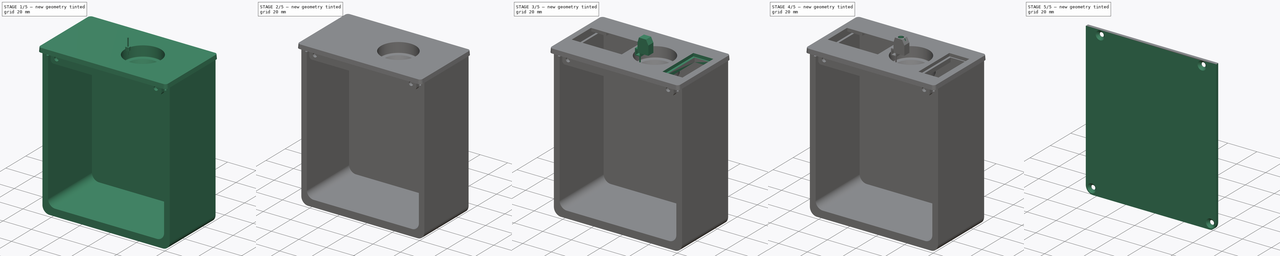
[diagram: build sequence overview — one tinted view per stage of 5, left to right]
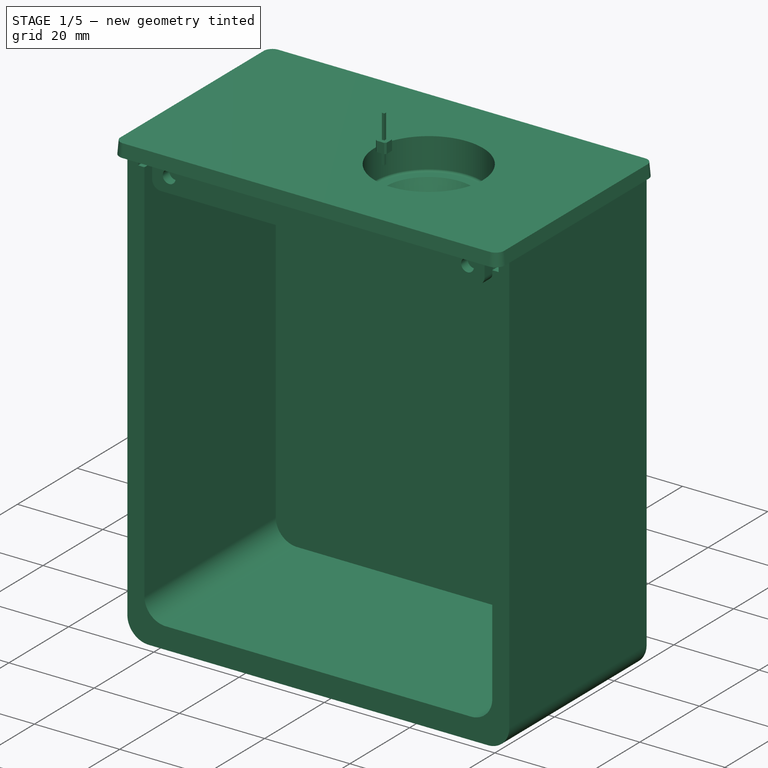
[diagram: stage 1 of 5 — iso view after this stage's code; geometry added in this stage tinted green]
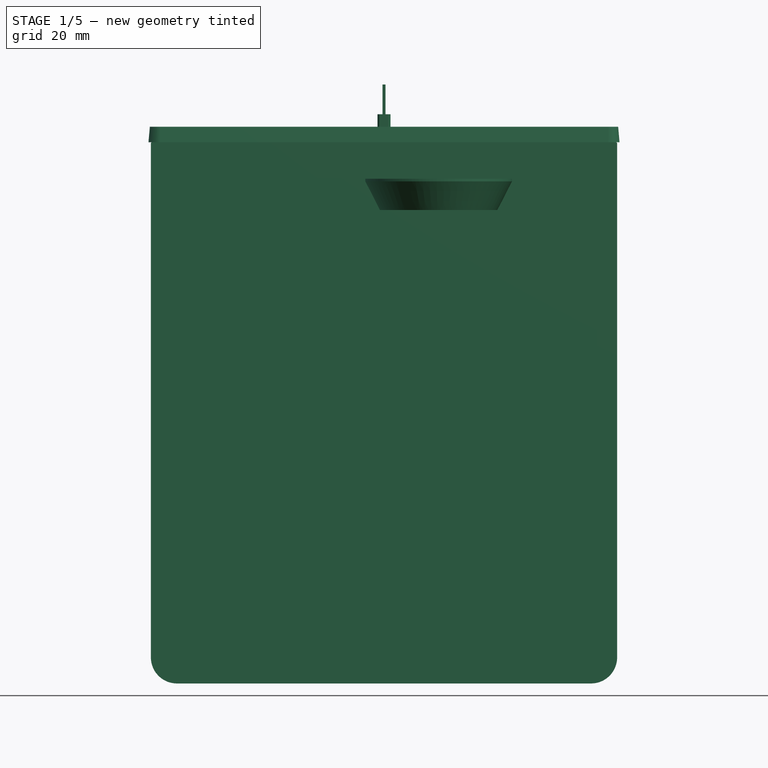
[diagram: stage 1 of 5 — front view after this stage's code; geometry added in this stage tinted green]
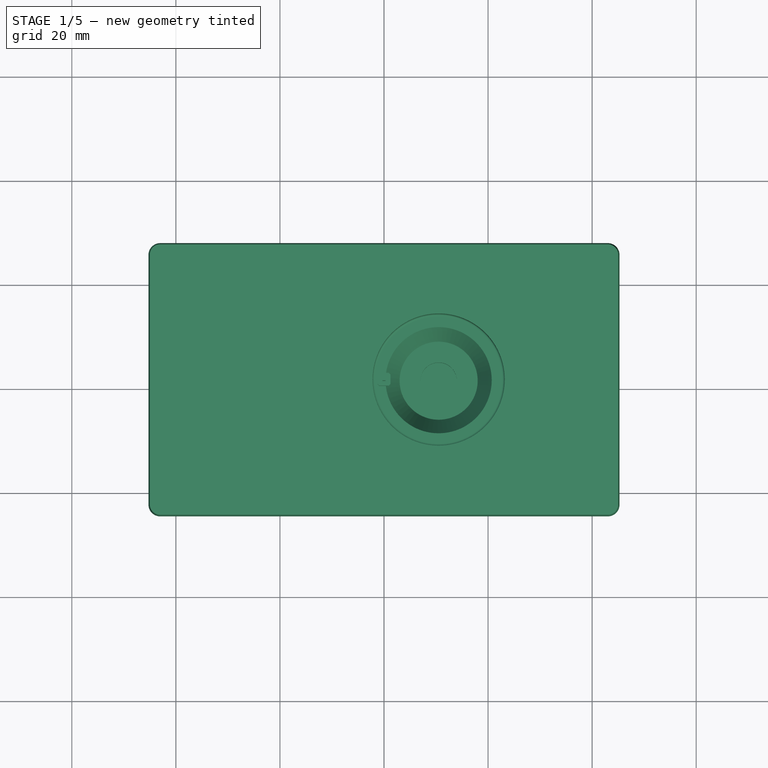
[diagram: stage 1 of 5 — top view after this stage's code; geometry added in this stage tinted green]
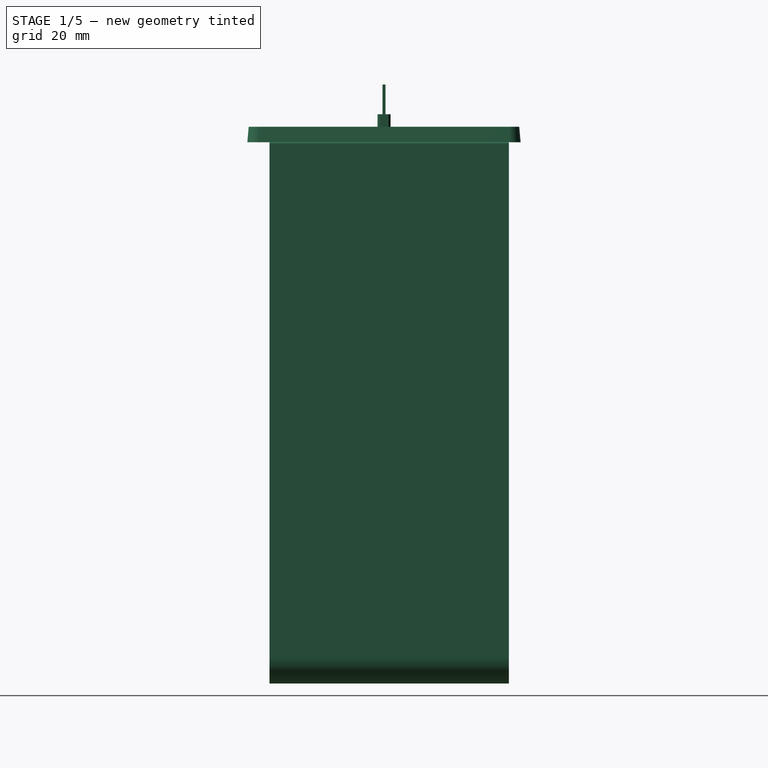
[diagram: stage 1 of 5 — right view after this stage's code; geometry added in this stage tinted green]
FCSTD DOCUMENT  (FreeCAD 0.22R37898 (Git))
Label: eenclosure
License: All rights reserved
LicenseURL: http://en.wikipedia.org/wiki/All_rights_reserved
objects: Part::Feature×147, App::Part×59, Sketcher::SketchObject×59, PartDesign::Pad×29, PartDesign::Body×22, PartDesign::Pocket×18, PartDesign::Hole×9, PartDesign::Fillet×9, Part::FeaturePython×6, PartDesign::SubShapeBinder×5, PartDesign::Chamfer×4, PartDesign::Draft×2, Part::Chamfer×2, PartDesign::Mirrored×1, PartDesign::AdditiveLoft×1, PartDesign::Groove×1, PartDesign::Revolution×1
note: 390 computed .brp shape members not serialized (recipe doc carries the construction recipe); baked Part::Feature solids carry a one-line shape summary decoded from their .brp

FEATURE [Part::Feature] Part__Feature042  label="Pe柱^Potenciometro"
  shape: bbox 17.83 x 11.95 x 8.902 mm, 98 faces (baked)
FEATURE [Part::Feature] Part__Feature043  label="Pe柲^Potenciometro"
  shape: bbox 17 x 20.43 x 1.31 mm, 93 faces (baked)
FEATURE [Part::Feature] Part__Feature044  label="Pe柳^Potenciometro"
  Placement = pos=(0,0,-5) rot=(0,0,1;0rad)
  shape: bbox 6.1 x 6.1 x 23.3 mm, 139 faces (baked)
FEATURE [Part::Feature] Part__Feature045  label="Pe柵^Potenciometro"
  shape: bbox 17.74 x 17.75 x 9.402 mm, 59 faces (baked)
FEATURE [Part::Feature] Part__Feature046  label="Pe柶^Potenciometro"
  shape: bbox 4.113 x 10.36 x 2.55 mm, 62 faces (baked)
FEATURE [Part::Feature] Part__Feature047  label="Pe柶^Potenciometro001"
  Placement = pos=(-5,0,0) rot=(0,0,1;0rad)
  shape: bbox 4.113 x 10.36 x 2.55 mm, 62 faces (baked)
FEATURE [Part::Feature] Part__Feature048  label="Pe柶^Potenciometro002"
  Placement = pos=(-10,0,0) rot=(0,0,1;0rad)
  shape: bbox 4.113 x 10.36 x 2.55 mm, 62 faces (baked)
FEATURE [App::Part] Potenciometro_PCI_10K  label="Potenciometro PCI 10K"
  Group = -> [Part__Feature042,Part__Feature043,Part__Feature044,Part__Feature045,Part__Feature046,Part__Feature047,Part__Feature048]
  Origin = -> Origin001
  Placement = pos=(10.5,-1.23e-14,-18) rot=(0,0,1;4.71239rad)
FEATURE [Sketcher::SketchObject] Sketch026
  AttachmentOffset = pos=(10.5,0,0) rot=(0,0,1;0rad)
  AttachmentSupport = -> [XZ_Plane020]
  FullyConstrained = true
  MapMode = 5
  Placement = pos=(10.5,0,0) rot=(1,0,0;1.5708rad)
  expr: .AttachmentOffset.Base.x = <<Knob 25>>.Placement.Base.x
  expr: .Constraints.height = <<Knob sketch>>.Constraints.height
  expr: .Constraints.radius = <<Knob sketch>>.Constraints.radius + 0.2 mm
  sketch-geometry (7):
    g0: LineSegment StartX=0 StartY=0 StartZ=0 EndX=12.7 EndY=0 EndZ=0
    g1: LineSegment StartX=12.7 StartY=0 StartZ=0 EndX=12.7 EndY=-7 EndZ=0
    g2: ArcOfCircle CenterX=12.2 CenterY=-7 CenterZ=0 NormalX=0 NormalY=0 NormalZ=1 AngleXU=0 Radius=0.5 StartAngle=4.71239 EndAngle=6.28319
    g3: LineSegment StartX=0 StartY=-13 StartZ=0 EndX=0 EndY=0 EndZ=0
    g4: LineSegment StartX=0 StartY=-13 StartZ=0 EndX=7.5 EndY=-13 EndZ=0
    g5: LineSegment StartX=12.2 StartY=-7.5 StartZ=0 EndX=10.2 EndY=-7.5 EndZ=0
    g6: LineSegment StartX=7.5 StartY=-13 StartZ=0 EndX=10.2 EndY=-7.5 EndZ=0
  constraints (20):
    c: PointOnObject(g0,g-2)
    c: Horizontal(g0)
    c: Coincident(g0,g1)
    c: Vertical(g1)
    c: Tangent(g1,g2) = 1.5708
    c: Coincident(g3,g0)
    c: Vertical(g3)
    c: DistanceY(g3,g3) = 13
    c: Coincident(g4,g3)
    c: Tangent(g5,g2) = 1.5708
    c: Horizontal(g5)
    c: DistanceX(g5,g5) = 2
    c: Radius(g2) = 0.5
    c: DistanceX(g0,g0) = 12.7  'radius'
    c: PointOnObject(g0,g-1)
    c: DistanceY(g2,g0) = 7.5  'height'
    c: Horizontal(g4)
    c: Coincident(g6,g4)
    c: Coincident(g6,g5)
    c: DistanceX(g4,g4) = 7.5
FEATURE [Sketcher::SketchObject] Sketch028
  AttachmentSupport = -> [XY_Plane020]
  FullyConstrained = true
  MapMode = 5
  expr: Constraints[1] = <<Potenciometro PCI 10K>>.Placement.Base.x
  sketch-geometry (1):
    g0: Circle CenterX=10.5 CenterY=0 CenterZ=0 NormalX=0 NormalY=0 NormalZ=1 AngleXU=0 Radius=3.5
  constraints (3):
    c: Diameter(g0) = 7
    c: DistanceX(g-1,g0) = 10.5
    c: PointOnObject(g0,g-1)
FEATURE [Sketcher::SketchObject] Sketch030  label="Display sketch"
  AttachmentOffset = pos=(0,0,-0.5) rot=(0,0,1;0rad)
  AttachmentSupport = -> [XY_Plane020]
  FullyConstrained = true
  MapMode = 5
  Placement = pos=(0,0,-0.5) rot=(0,0,1;0rad)
  expr: Constraints[21] = <<Display>>.Placement.Base.y + 12 mm
  expr: Constraints[30] = -<<Display>>.Placement.Base.x
  sketch-geometry (13):
    g0: LineSegment StartX=-30.5 StartY=15.375 StartZ=0 EndX=-16.5 EndY=15.375 EndZ=0
    g1: LineSegment StartX=-16.5 StartY=15.375 StartZ=0 EndX=-16.5 EndY=9.875 EndZ=0
    g2: LineSegment StartX=-16.5 StartY=9.875 StartZ=0 EndX=-6 EndY=9.875 EndZ=0
    g3: LineSegment StartX=-6 StartY=9.875 StartZ=0 EndX=-6 EndY=-14.125 EndZ=0
    g4: LineSegment StartX=-6 StartY=-14.125 StartZ=0 EndX=-15 EndY=-14.125 EndZ=0
    g5: LineSegment StartX=-15 StartY=-14.125 StartZ=0 EndX=-15 EndY=-18.125 EndZ=0
    g6: LineSegment StartX=-15 StartY=-18.125 StartZ=0 EndX=-32 EndY=-18.125 EndZ=0
    g7: LineSegment StartX=-32 StartY=-18.125 StartZ=0 EndX=-32 EndY=-14.125 EndZ=0
    g8: LineSegment StartX=-32 StartY=-14.125 StartZ=0 EndX=-41 EndY=-14.125 EndZ=0
    g9: LineSegment StartX=-41 StartY=-14.125 StartZ=0 EndX=-41 EndY=9.875 EndZ=0
    g10: LineSegment StartX=-30.5 StartY=15.375 StartZ=0 EndX=-30.5 EndY=9.875 EndZ=0
    g11: LineSegment StartX=-30.5 StartY=9.875 StartZ=0 EndX=-41 EndY=9.875 EndZ=0
    g12: LineSegment StartX=-23.5 StartY=-18.125 StartZ=0 EndX=-23.5 EndY=15.375 EndZ=0
  constraints (37):
    c: Coincident(g0,g1)
    c: Coincident(g1,g2)
    c: Coincident(g2,g3)
    c: Coincident(g3,g4)
    c: Horizontal(g4)
    c: Coincident(g4,g5)
    c: Coincident(g5,g6)
    c: Horizontal(g6)
    c: Coincident(g6,g7)
    c: Vertical(g7)
    c: Coincident(g7,g8)
    c: Coincident(g8,g9)
    c: Vertical(g9)
    c: Horizontal(g8)
    c: Horizontal(g2)
    c: Horizontal(g0)
    c: Vertical(g5)
    c: Vertical(g1)
    c: Coincident(g10,g0)
    c: Vertical(g10)
    c: Coincident(g11,g10)
    c: DistanceY(g-1,g2) = 9.875
    c: Horizontal(g11)
    c: Horizontal(g10,g1)
    c: Coincident(g9,g11)
    c: DistanceX(g9,g2) = 35
    c: Vertical(g3)
    c: Horizontal(g7,g4)
    c: Symmetric(g6,g6,g12)
    c: Symmetric(g0,g0,g12)
    c: DistanceX(g12,g-1) = 23.5
    c: DistanceY(g9,g9) = 24
    c: DistanceX(g6,g6) = 17
    c: Symmetric(g2,g9,g12)
    c: DistanceY(g5,g5) = 4
    c: DistanceY(g1,g1) = 5.5
    c: DistanceX(g0,g0) = 14
FEATURE [Sketcher::SketchObject] Sketch024  label="Panel sketch"
  AttachmentSupport = -> [XY_Plane020]
  FullyConstrained = true
  MapMode = 5
  sketch-geometry (12):
    g0: LineSegment StartX=-45 StartY=24 StartZ=0 EndX=-45 EndY=-24 EndZ=0
    g1: LineSegment StartX=-43 StartY=-26 StartZ=0 EndX=43 EndY=-26 EndZ=0
    g2: LineSegment StartX=45 StartY=-24 StartZ=0 EndX=45 EndY=24 EndZ=0
    g3: LineSegment StartX=43 StartY=26 StartZ=0 EndX=-43 EndY=26 EndZ=0
    g4: ArcOfCircle CenterX=-43 CenterY=-24 CenterZ=0 NormalX=0 NormalY=0 NormalZ=1 AngleXU=0 Radius=2 StartAngle=3.14159 EndAngle=4.71239
    g5: GeomPoint X=-45 Y=-26 Z=0
    g6: ArcOfCircle CenterX=43 CenterY=-24 CenterZ=0 NormalX=0 NormalY=0 NormalZ=1 AngleXU=0 Radius=2 StartAngle=4.71239 EndAngle=6.28319
    g7: GeomPoint X=45 Y=-26 Z=0
    g8: ArcOfCircle CenterX=43 CenterY=24 CenterZ=0 NormalX=0 NormalY=0 NormalZ=1 AngleXU=0 Radius=2 StartAngle=-1.24e-14 EndAngle=1.5708
    g9: GeomPoint X=45 Y=26 Z=0
    g10: ArcOfCircle CenterX=-43 CenterY=24 CenterZ=0 NormalX=0 NormalY=0 NormalZ=1 AngleXU=0 Radius=2 StartAngle=1.5708 EndAngle=3.14159
    g11: GeomPoint X=-45 Y=26 Z=0
  constraints (27):
    c: Vertical(g0)
    c: Vertical(g2)
    c: Horizontal(g3)
    c: Horizontal(g1)
    c: Symmetric(g7,g11,g-1)
    c: DistanceY(g5,g11) = 52  'height'
    c: DistanceX(g5,g7) = 90  'width'
    c: PointOnObject(g5,g0)
    c: PointOnObject(g5,g1)
    c: Tangent(g0,g4) = -1.5708
    c: Tangent(g1,g4) = -1.5708
    c: PointOnObject(g7,g1)
    c: PointOnObject(g7,g2)
    c: Tangent(g1,g6) = -1.5708
    c: Tangent(g2,g6) = -1.5708
    c: PointOnObject(g9,g2)
    c: PointOnObject(g9,g3)
    c: Tangent(g2,g8) = -1.5708
    c: Tangent(g3,g8) = -1.5708
    c: PointOnObject(g11,g0)
    c: PointOnObject(g11,g3)
    c: Tangent(g0,g10) = -1.5708
    c: Tangent(g3,g10) = -1.5708
    c: Equal(g8,g10)
    c: Equal(g4,g6)
    c: Radius(g6) = 2
    c: Equal(g6,g8)
FEATURE [PartDesign::Pad] Pad011  label="Panel pad"
  Direction = (0,0,1)
  Length = 3
  Length2 = 10
  Profile = -> Sketch024
  ReferenceAxis = -> Sketch024 [N_Axis]
  Reversed = true
  Suppressed = false
  TaperAngle = 5
  Type = 0
FEATURE [Sketcher::SketchObject] Sketch033  label="Wall holder sketch"
  AttachmentOffset = pos=(0,0,-22) rot=(0,0,1;0rad)
  AttachmentSupport = -> [XZ_Plane020]
  FullyConstrained = true
  MapMode = 5
  Placement = pos=(0,22,-4.9e-15) rot=(1,0,0;1.5708rad)
  expr: .AttachmentOffset.Base.z = -<<Panel sketch>>.Constraints.height / 2 + 4 mm
  expr: Constraints[13] = <<Panel sketch>>.Constraints.width - 12 mm
  sketch-geometry (6):
    g0: LineSegment StartX=-39 StartY=0 StartZ=0 EndX=39 EndY=0 EndZ=0
    g1: LineSegment StartX=39 StartY=0 StartZ=0 EndX=39 EndY=-8 EndZ=0
    g2: ArcOfCircle CenterX=37 CenterY=-8 CenterZ=0 NormalX=0 NormalY=0 NormalZ=1 AngleXU=0 Radius=2 StartAngle=4.71239 EndAngle=6.28319
    g3: LineSegment StartX=37 StartY=-10 StartZ=0 EndX=-37 EndY=-10 EndZ=0
    g4: ArcOfCircle CenterX=-37 CenterY=-8 CenterZ=0 NormalX=0 NormalY=0 NormalZ=1 AngleXU=0 Radius=2 StartAngle=3.14159 EndAngle=4.71239
    g5: LineSegment StartX=-39 StartY=-8 StartZ=0 EndX=-39 EndY=0 EndZ=0
  constraints (15):
    c: PointOnObject(g0,g-1)
    c: Coincident(g0,g1)
    c: Vertical(g1)
    c: Tangent(g1,g2) = 1.5708
    c: Horizontal(g3)
    c: Tangent(g3,g4) = 1.5708
    c: Coincident(g5,g0)
    c: Vertical(g5)
    c: Tangent(g4,g5) = 1.5708
    c: Tangent(g2,g3) = 1.5708
    c: Equal(g2,g4)
    c: Symmetric(g0,g0,g-2)
    c: Radius(g2) = 2
    c: DistanceX(g0,g0) = 78
    c: DistanceY(g3,g0) = 10  'height'
FEATURE [PartDesign::Pad] Pad012  label="Wall holder lip"
  BaseFeature = -> Pad011
  Direction = (0,-1,2e-16)
  Length = 2.8
  Length2 = 10
  Profile = -> Sketch033
  ReferenceAxis = -> Sketch033 [N_Axis]
  Suppressed = false
  Type = 0
FEATURE [Sketcher::SketchObject] Sketch034
  AttachmentOffset = pos=(0,0,-3) rot=(0,0,1;0rad)
  AttachmentSupport = -> [XY_Plane020]
  FullyConstrained = true
  MapMode = 5
  Placement = pos=(0,0,-3) rot=(0,0,1;0rad)
  expr: .AttachmentOffset.Base.z = -<<Panel pad>>.Length
  expr: .Constraints.radius = <<Sketch026>>.Constraints.radius + 1.4 mm
  expr: Constraints[2] = <<Knob 25>>.Placement.Base.x
  sketch-geometry (1):
    g0: Circle CenterX=10.5 CenterY=0 CenterZ=0 NormalX=0 NormalY=0 NormalZ=1 AngleXU=0 Radius=14.1
  constraints (3):
    c: PointOnObject(g0,g-1)
    c: Radius(g0) = 14.1  'radius'
    c: DistanceX(g-1,g0) = 10.5
FEATURE [Sketcher::SketchObject] Sketch035  label="Enclosure sketch"
  AttachmentOffset = pos=(0,-55,-24) rot=(0,0,1;0rad)
  AttachmentSupport = -> [XZ_Plane021]
  FullyConstrained = true
  MapMode = 5
  Placement = pos=(0,24,-55) rot=(1,0,0;1.5708rad)
  expr: .AttachmentOffset.Base.y = -.Constraints.y - <<Panel pad>>.Length
  expr: .AttachmentOffset.Base.z = -<<Wall holder sketch>>.Placement.Base.y - 2 mm
  expr: .Constraints.width = <<Panel sketch>>.Constraints.width - 2 * 0.2 mm
  sketch-geometry (13):
    g0: LineSegment StartX=-44.8 StartY=51.8 StartZ=0 EndX=-44.8 EndY=-47 EndZ=0
    g1: LineSegment StartX=-39.8 StartY=-52 StartZ=0 EndX=39.8 EndY=-52 EndZ=0
    g2: LineSegment StartX=44.8 StartY=-47 StartZ=0 EndX=44.8 EndY=51.8 EndZ=0
    g3: LineSegment StartX=44.6 StartY=52 StartZ=0 EndX=-44.6 EndY=52 EndZ=0
    g4: ArcOfCircle CenterX=44.6 CenterY=51.8 CenterZ=0 NormalX=0 NormalY=0 NormalZ=1 AngleXU=0 Radius=0.2 StartAngle=8.4e-15 EndAngle=1.5708
    g5: GeomPoint X=44.8 Y=52 Z=0
    g6: ArcOfCircle CenterX=-44.6 CenterY=51.8 CenterZ=0 NormalX=0 NormalY=0 NormalZ=1 AngleXU=0 Radius=0.2 StartAngle=1.5708 EndAngle=3.14159
    g7: GeomPoint X=-44.8 Y=52 Z=0
    g8: ArcOfCircle CenterX=-39.8 CenterY=-47 CenterZ=0 NormalX=0 NormalY=0 NormalZ=1 AngleXU=0 Radius=5 StartAngle=3.14159 EndAngle=4.71239
    g9: GeomPoint X=-44.8 Y=-52 Z=0
    g10: ArcOfCircle CenterX=39.8 CenterY=-47 CenterZ=0 NormalX=0 NormalY=0 NormalZ=1 AngleXU=0 Radius=5 StartAngle=4.71239 EndAngle=6.28319
    g11: GeomPoint X=44.8 Y=-52 Z=0
    g12: LineSegment StartX=-44.8 StartY=52 StartZ=0 EndX=44.8 EndY=52 EndZ=0
  constraints (31):
    c: Vertical(g0)
    c: Vertical(g2)
    c: Horizontal(g1)
    c: Horizontal(g3)
    c: Symmetric(g11,g7,g-1)
    c: DistanceX(g9,g11) = 89.6  'width'
    c: PointOnObject(g5,g2)
    c: PointOnObject(g5,g3)
    c: Tangent(g2,g4) = -1.5708
    c: Tangent(g3,g4) = -1.5708
    c: PointOnObject(g7,g0)
    c: PointOnObject(g7,g3)
    c: Tangent(g0,g6) = -1.5708
    c: Tangent(g3,g6) = -1.5708
    c: PointOnObject(g9,g0)
    c: PointOnObject(g9,g1)
    c: Tangent(g0,g8) = -1.5708
    c: Tangent(g1,g8) = -1.5708
    c: PointOnObject(g11,g1)
    c: PointOnObject(g11,g2)
    c: Tangent(g1,g10) = -1.5708
    c: Tangent(g2,g10) = -1.5708
    c: Equal(g10,g8)
    c: Equal(g4,g6)
    c: Radius(g4) = 0.2
    c: Radius(g10) = 5
    c: Symmetric(g12,g12,g-2)
    c: DistanceY(g-1,g12) = 52  'y'
    c: Vertical(g12,g0)
    c: DistanceY(g9,g12) = 104  'height'
    c: PointOnObject(g3,g12)
FEATURE [PartDesign::Pad] Pad014  label="Enclosure pad"
  Direction = (0,-1,2e-16)
  Length = 46
  Length2 = 10
  Placement = pos=(0,0,0) rot=(1,0,0;1.5708rad)
  Profile = -> Sketch035
  ReferenceAxis = -> Sketch035 [N_Axis]
  Suppressed = false
  Type = 0
  expr: Length = <<Panel sketch>>.Constraints.height - 3 * 2 mm
FEATURE [Sketcher::SketchObject] Sketch036
  AttachmentOffset = pos=(0,0,-22) rot=(0,0,1;0rad)
  AttachmentSupport = -> [XZ_Plane020]
  FullyConstrained = true
  MapMode = 5
  Placement = pos=(0,22,-4.9e-15) rot=(1,0,0;1.5708rad)
  expr: .AttachmentOffset.Base.z = -<<Wall holder sketch>>.Placement.Base.y
  expr: .Constraints.hole_distance = <<Panel sketch>>.Constraints.width - 20 mm
  expr: .Constraints.hole_y = <<Panel pad>>.Length + (<<Wall holder sketch>>.Constraints.height - <<Panel pad>>.Length) / 2
  sketch-geometry (2):
    g0: Circle CenterX=-35 CenterY=-6.5 CenterZ=0 NormalX=0 NormalY=0 NormalZ=1 AngleXU=0 Radius=1.5
    g1: Circle CenterX=35 CenterY=-6.5 CenterZ=0 NormalX=0 NormalY=0 NormalZ=1 AngleXU=0 Radius=1.5
  constraints (5):
    c: Equal(g1,g0)
    c: Diameter(g0) = 3
    c: Symmetric(g0,g1,g-2)
    c: DistanceX(g0,g1) = 70  'hole_distance'
    c: DistanceY(g1,g-1) = 6.5  'hole_y'
FEATURE [PartDesign::Hole] Hole001  label="Wall mounting holes"
  BaseFeature = -> Pad012
  CustomThreadClearance = 0
  Depth = 2.2
  DepthType = 0
  Diameter = 3
  DrillForDepth = false
  DrillPoint = 0
  DrillPointAngle = 118
  HoleCutCountersinkAngle = 90
  HoleCutCustomValues = false
  HoleCutDepth = 0
  HoleCutDiameter = 6.1
  HoleCutType = 0
  ModelThread = false
  Profile = -> Sketch036
  Reversed = true
  Suppressed = false
  Tapered = false
  TaperedAngle = 90
  ThreadClass = 0
  ThreadDepth = 2.2
  ThreadDepthType = 0
  ThreadDirection = 0
  ThreadFit = 0
  ThreadSize = 0
  ThreadType = 0
  Threaded = false
  UseCustomThreadClearance = false
  expr: Depth = <<Wall holder lip>>.Length - 0.6 mm
FEATURE [PartDesign::Body] Body006  label="Cap001"
  AllowCompound = false
  Group = -> [Sketch017,Pad008,Sketch018,Pocket007,Fillet008]
  Origin = -> Origin010
  Placement = pos=(3.47752,0,6.9297) rot=(0,0,1;0rad)
  Tip = -> Fillet008
FEATURE [App::Part] Part004  label="Teminal Block 1 pin001"
  Group = -> [Body004,Body005,Body006,Part005]
  Origin = -> Origin007
  Placement = pos=(1e-15,5,0) rot=(0,0,1;3.14159rad)
FEATURE [App::Part] Part003  label="Terminal block 2 pin"
  Group = -> [Part001,Part004]
  Origin = -> Origin006
  Placement = pos=(-23.5,16,0) rot=(0,0,1;0rad)
FEATURE [Part::Feature] Part__Feature049  label="Body"
  shape: bbox 12.7 x 19.5 x 21 mm, 80 faces (baked)
FEATURE [Part::Feature] Part__Feature050  label="Screw"
  Placement = pos=(38.4582,6.44094,17) rot=(0,0,1;0rad)
  shape: bbox 4.5 x 4.5 x 1 mm, 7 faces (baked)
FEATURE [Part::Feature] Part__Feature051  label="Screw001"
  Placement = pos=(38.4582,15.9409,17) rot=(0,0,1;0rad)
  shape: bbox 4.5 x 4.5 x 1 mm, 7 faces (baked)
FEATURE [Part::Feature] Part__Feature052  label="Block"
  Placement = pos=(-6,-20.4,6) rot=(0,0,1;0rad)
  shape: bbox 4 x 4 x 2 mm, 6 faces (baked)
FEATURE [Part::Feature] Part__Feature053  label="Block001"
  Placement = pos=(-5.8,-30.4,6) rot=(0,0,1;0rad)
  shape: bbox 4 x 4 x 2 mm, 6 faces (baked)
FEATURE [Part::Feature] Part__Feature054  label="T003"
  Placement = pos=(7.1,-5.35,-4.5) rot=(0,0,1;0rad)
  shape: bbox 0.8 x 1 x 5.5 mm, 10 faces (baked)
FEATURE [Part::Feature] Part__Feature055  label="T004"
  Placement = pos=(7.1,-14.85,-4.5) rot=(0,0,1;0rad)
  shape: bbox 0.8 x 1 x 5.5 mm, 10 faces (baked)
FEATURE [App::Part] BR1102V
  Group = -> [Part__Feature049,Part__Feature050,Part__Feature051,Part__Feature052,Part__Feature053,Part__Feature054,Part__Feature055]
  Origin = -> Origin012
  Placement = pos=(0,0,0) rot=(0.57735,-0.57735,-0.57735;4.18879rad)
FEATURE [App::Part] BR11
  Group = -> [BR1102V]
  Origin = -> Origin013
  Placement = pos=(25.5,29,6.4e-15) rot=(0,-0.707107,-0.707107;3.14159rad)
FEATURE [Part::Feature] Part__Feature056  label="Body009"
  shape: bbox 12.7 x 29.1 x 21 mm, 104 faces (baked)
FEATURE [Part::Feature] Part__Feature057  label="Screw002"
  Placement = pos=(38.2582,6.39094,17) rot=(0,0,1;0rad)
  shape: bbox 4.5 x 4.5 x 1 mm, 7 faces (baked)
FEATURE [Part::Feature] Part__Feature058  label="Screw003"
  Placement = pos=(38.2582,15.8909,17) rot=(0,0,1;0rad)
  shape: bbox 4.5 x 4.5 x 1 mm, 7 faces (baked)
FEATURE [Part::Feature] Part__Feature059  label="Block002"
  Placement = pos=(-6,-20.4,6) rot=(0,0,1;0rad)
  shape: bbox 4 x 4 x 2 mm, 6 faces (baked)
FEATURE [Part::Feature] Part__Feature060  label="Block003"
  Placement = pos=(-5.8,-30.4,6) rot=(0,0,1;0rad)
  shape: bbox 4 x 4 x 2 mm, 6 faces (baked)
FEATURE [Part::Feature] Part__Feature061  label="T005"
  Placement = pos=(7.1,-5.35,-4.5) rot=(0,0,1;0rad)
  shape: bbox 0.8 x 1 x 5.5 mm, 10 faces (baked)
FEATURE [Part::Feature] Part__Feature062  label="T006"
  Placement = pos=(7.1,-14.85,-4.5) rot=(0,0,1;0rad)
  shape: bbox 0.8 x 1 x 5.5 mm, 10 faces (baked)
FEATURE [Part::Feature] Part__Feature063  label="Screw004"
  Placement = pos=(38.2582,-3.10906,17) rot=(0,0,1;0rad)
  shape: bbox 4.5 x 4.5 x 1 mm, 7 faces (baked)
FEATURE [Part::Feature] Part__Feature064  label="Body017"
  Placement = pos=(0,-9.5,0) rot=(0,0,1;0rad)
  shape: bbox 4 x 4 x 2 mm, 6 faces (baked)
FEATURE [Part::Feature] Part__Feature065  label="Body018"
  Placement = pos=(0,-9.5,0) rot=(0,0,1;0rad)
  shape: bbox 0.8 x 1 x 5.5 mm, 10 faces (baked)
FEATURE [App::Part] BR1103V
  Group = -> [Part__Feature056,Part__Feature057,Part__Feature058,Part__Feature059,Part__Feature060,Part__Feature061,Part__Feature062,Part__Feature063,Part__Feature064,Part__Feature065]
  Origin = -> Origin014
  Placement = pos=(19,0,0) rot=(0.57735,-0.57735,-0.57735;4.18879rad)
FEATURE [App::Part] BR012
  Group = -> [BR1103V]
  Origin = -> Origin015
  Placement = pos=(25.5,29,-6.4e-15) rot=(0,0.707107,0.707107;3.14159rad)
FEATURE [Part::Feature] Part__Feature066  label="220uF 50V001"
  Placement = pos=(-23,-4,1.5) rot=(0,0,1;4.71239rad)
  shape: bbox 15.87 x 10.73 x 10.51 mm, 145 faces (baked)
FEATURE [Part::Feature] Part__Feature067  label="220uF 50V002"
  Placement = pos=(-11.5,-4,1.5) rot=(0,0,1;4.71239rad)
  shape: bbox 15.87 x 10.73 x 10.51 mm, 145 faces (baked)
FEATURE [Part::Feature] Part__Feature068  label="220uF 50V003"
  Placement = pos=(0,-4,1.5) rot=(0,0,1;4.71239rad)
  shape: bbox 15.87 x 10.73 x 10.51 mm, 145 faces (baked)
FEATURE [Part::Feature] Part__Feature069  label="220uF 50V004"
  Placement = pos=(11.5,-4,1.5) rot=(0,0,1;4.71239rad)
  shape: bbox 15.87 x 10.73 x 10.51 mm, 145 faces (baked)
FEATURE [Part::Feature] Part__Feature070  label="220uF 50V005"
  Placement = pos=(23,-4,1.5) rot=(0,0,1;4.71239rad)
  shape: bbox 15.87 x 10.73 x 10.51 mm, 145 faces (baked)
FEATURE [Part::Feature] Part__Feature071  label="SM05B-GHS-TB"
  Placement = pos=(-16,-24.5,3.5) rot=(0,0,-1;3.14159rad)
  shape: bbox 9.5 x 4.3 x 4.85 mm, 244 faces, 8 solids (baked)
FEATURE [Part::Feature] Part__Feature072  label="SM05B-GHS-TB001"
  Placement = pos=(-4.5,-24.5,3.5) rot=(0,0,-1;3.14159rad)
  shape: bbox 9.5 x 4.3 x 4.85 mm, 244 faces, 8 solids (baked)
FEATURE [Part::Feature] Part__Feature073  label="SM06B-GHS-TB"
  Placement = pos=(8,-24.5,3.5) rot=(0,0,1;3.14159rad)
  shape: bbox 10.75 x 4.3 x 4.85 mm, 276 faces, 9 solids (baked)
FEATURE [Part::Feature] Part__Feature074  label="SM06B-GHS-TB001"
  Placement = pos=(20.5,-24.5,3.5) rot=(0,0,1;3.14159rad)
  shape: bbox 10.75 x 4.3 x 4.85 mm, 276 faces, 9 solids (baked)
FEATURE [Part::Feature] Part__Feature075  label="SM02B-GHS-TB"
  Placement = pos=(-27,-19,3.5) rot=(0,0,1;1.5708rad)
  shape: bbox 4.3 x 5.75 x 4.85 mm, 148 faces, 5 solids (baked)
FEATURE [App::Part] Part006  label="XDrive Mini"
  Group = -> [Part__Feature075,Part__Feature073,Part__Feature071,Part__Feature066,BR11,Part__Feature072,Part__Feature067,Part__Feature068,BR012,Part__Feature074,Part__Feature069,Part003,Body010,Part__Feature070]
  Origin = -> Origin016
  Placement = pos=(-4.5,19,-55.3) rot=(0,-0.707107,0.707107;3.14159rad)
FEATURE [Sketcher::SketchObject] Sketch041
  AttachmentOffset = pos=(0,-43,-24) rot=(0,0,1;0rad)
  AttachmentSupport = -> [XZ_Plane021]
  FullyConstrained = true
  MapMode = 5
  Placement = pos=(0,24,-43) rot=(1,0,0;1.5708rad)
  expr: .AttachmentOffset.Base.y = -.Constraints.y - <<Panel pad>>.Length
  expr: .AttachmentOffset.Base.z = -<<Panel sketch>>.Constraints.height / 2 + 2 mm
  expr: Constraints[3] = <<Sketch036>>.Constraints.hole_distance
  expr: Constraints[6] = <<Sketch036>>.Constraints.hole_y - <<Panel pad>>.Length
  sketch-geometry (3):
    g0: Circle CenterX=-35 CenterY=36.5 CenterZ=0 NormalX=0 NormalY=0 NormalZ=1 AngleXU=0 Radius=2
    g1: Circle CenterX=35 CenterY=36.5 CenterZ=0 NormalX=0 NormalY=0 NormalZ=1 AngleXU=0 Radius=2
    g2: LineSegment StartX=-35 StartY=40 StartZ=0 EndX=35 EndY=40 EndZ=0
  constraints (8):
    c: Symmetric(g1,g0,g-2)
    c: Equal(g1,g0)
    c: Diameter(g0) = 4
    c: DistanceX(g0,g1) = 70
    c: Symmetric(g2,g2,g-2)
    c: DistanceY(g-1,g2) = 40  'y'
    c: DistanceY(g0,g2) = 3.5
    c: Vertical(g0,g2)
FEATURE [Sketcher::SketchObject] Sketch043  label="Inner dimensions"
  AttachmentOffset = pos=(0,0,-22) rot=(0,0,1;0rad)
  AttachmentSupport = -> [XZ_Plane021]
  FullyConstrained = true
  MapMode = 5
  Placement = pos=(0,22,-4.9e-15) rot=(1,0,0;1.5708rad)
  expr: .AttachmentOffset.Base.z = -<<Enclosure sketch>>.Placement.Base.y + 2 mm
  expr: .Constraints.height = <<Enclosure sketch>>.Constraints.height - 2 mm
  expr: .Constraints.width = <<Enclosure sketch>>.Constraints.width - 2 * 4 mm
  sketch-geometry (8):
    g0: LineSegment StartX=-35.8 StartY=-102 StartZ=0 EndX=35.8 EndY=-102 EndZ=0
    g1: LineSegment StartX=40.8 StartY=0 StartZ=0 EndX=-40.8 EndY=0 EndZ=0
    g2: ArcOfCircle CenterX=-35.8 CenterY=-97 CenterZ=0 NormalX=0 NormalY=0 NormalZ=1 AngleXU=0 Radius=5 StartAngle=3.14159 EndAngle=4.71239
    g3: GeomPoint X=-40.8 Y=-102 Z=0
    g4: ArcOfCircle CenterX=35.8 CenterY=-97 CenterZ=0 NormalX=0 NormalY=0 NormalZ=1 AngleXU=0 Radius=5 StartAngle=4.71239 EndAngle=6.28319
    g5: GeomPoint X=40.8 Y=-102 Z=0
    g6: LineSegment StartX=40.8 StartY=0 StartZ=0 EndX=40.8 EndY=-97 EndZ=0
    g7: LineSegment StartX=-40.8 StartY=-97 StartZ=0 EndX=-40.8 EndY=0 EndZ=0
  constraints (19):
    c: PointOnObject(g1,g-1)
    c: Symmetric(g3,g5,g-2)
    c: DistanceX(g3,g5) = 81.6  'width'
    c: DistanceY(g3,g1) = 102  'height'
    c: PointOnObject(g3,g0)
    c: Tangent(g0,g2) = -1.5708
    c: PointOnObject(g5,g0)
    c: Tangent(g0,g4) = -1.5708
    c: Equal(g4,g2)
    c: Radius(g4) = 5
    c: Vertical(g6)
    c: Vertical(g7)
    c: Vertical(g5,g4)
    c: Vertical(g3,g2)
    c: Tangent(g6,g4) = 1.5708
    c: Tangent(g7,g2) = 1.5708
    c: Coincident(g6,g1)
    c: PointOnObject(g1,g-1)
    c: Coincident(g1,g7)
FEATURE [PartDesign::SubShapeBinder] Binder  label="ODrive binder"
  BindCopyOnChange = 0
  BindMode = 0
  ClaimChildren = false
  Context = -> Part007 [Body009.Binder.]
  Fuse = false
  MakeFace = true
  OffsetFill = false
  OffsetIntersection = false
  OffsetJoinType = 0
  OffsetOpenResult = false
  PartialLoad = false
  Relative = true
  Support = -> [Part006[Body010.Sketch001.]]
  _Version = 2
FEATURE [Sketcher::SketchObject] Sketch045
  AttachmentOffset = pos=(0,0,-19) rot=(0,0,1;0rad)
  AttachmentSupport = -> [XZ_Plane021]
  ExternalGeometry = -> [Binder]
  FullyConstrained = true
  MapMode = 5
  Placement = pos=(0,19,-4.2e-15) rot=(1,0,0;1.5708rad)
  expr: .AttachmentOffset.Base.z = -<<Enclosure sketch>>.Placement.Base.y + 5 mm
  sketch-geometry (6):
    g0: Circle CenterX=-32.8 CenterY=-29.55 CenterZ=0 NormalX=0 NormalY=0 NormalZ=1 AngleXU=0 Radius=4
    g1: Circle CenterX=23.8 CenterY=-29.55 CenterZ=0 NormalX=0 NormalY=0 NormalZ=1 AngleXU=0 Radius=4
    g2: Circle CenterX=23.8 CenterY=-81.05 CenterZ=0 NormalX=0 NormalY=0 NormalZ=1 AngleXU=0 Radius=4
    g3: Circle CenterX=-32.8 CenterY=-81.05 CenterZ=0 NormalX=0 NormalY=0 NormalZ=1 AngleXU=0 Radius=4
    g4: LineSegment StartX=23.8 StartY=-81.05 StartZ=0 EndX=-32.8 EndY=-81.05 EndZ=0
    g5: LineSegment StartX=-32.8 StartY=-29.55 StartZ=0 EndX=23.8 EndY=-29.55 EndZ=0
  constraints (13):
    c: Equal(g0,g1)
    c: Diameter(g0) = 8
    c: Coincident(g1,g-3)
    c: Coincident(g2,g-4)
    c: Coincident(g4,g2)
    c: Coincident(g4,g3)
    c: Horizontal(g5)
    c: Coincident(g5,g1)
    c: Coincident(g5,g0)
    c: Coincident(g3,g-5)
    c: Equal(g3,g2)
    c: Equal(g2,g1)
    c: Vertical(g0,g3)
FEATURE [PartDesign::Pocket] Pocket017  label="Inner pocket"
  BaseFeature = -> Pad014
  Direction = (0,1,-2e-16)
  Length = 5
  Length2 = 5
  Placement = pos=(0,0,0) rot=(1,0,0;1.5708rad)
  Profile = -> Sketch043
  ReferenceAxis = -> Sketch043 [N_Axis]
  Reversed = true
  Suppressed = false
  Type = 1
FEATURE [PartDesign::Mirrored] Mirrored
  BaseFeature = -> Hole001
  MirrorPlane = -> XZ_Plane020
  Originals = -> [Pad012,Hole001]
  Suppressed = false
  TransformMode = 0
FEATURE [PartDesign::AdditiveLoft] AdditiveLoft  label="Potentiometer holder pad"
  BaseFeature = -> Mirrored
  Closed = false
  Profile = -> Sketch034
  Refine = true
  Ruled = true
  Sections = -> [Sketch047,Sketch048]
  Suppressed = false
FEATURE [PartDesign::Groove] Groove  label="Knob groove"
  Angle = 360
  Angle2 = 60
  Axis = (0,2e-16,1)
  Base = (10.5,0,0)
  BaseFeature = -> AdditiveLoft
  Profile = -> Sketch026
  ReferenceAxis = -> Sketch026 [V_Axis]
  Suppressed = false
  Type = 0
FEATURE [PartDesign::Pocket] Pocket010  label="Potentiometer hole"
  BaseFeature = -> Groove
  Direction = (0,0,-1)
  Length = 5
  Length2 = 5
  Profile = -> Sketch028
  ReferenceAxis = -> Sketch028 [N_Axis]
  Suppressed = false
  Type = 1
FEATURE [PartDesign::Body] Body011  label="Lid"
  AllowCompound = false
  Group = -> [Binder003,Pad021,Binder004,Hole007,Binder005,Hole009]
  Origin = -> Origin027
  Tip = -> Hole009
FEATURE [Sketcher::SketchObject] Sketch056  label="Knob sketch"
  AttachmentSupport = -> [XZ_Plane]
  FullyConstrained = true
  MapMode = 5
  Placement = pos=(0,0,0) rot=(1,0,0;1.5708rad)
  sketch-geometry (13):
    g0: LineSegment StartX=12.5 StartY=7 StartZ=0 EndX=12.5 EndY=0.5 EndZ=0
    g1: LineSegment StartX=12 StartY=0 StartZ=0 EndX=0 EndY=0 EndZ=0
    g2: LineSegment StartX=3.5 StartY=7.5 StartZ=0 EndX=0 EndY=7.5 EndZ=0
    g3: ArcOfCircle CenterX=12 CenterY=0.5 CenterZ=0 NormalX=0 NormalY=0 NormalZ=1 AngleXU=0 Radius=0.5 StartAngle=4.71239 EndAngle=6.28319
    g4: LineSegment StartX=0 StartY=7.5 StartZ=0 EndX=0 EndY=0 EndZ=0
    g5: ArcOfCircle CenterX=3.5 CenterY=6.5 CenterZ=0 NormalX=0 NormalY=0 NormalZ=1 AngleXU=0 Radius=1 StartAngle=0.0523599 EndAngle=1.5708
    g6: LineSegment StartX=4.49863 StartY=6.55234 StartZ=0 EndX=4.71375 EndY=2.44766 EndZ=0
    g7: ArcOfCircle CenterX=5.71238 CenterY=2.5 CenterZ=0 NormalX=0 NormalY=0 NormalZ=1 AngleXU=0 Radius=1 StartAngle=3.19395 EndAngle=4.71239
    g8: LineSegment StartX=5.71238 StartY=1.5 StartZ=0 EndX=9.00175 EndY=1.5 EndZ=0
    g9: ArcOfCircle CenterX=9.00175 CenterY=2.5 CenterZ=0 NormalX=0 NormalY=0 NormalZ=1 AngleXU=0 Radius=1 StartAngle=4.71239 EndAngle=6.22399
    g10: ArcOfCircle CenterX=19.9825 CenterY=1.84928 CenterZ=0 NormalX=0 NormalY=0 NormalZ=1 AngleXU=0 Radius=10 StartAngle=2.56856 EndAngle=3.0824
    g11: ArcOfCircle CenterX=12 CenterY=7 CenterZ=0 NormalX=0 NormalY=0 NormalZ=1 AngleXU=0 Radius=0.5 StartAngle=-9e-16 EndAngle=2.56856
    g12: LineSegment StartX=3.5 StartY=7.5 StartZ=0 EndX=12 EndY=7.5 EndZ=0
  constraints (33):
    c: Vertical(g0)
    c: Horizontal(g1)
    c: Horizontal(g2)
    c: PointOnObject(g2,g-2)
    c: DistanceX(g-1,g0) = 12.5  'radius'
    c: Coincident(g1,g-1)
    c: Radius(g3) = 0.5
    c: Tangent(g3,g0) = 1.5708
    c: Coincident(g4,g2)
    c: Coincident(g4,g1)
    c: DistanceY(g3,g8) = 1.5  'plate_height'
    c: DistanceY(g4,g4) = 7.5  'height'
    c: Horizontal(g8)
    c: Tangent(g8,g7) = -1.5708
    c: Tangent(g7,g6) = -1.5708
    c: Tangent(g6,g5) = 1.5708
    c: Tangent(g5,g2) = -1.5708
    c: Radius(g5) = 1
    c: DistanceX(g2,g2) = 3.5
    c: Radius(g7) = 1
    c: Angle(g2,g6) = 1.62316
    c: Tangent(g1,g3) = 1.5708
    c: Radius(g9) = 1
    c: Tangent(g10,g9) = 1.5708
    c: Radius(g11) = 0.5
    c: Tangent(g11,g10) = -1.5708
    c: Tangent(g0,g11) = 1.5708
    c: Tangent(g9,g8) = -1.5708
    c: Radius(g10) = 10
    c: DistanceX(g9,g0) = 2.5
    c: Coincident(g12,g2)
    c: Tangent(g12,g11) = 1.5708
    c: Horizontal(g12)
FEATURE [PartDesign::Revolution] Revolution001
  Angle = 360
  Angle2 = 60
  Axis = (0,2e-16,1)
  Base = (0,0,0)
  Placement = pos=(0,0,0) rot=(1,0,0;1.5708rad)
  Profile = -> Sketch056
  ReferenceAxis = -> Sketch056 [V_Axis]
  Reversed = true
  Suppressed = false
  Type = 0
FEATURE [Sketcher::SketchObject] Sketch057
  AttachmentSupport = -> [XY_Plane]
  FullyConstrained = true
  MapMode = 5
  sketch-geometry (1):
    g0: Circle CenterX=0 CenterY=0 CenterZ=0 NormalX=0 NormalY=0 NormalZ=1 AngleXU=0 Radius=3
  constraints (2):
    c: Coincident(g0,g-1)
    c: Diameter(g0) = 6
FEATURE [PartDesign::Hole] Hole010
  BaseFeature = -> Revolution001
  CustomThreadClearance = 0
  Depth = 6.5
  DepthType = 0
  Diameter = 6
  DrillForDepth = false
  DrillPoint = 0
  DrillPointAngle = 118
  HoleCutCountersinkAngle = 90
  HoleCutCustomValues = false
  HoleCutDepth = 0
  HoleCutDiameter = 6.5
  HoleCutType = 2
  ModelThread = false
  Placement = pos=(0,0,0) rot=(1,0,0;1.5708rad)
  Profile = -> Sketch057
  Reversed = true
  Suppressed = false
  Tapered = false
  TaperedAngle = 90
  ThreadClass = 0
  ThreadDepth = 6.5
  ThreadDepthType = 0
  ThreadDirection = 0
  ThreadFit = 0
  ThreadSize = 0
  ThreadType = 0
  Threaded = false
  UseCustomThreadClearance = false
  expr: Depth = <<Knob sketch>>.Constraints.height - 1 mm
FEATURE [PartDesign::Body] Body007  label="Pin base002"
  AllowCompound = false
  Group = -> [Sketch068,Pad010]
  Origin = -> Origin080
  Tip = -> Pad010
FEATURE [Sketcher::SketchObject] Sketch069
  AttachmentSupport = -> [XZ_Plane081]
  FullyConstrained = true
  MapMode = 5
  Placement = pos=(0,0,0) rot=(1,0,0;1.5708rad)
  sketch-geometry (4):
    g0: LineSegment StartX=-0.3 StartY=8.1 StartZ=0 EndX=-0.3 EndY=-2.9 EndZ=0
    g1: LineSegment StartX=-0.3 StartY=-2.9 StartZ=0 EndX=0.3 EndY=-2.9 EndZ=0
    g2: LineSegment StartX=0.3 StartY=-2.9 StartZ=0 EndX=0.3 EndY=8.1 EndZ=0
    g3: LineSegment StartX=0.3 StartY=8.1 StartZ=0 EndX=-0.3 EndY=8.1 EndZ=0
  constraints (11):
    c: Vertical(g0)
    c: Coincident(g0,g1)
    c: Vertical(g2)
    c: Coincident(g3,g0)
    c: Horizontal(g3)
    c: DistanceX(g0,g2) = 0.6  'thickness'
    c: DistanceY(g0,g0) = 11
    c: DistanceY(g-1,g0) = 8.1
    c: Coincident(g1,g2)
    c: Coincident(g2,g3)
    c: Symmetric(g1,g0,g-2)
FEATURE [PartDesign::Pad] Pad031  label="Pad011"
  Direction = (0,-1,2e-16)
  Length = 0.6
  Length2 = 10
  Midplane = true
  Placement = pos=(0,0,0) rot=(1,0,0;1.5708rad)
  Profile = -> Sketch069
  ReferenceAxis = -> Sketch069 [N_Axis]
  Suppressed = false
  Type = 0
  expr: Length = <<Sketch069>>.Constraints.thickness
FEATURE [PartDesign::Body] Body019  label="Pin002"
  AllowCompound = false
  Group = -> [Sketch069,Pad031,Chamfer004]
  Origin = -> Origin081
  Tip = -> Chamfer004
FEATURE [App::Part] Part010  label="Header pin002"
  Group = -> [Body019,Body007]
  Origin = -> Origin082
  Placement = pos=(-1.25,15.5,-2e-16) rot=(0,1,0;3.14159rad)
FEATURE [Sketcher::SketchObject] Sketch070
  AttachmentSupport = -> [XY_Plane083]
  FullyConstrained = true
  MapMode = 5
  sketch-geometry (16):
    g0: LineSegment StartX=-1.25 StartY=0.896447 StartZ=0 EndX=-1.25 EndY=-0.896447 EndZ=0
    g1: LineSegment StartX=-0.896447 StartY=-1.25 StartZ=0 EndX=0.896447 EndY=-1.25 EndZ=0
    g2: LineSegment StartX=1.25 StartY=-0.896447 StartZ=0 EndX=1.25 EndY=0.896447 EndZ=0
    g3: LineSegment StartX=0.896447 StartY=1.25 StartZ=0 EndX=-0.896447 EndY=1.25 EndZ=0
    g4: ArcOfCircle CenterX=0.896447 CenterY=0.896447 CenterZ=0 NormalX=0 NormalY=0 NormalZ=1 AngleXU=0 Radius=0.353553 StartAngle=5.86e-14 EndAngle=1.5708
    g5: GeomPoint X=1.25 Y=1.25 Z=0
    g6: LineSegment StartX=1.25 StartY=0.896447 StartZ=0 EndX=0.896447 EndY=1.25 EndZ=0
    g7: ArcOfCircle CenterX=-0.896447 CenterY=0.896447 CenterZ=0 NormalX=0 NormalY=0 NormalZ=1 AngleXU=0 Radius=0.353553 StartAngle=1.5708 EndAngle=3.14159
    g8: GeomPoint X=-1.25 Y=1.25 Z=0
    g9: LineSegment StartX=-0.896447 StartY=1.25 StartZ=0 EndX=-1.25 EndY=0.896447 EndZ=0
    g10: ArcOfCircle CenterX=-0.896447 CenterY=-0.896447 CenterZ=0 NormalX=0 NormalY=0 NormalZ=1 AngleXU=0 Radius=0.353553 StartAngle=3.14159 EndAngle=4.71239
    g11: GeomPoint X=-1.25 Y=-1.25 Z=0
    g12: LineSegment StartX=-1.25 StartY=-0.896447 StartZ=0 EndX=-0.896447 EndY=-1.25 EndZ=0
    g13: ArcOfCircle CenterX=0.896447 CenterY=-0.896447 CenterZ=0 NormalX=0 NormalY=0 NormalZ=1 AngleXU=0 Radius=0.353553 StartAngle=4.71239 EndAngle=6.28319
    g14: GeomPoint X=1.25 Y=-1.25 Z=0
    g15: LineSegment StartX=0.896447 StartY=-1.25 StartZ=0 EndX=1.25 EndY=-0.896447 EndZ=0
  constraints (35):
    c: Vertical(g0)
    c: Vertical(g2)
    c: Horizontal(g1)
    c: Horizontal(g3)
    c: Symmetric(g14,g8,g-1)
    c: PointOnObject(g5,g2)
    c: PointOnObject(g5,g3)
    c: Tangent(g2,g4) = -1.5708
    c: Tangent(g3,g4) = -1.5708
    c: Coincident(g6,g2)
    c: Coincident(g6,g3)
    c: PointOnObject(g8,g0)
    c: PointOnObject(g8,g3)
    c: Tangent(g0,g7) = -1.5708
    c: Tangent(g3,g7) = -1.5708
    c: Coincident(g9,g0)
    c: Coincident(g9,g3)
    c: PointOnObject(g11,g0)
    c: PointOnObject(g11,g1)
    c: Tangent(g0,g10) = -1.5708
    c: Tangent(g1,g10) = -1.5708
    c: Coincident(g12,g0)
    c: Coincident(g12,g1)
    c: PointOnObject(g14,g1)
    c: PointOnObject(g14,g2)
    c: Tangent(g1,g13) = -1.5708
    c: Tangent(g2,g13) = -1.5708
    c: Coincident(g15,g1)
    c: Coincident(g15,g2)
    c: Equal(g13,g4)
    c: Equal(g4,g7)
    c: Equal(g7,g10)
    c: DistanceY(g1,g3) = 2.5
    c: Equal(g2,g3)
    c: Distance(g6) = 0.5
FEATURE [PartDesign::Pad] Pad032  label="Pad012"
  Direction = (0,0,1)
  Length = 2.4
  Length2 = 10
  Profile = -> Sketch070
  ReferenceAxis = -> Sketch070 [N_Axis]
  Suppressed = false
  Type = 0
FEATURE [PartDesign::Body] Body020  label="Pin base003"
  AllowCompound = false
  Group = -> [Sketch070,Pad032]
  Origin = -> Origin083
  Tip = -> Pad032
FEATURE [Sketcher::SketchObject] Sketch071
  AttachmentSupport = -> [XZ_Plane084]
  FullyConstrained = true
  MapMode = 5
  Placement = pos=(0,0,0) rot=(1,0,0;1.5708rad)
  sketch-geometry (4):
    g0: LineSegment StartX=-0.3 StartY=8.1 StartZ=0 EndX=-0.3 EndY=-2.9 EndZ=0
    g1: LineSegment StartX=-0.3 StartY=-2.9 StartZ=0 EndX=0.3 EndY=-2.9 EndZ=0
    g2: LineSegment StartX=0.3 StartY=-2.9 StartZ=0 EndX=0.3 EndY=8.1 EndZ=0
    g3: LineSegment StartX=0.3 StartY=8.1 StartZ=0 EndX=-0.3 EndY=8.1 EndZ=0
  constraints (11):
    c: Vertical(g0)
    c: Coincident(g0,g1)
    c: Vertical(g2)
    c: Coincident(g3,g0)
    c: Horizontal(g3)
    c: DistanceX(g0,g2) = 0.6  'thickness'
    c: DistanceY(g0,g0) = 11
    c: DistanceY(g-1,g0) = 8.1
    c: Coincident(g1,g2)
    c: Coincident(g2,g3)
    c: Symmetric(g1,g0,g-2)
FEATURE [PartDesign::Pad] Pad013
  Direction = (0,-1,2e-16)
  Length = 0.6
  Length2 = 10
  Midplane = true
  Placement = pos=(0,0,0) rot=(1,0,0;1.5708rad)
  Profile = -> Sketch071
  ReferenceAxis = -> Sketch071 [N_Axis]
  Suppressed = false
  Type = 0
  expr: Length = <<Sketch071>>.Constraints.thickness
FEATURE [PartDesign::Chamfer] Chamfer005
  Angle = 45
  Base = -> Pad013 [Face4,Face2]
  BaseFeature = -> Pad013
  ChamferType = 1
  FlipDirection = false
  Placement = pos=(0,0,0) rot=(1,0,0;1.5708rad)
  Size = 0.1
  Size2 = 0.2
  SupportTransform = false
  Suppressed = false
  UseAllEdges = false
FEATURE [PartDesign::Body] Body021  label="Pin003"
  AllowCompound = false
  Group = -> [Sketch071,Pad013,Chamfer005]
  Origin = -> Origin084
  Tip = -> Chamfer005
FEATURE [App::Part] Part011  label="Header pin003"
  Group = -> [Body021,Body020]
  Origin = -> Origin085
  Placement = pos=(-3.75,15.5,-4e-16) rot=(0,1,0;3.14159rad)
FEATURE [App::Part] Part008  label="Display"
  Group = -> [Body,Body013,Body014,Part,Part009,Part010,Part011]
  Origin = -> Origin076
  Placement = pos=(-23.5,-2.125,-3.5) rot=(0,0,1;0rad)
  expr: .Placement.Base.y = -(<<OLED sketch>>.Constraints.height - <<Display area sketch>>.Constraints.height) / 2
FEATURE [Sketcher::SketchObject] Sketch072  label="Display visible arrea sketch"
  AttachmentSupport = -> [XY_Plane020]
  FullyConstrained = true
  MapMode = 5
  expr: Constraints[10] = -<<Display>>.Placement.Base.x
  expr: Constraints[8] = <<Display>>.Placement.Base.y + 11.8 mm
  sketch-geometry (5):
    g0: LineSegment StartX=-41 StartY=9.675 StartZ=0 EndX=-41 EndY=-9.625 EndZ=0
    g1: LineSegment StartX=-41 StartY=-9.625 StartZ=0 EndX=-6 EndY=-9.625 EndZ=0
    g2: LineSegment StartX=-6 StartY=-9.625 StartZ=0 EndX=-6 EndY=9.675 EndZ=0
    g3: LineSegment StartX=-6 StartY=9.675 StartZ=0 EndX=-41 EndY=9.675 EndZ=0
    g4: GeomPoint X=-23.5 Y=-9.625 Z=0
  constraints (13):
    c: Coincident(g0,g1)
    c: Coincident(g1,g2)
    c: Coincident(g2,g3)
    c: Coincident(g3,g0)
    c: Vertical(g0)
    c: Vertical(g2)
    c: Horizontal(g3)
    c: Horizontal(g1)
    c: DistanceY(g-1,g2) = 9.675
    c: Symmetric(g1,g1,g4)
    c: DistanceX(g4,g-1) = 23.5
    c: DistanceX(g1,g1) = 35
    c: DistanceY(g0,g0) = 19.3
FEATURE [Sketcher::SketchObject] Sketch073  label="Potentiometer alignment hole sketch"
  AttachmentOffset = pos=(0,0,-16) rot=(0,0,1;0rad)
  AttachmentSupport = -> [XY_Plane020]
  FullyConstrained = true
  MapMode = 5
  Placement = pos=(0,0,-16) rot=(0,0,1;0rad)
  expr: .AttachmentOffset.Base.z = <<Sketch048>>.Placement.Base.z
  expr: Constraints[0] = <<Potenciometro PCI 10K>>.Placement.Base.x
  expr: Constraints[1] = <<Potenciometro PCI 10K>>.Placement.Base.y + 8 mm
  sketch-geometry (2):
    g0: Circle CenterX=10.5 CenterY=-8 CenterZ=0 NormalX=0 NormalY=0 NormalZ=1 AngleXU=0 Radius=1.4
    g1: Circle CenterX=10.5 CenterY=8 CenterZ=0 NormalX=0 NormalY=0 NormalZ=1 AngleXU=0 Radius=1.4
  constraints (5):
    c: DistanceX(g-1,g0) = 10.5
    c: DistanceY(g0,g-1) = 8
    c: Diameter(g0) = 2.8
    c: Equal(g0,g1)
    c: Symmetric(g1,g0,g-1)
FEATURE [PartDesign::Pocket] Pocket023  label="Potentiometer alignment hole"
  BaseFeature = -> Pocket010
  Direction = (0,0,-1)
  Length = 2.5
  Length2 = 5
  Profile = -> Sketch073
  ReferenceAxis = -> Sketch073 [N_Axis]
  Reversed = true
  Suppressed = false
  Type = 0
FEATURE [PartDesign::Body] Body008  label="Panel"
  AllowCompound = false
  Group = -> [Pad011,Pad012,Hole001,Mirrored,AdditiveLoft,Sketch024,Sketch026,Groove,Sketch028,Pocket010,Pocket023,Pocket019,Sketch030,Pocket012,Pocket022,Sketch033,Sketch034,Sketch036,Sketch047,Sketch048,Sketch053,Sketch,Pad,Sketch058,Sketch059,Pocket,Pocket021,Sketch072,Sketch073]
  Origin = -> Origin020
  Tip = -> Pocket021
FEATURE [Sketcher::SketchObject] Sketch074  label="Display and switch wall cutout sketch"
  AttachmentOffset = pos=(0,0,-22) rot=(0,0,1;0rad)
  AttachmentSupport = -> [XZ_Plane021]
  FullyConstrained = true
  MapMode = 5
  Placement = pos=(0,22,-4.9e-15) rot=(1,0,0;1.5708rad)
  expr: .AttachmentOffset.Base.z = -<<Inner dimensions>>.Placement.Base.y
  expr: Constraints[10] = <<Enclosure sketch>>.Constraints.width - 2 * 2.5 mm
  sketch-geometry (4):
    g0: LineSegment StartX=-42.3 StartY=0 StartZ=0 EndX=-42.3 EndY=-6 EndZ=0
    g1: LineSegment StartX=-42.3 StartY=-6 StartZ=0 EndX=42.3 EndY=-6 EndZ=0
    g2: LineSegment StartX=42.3 StartY=-6 StartZ=0 EndX=42.3 EndY=0 EndZ=0
    g3: LineSegment StartX=42.3 StartY=0 StartZ=0 EndX=-42.3 EndY=0 EndZ=0
  constraints (11):
    c: Coincident(g0,g1)
    c: Coincident(g1,g2)
    c: Coincident(g2,g3)
    c: Coincident(g3,g0)
    c: Vertical(g0)
    c: Vertical(g2)
    c: Horizontal(g1)
    c: Horizontal(g3)
    c: DistanceY(g0,g0) = 6
    c: Symmetric(g2,g0,g-1)
    c: DistanceX(g3,g3) = 84.6
FEATURE [PartDesign::Pocket] Pocket024  label="Display and switch wall cutout"
  BaseFeature = -> Pocket017
  Direction = (0,1,-2e-16)
  Length = 5
  Length2 = 5
  Placement = pos=(0,0,0) rot=(1,0,0;1.5708rad)
  Profile = -> Sketch074
  ReferenceAxis = -> Sketch074 [N_Axis]
  Refine = true
  Reversed = true
  Suppressed = false
  Type = 1
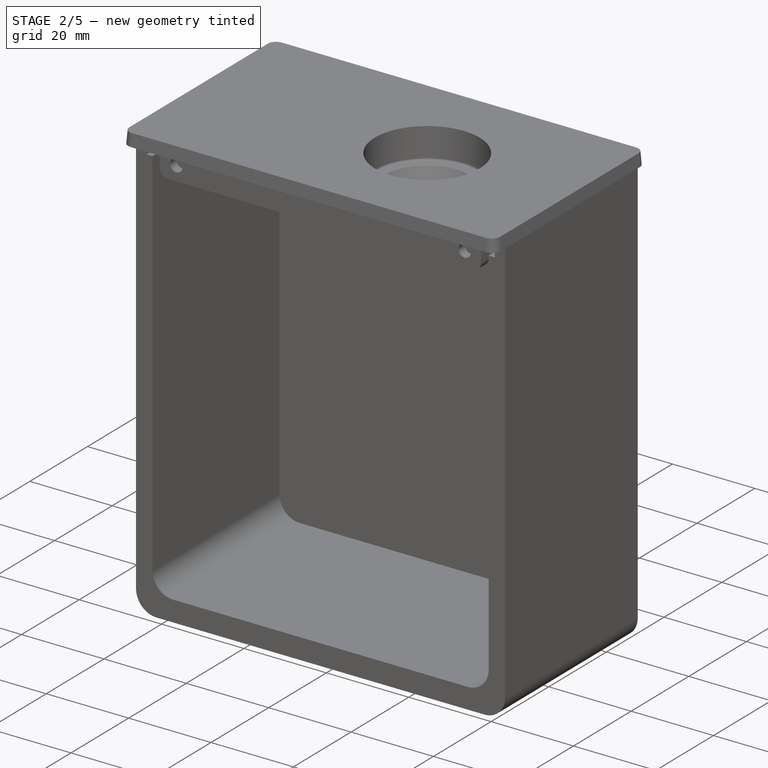
[diagram: stage 2 of 5 — iso view after this stage's code; geometry added in this stage tinted green]
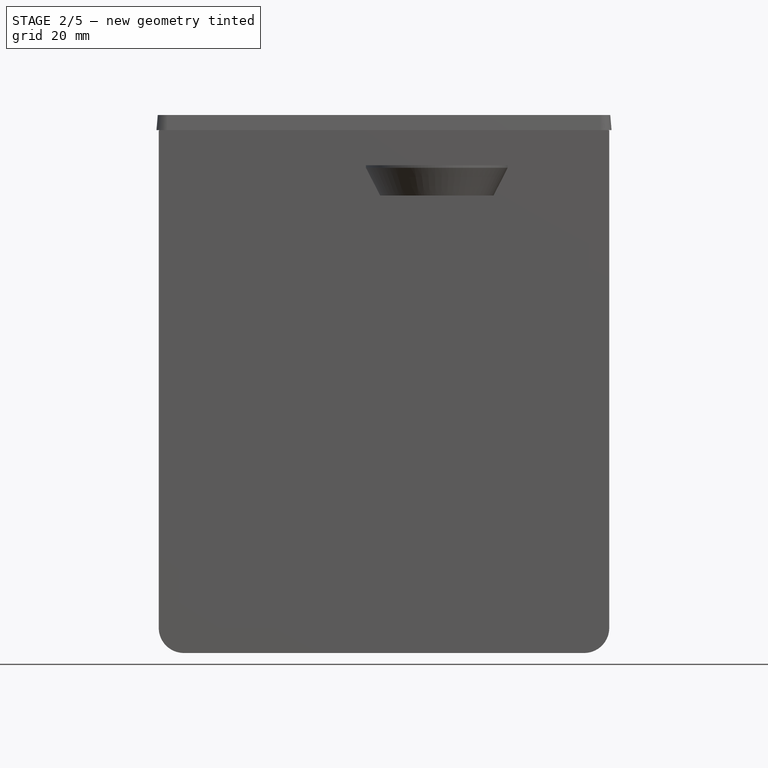
[diagram: stage 2 of 5 — front view after this stage's code; geometry added in this stage tinted green]
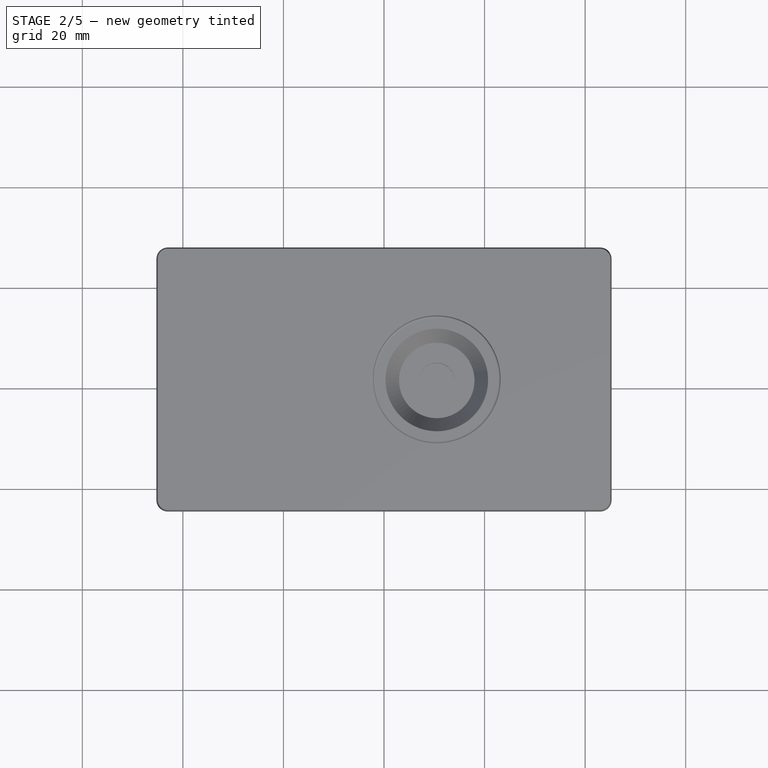
[diagram: stage 2 of 5 — top view after this stage's code; geometry added in this stage tinted green]
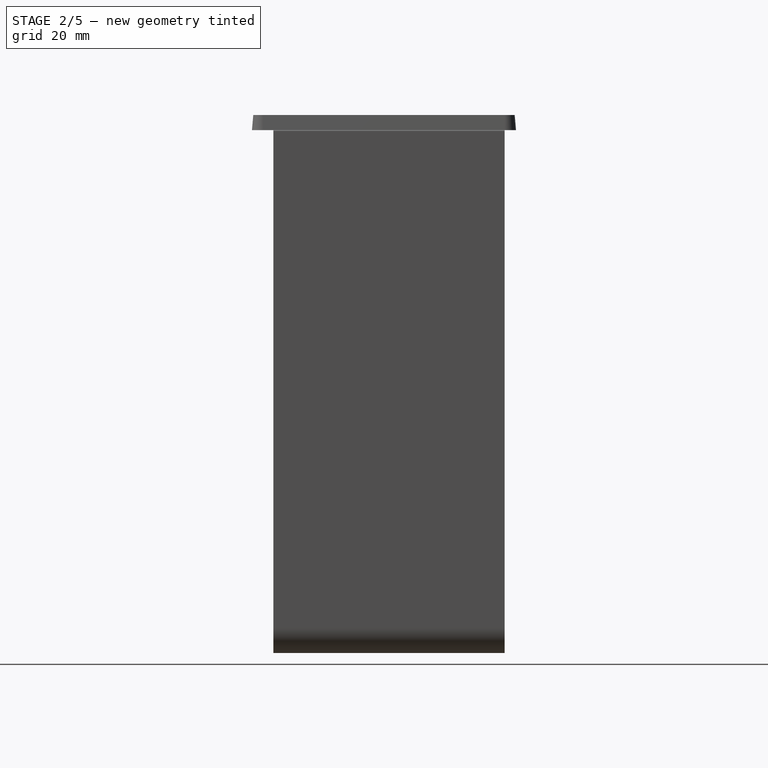
[diagram: stage 2 of 5 — right view after this stage's code; geometry added in this stage tinted green]
FEATURE [PartDesign::Body] Body012  label="Knob 25"
  AllowCompound = false
  Group = -> [Sketch056,Revolution001,Sketch057,Hole010]
  Origin = -> Origin
  Placement = pos=(10.5,0,-7.5) rot=(0,0,1;0rad)
  Tip = -> Hole010
  expr: .Placement.Base.x = <<Potenciometro PCI 10K>>.Placement.Base.x
FEATURE [Part::Feature] Part__Feature  label="Component2"
  Placement = pos=(0,0.350396,-0.0324766) rot=(-1,0,0;0.174533rad)
  shape: bbox 8.5 x 24.68 x 17.88 mm, 63 faces (baked)
FEATURE [Part::Feature] Part__Feature082  label="COMPOUND"
  shape: bbox 13.5 x 32.5 x 32 mm, 153 faces, 9 solids (baked)
FEATURE [App::Part] toggle_swith_v5  label="toggle swith v5"
  Group = -> [Part__Feature,Part__Feature082]
  Origin = -> Origin029
  Placement = pos=(33.5,-2e-16,-2) rot=(0,0,1;3.14159rad)
FEATURE [Sketcher::SketchObject] Sketch  label="Toggle switch support sketch"
  AttachmentOffset = pos=(0,0,33.5) rot=(0,0,1;0rad)
  AttachmentSupport = -> [YZ_Plane020]
  FullyConstrained = true
  MapMode = 5
  Placement = pos=(33.5,0,0) rot=(0.57735,0.57735,0.57735;2.0944rad)
  expr: .AttachmentOffset.Base.z = <<toggle swith v5>>.Placement.Base.x
  sketch-geometry (4):
    g0: LineSegment StartX=-18.5 StartY=0 StartZ=0 EndX=-18.5 EndY=-5 EndZ=0
    g1: LineSegment StartX=-18.5 StartY=-5 StartZ=0 EndX=18.5 EndY=-5 EndZ=0
    g2: LineSegment StartX=18.5 StartY=-5 StartZ=0 EndX=18.5 EndY=0 EndZ=0
    g3: LineSegment StartX=18.5 StartY=0 StartZ=0 EndX=-18.5 EndY=0 EndZ=0
  constraints (11):
    c: Coincident(g0,g1)
    c: Coincident(g1,g2)
    c: Coincident(g2,g3)
    c: Coincident(g3,g0)
    c: Vertical(g0)
    c: Vertical(g2)
    c: Horizontal(g1)
    c: Horizontal(g3)
    c: DistanceY(g2,g2) = 5
    c: DistanceX(g1,g1) = 37
    c: Symmetric(g0,g2,g-1)
FEATURE [Sketcher::SketchObject] Sketch058  label="Toggle switch front pocket sketch"
  AttachmentOffset = pos=(0,0,33.5) rot=(0,0,1;0rad)
  AttachmentSupport = -> [YZ_Plane020]
  FullyConstrained = true
  MapMode = 5
  Placement = pos=(33.5,0,0) rot=(0.57735,0.57735,0.57735;2.0944rad)
  expr: .AttachmentOffset.Base.z = <<toggle swith v5>>.Placement.Base.x
  sketch-geometry (4):
    g0: LineSegment StartX=-15.4 StartY=0 StartZ=0 EndX=-15.4 EndY=-2.1 EndZ=0
    g1: LineSegment StartX=15.4 StartY=-2.1 StartZ=0 EndX=15.4 EndY=0 EndZ=0
    g2: LineSegment StartX=15.4 StartY=0 StartZ=0 EndX=-15.4 EndY=0 EndZ=0
    g3: LineSegment StartX=-15.4 StartY=-2.1 StartZ=0 EndX=15.4 EndY=-2.1 EndZ=0
  constraints (11):
    c: Coincident(g1,g2)
    c: Coincident(g2,g0)
    c: Vertical(g0)
    c: Vertical(g1)
    c: Horizontal(g2)
    c: DistanceY(g1,g1) = 2.1
    c: DistanceX(g0,g1) = 30.8
    c: Symmetric(g0,g1,g-1)
    c: Horizontal(g0,g1)
    c: Coincident(g3,g0)
    c: Coincident(g3,g1)
FEATURE [Sketcher::SketchObject] Sketch059  label="Toggle switch pocket sketch"
  AttachmentOffset = pos=(0,0,33.5) rot=(0,0,1;0rad)
  AttachmentSupport = -> [YZ_Plane020]
  FullyConstrained = true
  MapMode = 5
  Placement = pos=(33.5,0,0) rot=(0.57735,0.57735,0.57735;2.0944rad)
  expr: .AttachmentOffset.Base.z = <<toggle swith v5>>.Placement.Base.x
  sketch-geometry (8):
    g0: LineSegment StartX=-15.4 StartY=0 StartZ=0 EndX=-15.4 EndY=-2.1 EndZ=0
    g1: LineSegment StartX=15.4 StartY=-2.1 StartZ=0 EndX=15.4 EndY=0 EndZ=0
    g2: LineSegment StartX=15.4 StartY=0 StartZ=0 EndX=-15.4 EndY=0 EndZ=0
    g3: LineSegment StartX=-15.4 StartY=-2.1 StartZ=0 EndX=-14.5 EndY=-2.1 EndZ=0
    g4: LineSegment StartX=-14.5 StartY=-2.1 StartZ=0 EndX=-14.5 EndY=-22.1 EndZ=0
    g5: LineSegment StartX=-14.5 StartY=-22.1 StartZ=0 EndX=14.5 EndY=-22.1 EndZ=0
    g6: LineSegment StartX=14.5 StartY=-22.1 StartZ=0 EndX=14.5 EndY=-2.1 EndZ=0
    g7: LineSegment StartX=14.5 StartY=-2.1 StartZ=0 EndX=15.4 EndY=-2.1 EndZ=0
  constraints (23):
    c: Coincident(g1,g2)
    c: Coincident(g2,g0)
    c: Vertical(g0)
    c: Vertical(g1)
    c: Horizontal(g2)
    c: DistanceY(g1,g1) = 2.1
    c: DistanceX(g0,g1) = 30.8
    c: Symmetric(g0,g1,g-1)
    c: Horizontal(g0,g1)
    c: Coincident(g3,g0)
    c: Horizontal(g3)
    c: Coincident(g4,g3)
    c: Vertical(g4)
    c: Coincident(g5,g4)
    c: Horizontal(g5)
    c: Coincident(g6,g5)
    c: Vertical(g6)
    c: Coincident(g7,g6)
    c: Coincident(g7,g1)
    c: Horizontal(g7)
    c: Equal(g7,g3)
    c: DistanceX(g5,g5) = 29
    c: DistanceY(g6,g6) = 20
FEATURE [Part::Feature] Part__Feature084  label="Resistor 50W"
  Placement = pos=(12.2,-7,-102) rot=(1,0,0;1.5708rad)
  shape: bbox 77 x 29 x 15.5 mm, 205 faces, 3 solids (baked)
FEATURE [PartDesign::SubShapeBinder] Binder006  label="Resistor binder"
  BindCopyOnChange = 0
  BindMode = 0
  ClaimChildren = false
  Context = -> Part007 [Body009.Binder006.]
  Fuse = false
  MakeFace = true
  OffsetFill = false
  OffsetIntersection = false
  OffsetJoinType = 0
  OffsetOpenResult = false
  PartialLoad = false
  Relative = true
  Support = -> [Part__Feature084[Face189]]
  _Version = 2
FEATURE [Sketcher::SketchObject] Sketch046
  AttachmentOffset = pos=(0,0,-102) rot=(0,0,1;0rad)
  AttachmentSupport = -> [XY_Plane021]
  ExternalGeometry = -> [Binder006]
  FullyConstrained = true
  MapMode = 5
  Placement = pos=(0,0,-102) rot=(0,0,1;0rad)
  expr: .AttachmentOffset.Base.z = -<<Inner dimensions>>.Constraints.height
  sketch-geometry (6):
    g0: Circle CenterX=-20.3 CenterY=-18 CenterZ=0 NormalX=0 NormalY=0 NormalZ=1 AngleXU=0 Radius=1.5
    g1: Circle CenterX=19.7 CenterY=4 CenterZ=0 NormalX=0 NormalY=0 NormalZ=1 AngleXU=0 Radius=1.5
    g2: LineSegment StartX=-20.3 StartY=-18 StartZ=0 EndX=19.7 EndY=-18 EndZ=0
    g3: LineSegment StartX=19.7 StartY=-18 StartZ=0 EndX=19.7 EndY=4 EndZ=0
    g4: LineSegment StartX=19.7 StartY=4 StartZ=0 EndX=-20.3 EndY=4 EndZ=0
    g5: LineSegment StartX=-20.3 StartY=4 StartZ=0 EndX=-20.3 EndY=-18 EndZ=0
  constraints (14):
    c: Coincident(g2,g0)
    c: Horizontal(g2)
    c: Coincident(g3,g1)
    c: Coincident(g4,g1)
    c: Coincident(g5,g0)
    c: Vertical(g5)
    c: Diameter(g0) = 3
    c: Coincident(g0,g-3)
    c: Coincident(g1,g-4)
    c: Coincident(g4,g5)
    c: Coincident(g2,g3)
    c: Vertical(g3)
    c: Horizontal(g4)
    c: Equal(g1,g0)
FEATURE [Part::Feature] Part__Feature085  label="USB_type_C_smd_12p v1"
  Placement = pos=(12.7304,6.33646,0.868541) rot=(0,0.707107,0.707107;3.14159rad)
  shape: bbox 9.201 x 7.951 x 4.471 mm, 559 faces, 4 solids (baked)
FEATURE [Part::Feature] Part__Feature086  label="Pads"
  shape: bbox 4.04 x 19.28 x 0.05 mm, 64 faces, 16 solids (baked)
FEATURE [Part::Feature] Part__Feature087  label="Pads2"
  Placement = pos=(25.4,0,0) rot=(0,1,0;3.14159rad)
  shape: bbox 4.04 x 19.28 x 0.05 mm, 64 faces, 16 solids (baked)
FEATURE [Part::Feature] Part__Feature088  label="Pads3"
  Placement = pos=(0,0,0.8) rot=(0,0,1;0rad)
  shape: bbox 4.04 x 19.28 x 0.05 mm, 64 faces, 16 solids (baked)
FEATURE [Part::Feature] Part__Feature089  label="Pads4"
  Placement = pos=(25.4,0,0.8) rot=(0,1,0;3.14159rad)
  shape: bbox 4.04 x 19.28 x 0.05 mm, 64 faces, 16 solids (baked)
FEATURE [Part::Feature] Part__Feature090  label="Top Text"
  shape: bbox 17.52 x 21.32 x 0.05 mm, 253 faces, 12 solids (baked)
FEATURE [Part::Feature] Part__Feature091  label="Bottom Text"
  shape: bbox 15.06 x 25.65 x 0.05 mm, 2909 faces, 95 solids (baked)
FEATURE [Part::Feature] Part__Feature092  label="Light"
  shape: bbox 0.3 x 0.3 x 0.3 mm, 1 faces (baked)
FEATURE [Part::Feature] Part__Feature093  label="Body019"
  shape: bbox 1.1 x 0.8 x 0.37 mm, 16 faces (baked)
FEATURE [Part::Feature] Part__Feature094  label="Anode Bottom"
  shape: bbox 0.6 x 0.7996 x 0.02 mm, 12 faces (baked)
FEATURE [Part::Feature] Part__Feature095  label="Cathode Bottom"
  shape: bbox 0.4 x 0.7996 x 0.02 mm, 8 faces (baked)
FEATURE [Part::Feature] Part__Feature096  label="Anode"
  shape: bbox 0.4 x 0.8 x 0.02 mm, 8 faces (baked)
FEATURE [Part::Feature] Part__Feature097  label="Cathode"
  shape: bbox 0.4 x 0.8 x 0.02 mm, 8 faces (baked)
FEATURE [Part::Feature] Part__Feature098  label="Base"
  shape: bbox 1.6 x 0.8 x 0.14 mm, 10 faces (baked)
FEATURE [App::Part] _603_Blue  label="0603 Blue"
  Group = -> [Part__Feature092,Part__Feature093,Part__Feature094,Part__Feature095,Part__Feature096,Part__Feature097,Part__Feature098]
  Origin = -> Origin030
FEATURE [App::Part] _603_Blue_v1  label="0603 Blue v1"
  Group = -> [_603_Blue]
  Origin = -> Origin031
  Placement = pos=(20,2,0.8) rot=(0,0,1;1.5708rad)
FEATURE [Part::Feature] Part__Feature099  label="40.00 MHz Oscillator v1"
  Placement = pos=(17.05,24.1735,0.801539) rot=(0,0.707107,0.707107;3.14159rad)
  shape: bbox 3.201 x 2.501 x 0.5662 mm, 196 faces, 3 solids (baked)
FEATURE [Part::Feature] Part__Feature100  label="ESP32-S2 v3"
  Placement = pos=(15,18,0.8) rot=(0,0,1;0rad)
  shape: bbox 7.054 x 7.054 x 0.8767 mm, 1517 faces, 29 solids (baked)
FEATURE [Part::Feature] Part__Feature101  label="ME6211-SOT23 v1"
  Placement = pos=(8.68086,10.322,0.9) rot=(0,0,1;1.5708rad)
  shape: bbox 3.1 x 3.2 x 1.11 mm, 188 faces (baked)
FEATURE [Part::Feature] Part__Feature102  label="Part 3"
  shape: bbox 0.5 x 0.29 x 0.197 mm, 10 faces (baked)
FEATURE [Part::Feature] Part__Feature103  label="Part 2"
  shape: bbox 0.1 x 0.3 x 0.2 mm, 18 faces (baked)
FEATURE [Part::Feature] Part__Feature104  label="Part 1"
  shape: bbox 0.1 x 0.3 x 0.2 mm, 18 faces (baked)
FEATURE [App::Part] C0201_020
  Group = -> [Part__Feature102,Part__Feature103,Part__Feature104]
  Origin = -> Origin032
  Placement = pos=(-4e-16,-2e-16,0) rot=(0,0,1;0rad)
FEATURE [App::Part] C0201_020_v1  label="C0201_020 v1"
  Group = -> [C0201_020]
  Origin = -> Origin033
  Placement = pos=(20,23.7,0.775) rot=(0,0,1;1.5708rad)
FEATURE [Part::Feature] Part__Feature105  label="Part 004"
  shape: bbox 0.5 x 0.29 x 0.197 mm, 10 faces (baked)
FEATURE [Part::Feature] Part__Feature106  label="Part 005"
  shape: bbox 0.1 x 0.3 x 0.2 mm, 18 faces (baked)
FEATURE [Part::Feature] Part__Feature107  label="Part 006"
  shape: bbox 0.1 x 0.3 x 0.2 mm, 18 faces (baked)
FEATURE [App::Part] C0201_021
  Group = -> [Part__Feature105,Part__Feature106,Part__Feature107]
  Origin = -> Origin034
  Placement = pos=(-4e-15,0,0) rot=(0,0,1;0rad)
FEATURE [App::Part] C0201_020_v002  label="C0201_020 v002"
  Group = -> [C0201_021]
  Origin = -> Origin035
  Placement = pos=(19.4,23.7,0.775) rot=(0,0,1;1.5708rad)
FEATURE [Part::Feature] Part__Feature108  label="Part 007"
  shape: bbox 0.5 x 0.29 x 0.197 mm, 10 faces (baked)
FEATURE [Part::Feature] Part__Feature109  label="Part 008"
  shape: bbox 0.1 x 0.3 x 0.2 mm, 18 faces (baked)
FEATURE [Part::Feature] Part__Feature110  label="Part 009"
  shape: bbox 0.1 x 0.3 x 0.2 mm, 18 faces (baked)
FEATURE [App::Part] C0201_022
  Group = -> [Part__Feature108,Part__Feature109,Part__Feature110]
  Origin = -> Origin036
  Placement = pos=(-1.73e-14,7e-16,0) rot=(0,0,1;0rad)
FEATURE [App::Part] C0201_020_v003  label="C0201_020 v003"
  Group = -> [C0201_022]
  Origin = -> Origin037
  Placement = pos=(14.4,23.7,0.775) rot=(0,0,1;1.5708rad)
FEATURE [Part::Feature] Part__Feature111  label="Part 010"
  shape: bbox 0.5 x 0.29 x 0.197 mm, 10 faces (baked)
FEATURE [Part::Feature] Part__Feature112  label="Part 011"
  shape: bbox 0.1 x 0.3 x 0.2 mm, 18 faces (baked)
FEATURE [Part::Feature] Part__Feature113  label="Part 012"
  shape: bbox 0.1 x 0.3 x 0.2 mm, 18 faces (baked)
FEATURE [App::Part] C0201_023
  Group = -> [Part__Feature111,Part__Feature112,Part__Feature113]
  Origin = -> Origin038
  Placement = pos=(-1.91e-14,1.8e-15,0) rot=(0,0,1;0rad)
FEATURE [App::Part] C0201_020_v004  label="C0201_020 v004"
  Group = -> [C0201_023]
  Origin = -> Origin039
  Placement = pos=(10.8,23,0.775) rot=(0,0,1;0rad)
FEATURE [Part::Feature] Part__Feature114  label="Part 013"
  shape: bbox 0.5 x 0.29 x 0.197 mm, 10 faces (baked)
FEATURE [Part::Feature] Part__Feature115  label="Part 014"
  shape: bbox 0.1 x 0.3 x 0.2 mm, 18 faces (baked)
FEATURE [Part::Feature] Part__Feature116  label="Part 015"
  shape: bbox 0.1 x 0.3 x 0.2 mm, 18 faces (baked)
FEATURE [App::Part] C0201_024
  Group = -> [Part__Feature114,Part__Feature115,Part__Feature116]
  Origin = -> Origin040
  Placement = pos=(-1.69e-14,7e-16,0) rot=(0,0,1;0rad)
FEATURE [App::Part] C0201_020_v005  label="C0201_020 v005"
  Group = -> [C0201_024]
  Origin = -> Origin041
  Placement = pos=(14.4,26.1,0.775) rot=(0,0,1;1.5708rad)
FEATURE [Part::Feature] Part__Feature117  label="Part 016"
  shape: bbox 0.5 x 0.29 x 0.197 mm, 10 faces (baked)
FEATURE [Part::Feature] Part__Feature118  label="Part 017"
  shape: bbox 0.1 x 0.3 x 0.2 mm, 18 faces (baked)
FEATURE [Part::Feature] Part__Feature119  label="Part 018"
  shape: bbox 0.1 x 0.3 x 0.2 mm, 18 faces (baked)
FEATURE [App::Part] C0201_025
  Group = -> [Part__Feature117,Part__Feature118,Part__Feature119]
  Origin = -> Origin042
  Placement = pos=(-1.95e-14,1.3e-15,0) rot=(0,0,1;0rad)
FEATURE [App::Part] C0201_020_v006  label="C0201_020 v006"
  Group = -> [C0201_025]
  Origin = -> Origin043
  Placement = pos=(10.8,26.1,0.775) rot=(0,0,1;0rad)
FEATURE [Part::Feature] Part__Feature120  label="Part 019"
  shape: bbox 0.5 x 0.29 x 0.197 mm, 10 faces (baked)
FEATURE [Part::Feature] Part__Feature121  label="Part 020"
  shape: bbox 0.1 x 0.3 x 0.2 mm, 18 faces (baked)
FEATURE [Part::Feature] Part__Feature122  label="Part 021"
  shape: bbox 0.1 x 0.3 x 0.2 mm, 18 faces (baked)
FEATURE [App::Part] C0201_026
  Group = -> [Part__Feature120,Part__Feature121,Part__Feature122]
  Origin = -> Origin044
  Placement = pos=(-1.95e-14,1.8e-15,1e-16) rot=(0,0,1;0rad)
FEATURE [App::Part] C0201_020_v007  label="C0201_020 v007"
  Group = -> [C0201_026]
  Origin = -> Origin045
  Placement = pos=(8.8,26.1,0.775) rot=(0,0,1;0rad)
FEATURE [Part::Feature] Part__Feature123  label="Part 022"
  shape: bbox 0.5 x 0.29 x 0.197 mm, 10 faces (baked)
FEATURE [Part::Feature] Part__Feature124  label="Part 023"
  shape: bbox 0.1 x 0.3 x 0.2 mm, 18 faces (baked)
FEATURE [Part::Feature] Part__Feature125  label="Part 024"
  shape: bbox 0.1 x 0.3 x 0.2 mm, 18 faces (baked)
FEATURE [App::Part] C0201_027
  Group = -> [Part__Feature123,Part__Feature124,Part__Feature125]
  Origin = -> Origin046
  Placement = pos=(-1.75e-14,9e-16,0) rot=(0,0,1;0rad)
FEATURE [App::Part] C0201_020_v008  label="C0201_020 v008"
  Group = -> [C0201_027]
  Origin = -> Origin047
  Placement = pos=(7,18.7,0.775) rot=(0,0,1;1.5708rad)
FEATURE [Part::Feature] Part__Feature126  label="Part 025"
  shape: bbox 0.5 x 0.29 x 0.197 mm, 10 faces (baked)
FEATURE [Part::Feature] Part__Feature127  label="Part 026"
  shape: bbox 0.1 x 0.3 x 0.2 mm, 18 faces (baked)
FEATURE [Part::Feature] Part__Feature128  label="Part 027"
  shape: bbox 0.1 x 0.3 x 0.2 mm, 18 faces (baked)
FEATURE [App::Part] C0201_028
  Group = -> [Part__Feature126,Part__Feature127,Part__Feature128]
  Origin = -> Origin048
  Placement = pos=(-1.75e-14,1.3e-15,0) rot=(0,0,1;0rad)
FEATURE [App::Part] C0201_020_v009  label="C0201_020 v009"
  Group = -> [C0201_028]
  Origin = -> Origin049
  Placement = pos=(6.5,18.7,0.775) rot=(0,0,1;1.5708rad)
FEATURE [Part::Feature] Part__Feature129  label="Part 028"
  shape: bbox 0.5 x 0.29 x 0.197 mm, 10 faces (baked)
FEATURE [Part::Feature] Part__Feature130  label="Part 029"
  shape: bbox 0.1 x 0.3 x 0.2 mm, 18 faces (baked)
FEATURE [Part::Feature] Part__Feature131  label="Part 030"
  shape: bbox 0.1 x 0.3 x 0.2 mm, 18 faces (baked)
FEATURE [App::Part] C0201_029
  Group = -> [Part__Feature129,Part__Feature130,Part__Feature131]
  Origin = -> Origin050
  Placement = pos=(4e-16,1.6e-15,0) rot=(0,0,1;0rad)
FEATURE [App::Part] C0201_020_v010  label="C0201_020 v010"
  Group = -> [C0201_029]
  Origin = -> Origin051
  Placement = pos=(20,11.2,0.775) rot=(0,0,1;1.5708rad)
FEATURE [Part::Feature] Part__Feature132  label="Part 031"
  shape: bbox 0.5 x 0.29 x 0.197 mm, 10 faces (baked)
FEATURE [Part::Feature] Part__Feature133  label="Part 032"
  shape: bbox 0.1 x 0.3 x 0.2 mm, 18 faces (baked)
FEATURE [Part::Feature] Part__Feature134  label="Part 033"
  shape: bbox 0.1 x 0.3 x 0.2 mm, 18 faces (baked)
FEATURE [App::Part] C0201_030
  Group = -> [Part__Feature132,Part__Feature133,Part__Feature134]
  Origin = -> Origin052
  Placement = pos=(1.6e-15,1.3e-15,0) rot=(0,0,1;0rad)
FEATURE [App::Part] C0201_020_v011  label="C0201_020 v011"
  Group = -> [C0201_030]
  Origin = -> Origin053
  Placement = pos=(19.5,11.2,0.775) rot=(0,0,1;1.5708rad)
FEATURE [Part::Feature] Part__Feature135  label="Part 034"
  shape: bbox 0.5 x 0.29 x 0.197 mm, 10 faces (baked)
FEATURE [Part::Feature] Part__Feature136  label="Part 035"
  shape: bbox 0.1 x 0.3 x 0.2 mm, 18 faces (baked)
FEATURE [Part::Feature] Part__Feature137  label="Part 036"
  shape: bbox 0.1 x 0.3 x 0.2 mm, 18 faces (baked)
FEATURE [App::Part] C0201_031
  Group = -> [Part__Feature135,Part__Feature136,Part__Feature137]
  Origin = -> Origin054
  Placement = pos=(3.3e-15,2.9e-15,0) rot=(0,0,1;0rad)
FEATURE [App::Part] C0201_020_v012  label="C0201_020 v012"
  Group = -> [C0201_031]
  Origin = -> Origin055
  Placement = pos=(19,11.2,0.775) rot=(0,0,1;1.5708rad)
FEATURE [Part::Feature] Part__Feature138  label="Part 037"
  shape: bbox 0.5 x 0.29 x 0.197 mm, 10 faces (baked)
FEATURE [Part::Feature] Part__Feature139  label="Part 038"
  shape: bbox 0.1 x 0.3 x 0.2 mm, 18 faces (baked)
FEATURE [Part::Feature] Part__Feature140  label="Part 039"
  shape: bbox 0.1 x 0.3 x 0.2 mm, 18 faces (baked)
FEATURE [App::Part] C0201_032
  Group = -> [Part__Feature138,Part__Feature139,Part__Feature140]
  Origin = -> Origin056
  Placement = pos=(5.6e-15,3.3e-15,0) rot=(0,0,1;0rad)
FEATURE [App::Part] C0201_020_v013  label="C0201_020 v013"
  Group = -> [C0201_032]
  Origin = -> Origin057
  Placement = pos=(12.5,11.2,0.775) rot=(0,0,1;1.5708rad)
FEATURE [Part::Feature] Part__Feature141  label="Part 040"
  shape: bbox 1.4 x 0.77 x 0.77 mm, 10 faces (baked)
FEATURE [Part::Feature] Part__Feature142  label="Part 041"
  shape: bbox 0.2 x 0.8 x 0.8 mm, 18 faces (baked)
FEATURE [Part::Feature] Part__Feature143  label="Part 042"
  shape: bbox 0.2 x 0.8 x 0.8 mm, 18 faces (baked)
FEATURE [App::Part] C0603_080
  Group = -> [Part__Feature141,Part__Feature142,Part__Feature143]
  Origin = -> Origin058
  Placement = pos=(-2e-16,-1e-16,0) rot=(0,0,1;0rad)
FEATURE [App::Part] C0603_080_v1  label="C0603_080 v1"
  Group = -> [C0603_080]
  Origin = -> Origin059
  Placement = pos=(5.8,18.2,0.775) rot=(0,0,1;1.5708rad)
FEATURE [Part::Feature] Part__Feature144  label="Part 043"
  shape: bbox 1.4 x 0.77 x 0.77 mm, 10 faces (baked)
FEATURE [Part::Feature] Part__Feature145  label="Part 044"
  shape: bbox 0.2 x 0.8 x 0.8 mm, 18 faces (baked)
FEATURE [Part::Feature] Part__Feature146  label="Part 045"
  shape: bbox 0.2 x 0.8 x 0.8 mm, 18 faces (baked)
FEATURE [App::Part] C0603_081
  Group = -> [Part__Feature144,Part__Feature145,Part__Feature146]
  Origin = -> Origin060
  Placement = pos=(1.1e-15,-1.3e-15,0) rot=(0,0,1;0rad)
FEATURE [App::Part] C0603_080_v002  label="C0603_080 v002"
  Group = -> [C0603_081]
  Origin = -> Origin061
  Placement = pos=(6.2,7.2,0.775) rot=(0,0,1;1.5708rad)
FEATURE [Part::Feature] Part__Feature147  label="Part 046"
  shape: bbox 1.4 x 0.77 x 0.77 mm, 10 faces (baked)
FEATURE [Part::Feature] Part__Feature148  label="Part 047"
  shape: bbox 0.2 x 0.8 x 0.8 mm, 18 faces (baked)
FEATURE [Part::Feature] Part__Feature149  label="Part 048"
  shape: bbox 0.2 x 0.8 x 0.8 mm, 18 faces (baked)
FEATURE [App::Part] C0603_082
  Group = -> [Part__Feature147,Part__Feature148,Part__Feature149]
  Origin = -> Origin062
  Placement = pos=(1.7e-15,-2e-16,0) rot=(0,0,1;0rad)
FEATURE [App::Part] C0603_080_v003  label="C0603_080 v003"
  Group = -> [C0603_082]
  Origin = -> Origin063
  Placement = pos=(6.1,13.7,0.775) rot=(0,0,1;3.14159rad)
FEATURE [Part::Feature] Part__Feature150  label="R01005 v2"
  Placement = pos=(19,1.52624,0.799762) rot=(0,0.707107,0.707107;3.14159rad)
  shape: bbox 0.2013 x 0.5413 x 0.1521 mm, 185 faces, 6 solids (baked)
FEATURE [Part::Feature] Part__Feature151  label="R01005 v003"
  Placement = pos=(18.6,11.1762,0.799762) rot=(0,0.707107,0.707107;3.14159rad)
  shape: bbox 0.2013 x 0.5413 x 0.1521 mm, 185 faces, 6 solids (baked)
FEATURE [Part::Feature] Part__Feature152  label="R01005 v004"
  Placement = pos=(10.8088,25.535,0.799762) rot=(0.57735,-0.57735,-0.57735;2.0944rad)
  shape: bbox 0.5413 x 0.2013 x 0.1521 mm, 185 faces, 6 solids (baked)
FEATURE [Part::Feature] Part__Feature153  label="R01005 v005"
  Placement = pos=(9,25.5438,0.799762) rot=(1,0,0;1.5708rad)
  shape: bbox 0.2013 x 0.5413 x 0.1521 mm, 185 faces, 6 solids (baked)
FEATURE [Part::Feature] Part__Feature154  label="R01005 v006"
  Placement = pos=(11.9,11.1938,0.799762) rot=(1,0,0;1.5708rad)
  shape: bbox 0.2013 x 0.5413 x 0.1521 mm, 185 faces, 6 solids (baked)
FEATURE [Part::Feature] Part__Feature155  label="R01005 v007"
  Placement = pos=(13.3,11.1938,0.799762) rot=(1,0,0;1.5708rad)
  shape: bbox 0.2013 x 0.5413 x 0.1521 mm, 185 faces, 6 solids (baked)
FEATURE [Part::Feature] Part__Feature156  label="SOLID"
  shape: bbox 25.4 x 34.3 x 0.9 mm, 82 faces (baked)
FEATURE [App::Part] Board
  Group = -> [Part__Feature085,Part__Feature086,Part__Feature087,Part__Feature088,Part__Feature089,Part__Feature090,Part__Feature091,_603_Blue_v1,Part__Feature099,Part__Feature100,Part__Feature101,C0201_020_v1,C0201_020_v002,C0201_020_v003,C0201_020_v004,C0201_020_v005,C0201_020_v006,C0201_020_v007,C0201_020_v008,C0201_020_v009,C0201_020_v010,C0201_020_v011,C0201_020_v012,C0201_020_v013,C0603_080_v1,+9 more]
  Origin = -> Origin064
FEATURE [Part::Feature] Part__Feature157  label="uController Reset Button v1"
  Placement = pos=(152.157,-56.4119,44.4796) rot=(-1,0,0;1.5708rad)
  shape: bbox 3.5 x 4.6 x 1.5 mm, 30 faces, 2 solids (baked)
FEATURE [Part::Feature] Part__Feature158  label="uController Reset Button v002"
  Placement = pos=(-124.757,63.2711,44.4796) rot=(0,0.707107,-0.707107;3.14159rad)
  shape: bbox 3.5 x 4.6 x 1.5 mm, 30 faces, 2 solids (baked)
FEATURE [Part::Feature] Part__Feature159  label="body"
  shape: bbox 20.32 x 2.54 x 2.5 mm, 148 faces (baked)
FEATURE [Part::Feature] Part__Feature160  label="pin"
  shape: bbox 0.64 x 0.64 x 11.6 mm, 14 faces (baked)
FEATURE [Part::Feature] Part__Feature161  label="pin001"
  Placement = pos=(2.54,0,0) rot=(0,0,1;0rad)
  shape: bbox 0.64 x 0.64 x 11.6 mm, 14 faces (baked)
FEATURE [Part::Feature] Part__Feature162  label="pin002"
  Placement = pos=(5.08,0,0) rot=(0,0,1;0rad)
  shape: bbox 0.64 x 0.64 x 11.6 mm, 14 faces (baked)
FEATURE [Part::Feature] Part__Feature163  label="pin003"
  Placement = pos=(7.62,0,0) rot=(0,0,1;0rad)
  shape: bbox 0.64 x 0.64 x 11.6 mm, 14 faces (baked)
FEATURE [Part::Feature] Part__Feature164  label="pin004"
  Placement = pos=(10.16,0,0) rot=(0,0,1;0rad)
  shape: bbox 0.64 x 0.64 x 11.6 mm, 14 faces (baked)
FEATURE [Part::Feature] Part__Feature165  label="pin005"
  Placement = pos=(12.7,0,0) rot=(0,0,1;0rad)
  shape: bbox 0.64 x 0.64 x 11.6 mm, 14 faces (baked)
FEATURE [Part::Feature] Part__Feature166  label="pin006"
  Placement = pos=(15.24,0,0) rot=(0,0,1;0rad)
  shape: bbox 0.64 x 0.64 x 11.6 mm, 14 faces (baked)
FEATURE [Part::Feature] Part__Feature167  label="pin007"
  Placement = pos=(17.78,0,0) rot=(0,0,1;0rad)
  shape: bbox 0.64 x 0.64 x 11.6 mm, 14 faces (baked)
FEATURE [App::Part] DS1021_1x8S61_v1  label="DS1021-1x8S61 v1"
  Group = -> [Part__Feature159,Part__Feature160,Part__Feature161,Part__Feature162,Part__Feature163,Part__Feature164,Part__Feature165,Part__Feature166,Part__Feature167]
  Origin = -> Origin065
  Placement = pos=(1.25,8.675,-0.05) rot=(0.707107,0.707107,0;3.14159rad)
FEATURE [Part::Feature] Part__Feature168  label="body001"
  shape: bbox 20.32 x 2.54 x 2.5 mm, 148 faces (baked)
FEATURE [Part::Feature] Part__Feature169  label="pin008"
  shape: bbox 0.64 x 0.64 x 11.6 mm, 14 faces (baked)
FEATURE [Part::Feature] Part__Feature170  label="pin009"
  Placement = pos=(2.54,0,0) rot=(0,0,1;0rad)
  shape: bbox 0.64 x 0.64 x 11.6 mm, 14 faces (baked)
FEATURE [Part::Feature] Part__Feature171  label="pin010"
  Placement = pos=(5.08,0,0) rot=(0,0,1;0rad)
  shape: bbox 0.64 x 0.64 x 11.6 mm, 14 faces (baked)
FEATURE [Part::Feature] Part__Feature172  label="pin011"
  Placement = pos=(7.62,0,0) rot=(0,0,1;0rad)
  shape: bbox 0.64 x 0.64 x 11.6 mm, 14 faces (baked)
FEATURE [Part::Feature] Part__Feature173  label="pin012"
  Placement = pos=(10.16,0,0) rot=(0,0,1;0rad)
  shape: bbox 0.64 x 0.64 x 11.6 mm, 14 faces (baked)
FEATURE [Part::Feature] Part__Feature174  label="pin013"
  Placement = pos=(12.7,0,0) rot=(0,0,1;0rad)
  shape: bbox 0.64 x 0.64 x 11.6 mm, 14 faces (baked)
FEATURE [Part::Feature] Part__Feature175  label="pin014"
  Placement = pos=(15.24,0,0) rot=(0,0,1;0rad)
  shape: bbox 0.64 x 0.64 x 11.6 mm, 14 faces (baked)
FEATURE [Part::Feature] Part__Feature176  label="pin015"
  Placement = pos=(17.78,0,0) rot=(0,0,1;0rad)
  shape: bbox 0.64 x 0.64 x 11.6 mm, 14 faces (baked)
FEATURE [App::Part] DS1021_1x8S61_v002  label="DS1021-1x8S61 v002"
  Group = -> [Part__Feature168,Part__Feature169,Part__Feature170,Part__Feature171,Part__Feature172,Part__Feature173,Part__Feature174,Part__Feature175,Part__Feature176]
  Origin = -> Origin066
  Placement = pos=(3.79,8.675,-0.05) rot=(0.707107,0.707107,0;3.14159rad)
FEATURE [Part::Feature] Part__Feature177  label="body002"
  shape: bbox 20.32 x 2.54 x 2.5 mm, 148 faces (baked)
FEATURE [Part::Feature] Part__Feature178  label="pin016"
  shape: bbox 0.64 x 0.64 x 11.6 mm, 14 faces (baked)
FEATURE [Part::Feature] Part__Feature179  label="pin017"
  Placement = pos=(2.54,0,0) rot=(0,0,1;0rad)
  shape: bbox 0.64 x 0.64 x 11.6 mm, 14 faces (baked)
FEATURE [Part::Feature] Part__Feature180  label="pin018"
  Placement = pos=(5.08,0,0) rot=(0,0,1;0rad)
  shape: bbox 0.64 x 0.64 x 11.6 mm, 14 faces (baked)
FEATURE [Part::Feature] Part__Feature181  label="pin019"
  Placement = pos=(7.62,0,0) rot=(0,0,1;0rad)
  shape: bbox 0.64 x 0.64 x 11.6 mm, 14 faces (baked)
FEATURE [Part::Feature] Part__Feature182  label="pin020"
  Placement = pos=(10.16,0,0) rot=(0,0,1;0rad)
  shape: bbox 0.64 x 0.64 x 11.6 mm, 14 faces (baked)
FEATURE [Part::Feature] Part__Feature183  label="pin021"
  Placement = pos=(12.7,0,0) rot=(0,0,1;0rad)
  shape: bbox 0.64 x 0.64 x 11.6 mm, 14 faces (baked)
FEATURE [Part::Feature] Part__Feature184  label="pin022"
  Placement = pos=(15.24,0,0) rot=(0,0,1;0rad)
  shape: bbox 0.64 x 0.64 x 11.6 mm, 14 faces (baked)
FEATURE [Part::Feature] Part__Feature185  label="pin023"
  Placement = pos=(17.78,0,0) rot=(0,0,1;0rad)
  shape: bbox 0.64 x 0.64 x 11.6 mm, 14 faces (baked)
FEATURE [App::Part] DS1021_1x8S61_v003  label="DS1021-1x8S61 v003"
  Group = -> [Part__Feature177,Part__Feature178,Part__Feature179,Part__Feature180,Part__Feature181,Part__Feature182,Part__Feature183,Part__Feature184,Part__Feature185]
  Origin = -> Origin067
  Placement = pos=(21.61,8.675,-0.05) rot=(0.707107,0.707107,0;3.14159rad)
FEATURE [Part::Feature] Part__Feature186  label="body003"
  shape: bbox 20.32 x 2.54 x 2.5 mm, 148 faces (baked)
FEATURE [Part::Feature] Part__Feature187  label="pin024"
  shape: bbox 0.64 x 0.64 x 11.6 mm, 14 faces (baked)
FEATURE [Part::Feature] Part__Feature188  label="pin025"
  Placement = pos=(2.54,0,0) rot=(0,0,1;0rad)
  shape: bbox 0.64 x 0.64 x 11.6 mm, 14 faces (baked)
FEATURE [Part::Feature] Part__Feature189  label="pin026"
  Placement = pos=(5.08,0,0) rot=(0,0,1;0rad)
  shape: bbox 0.64 x 0.64 x 11.6 mm, 14 faces (baked)
FEATURE [Part::Feature] Part__Feature190  label="pin027"
  Placement = pos=(7.62,0,0) rot=(0,0,1;0rad)
  shape: bbox 0.64 x 0.64 x 11.6 mm, 14 faces (baked)
FEATURE [Part::Feature] Part__Feature191  label="pin028"
  Placement = pos=(10.16,0,0) rot=(0,0,1;0rad)
  shape: bbox 0.64 x 0.64 x 11.6 mm, 14 faces (baked)
FEATURE [Part::Feature] Part__Feature192  label="pin029"
  Placement = pos=(12.7,0,0) rot=(0,0,1;0rad)
  shape: bbox 0.64 x 0.64 x 11.6 mm, 14 faces (baked)
FEATURE [Part::Feature] Part__Feature193  label="pin030"
  Placement = pos=(15.24,0,0) rot=(0,0,1;0rad)
  shape: bbox 0.64 x 0.64 x 11.6 mm, 14 faces (baked)
FEATURE [Part::Feature] Part__Feature194  label="pin031"
  Placement = pos=(17.78,0,0) rot=(0,0,1;0rad)
  shape: bbox 0.64 x 0.64 x 11.6 mm, 14 faces (baked)
FEATURE [App::Part] DS1021_1x8S61_v004  label="DS1021-1x8S61 v004"
  Group = -> [Part__Feature186,Part__Feature187,Part__Feature188,Part__Feature189,Part__Feature190,Part__Feature191,Part__Feature192,Part__Feature193,Part__Feature194]
  Origin = -> Origin068
  Placement = pos=(24.15,8.675,-0.05) rot=(0.707107,0.707107,0;3.14159rad)
FEATURE [App::Part] Header_Pins  label="Header Pins"
  Group = -> [DS1021_1x8S61_v1,DS1021_1x8S61_v002,DS1021_1x8S61_v003,DS1021_1x8S61_v004]
  Origin = -> Origin069
FEATURE [App::Part] S2_Mini_Board_v44  label="S2 Mini Board v44"
  Group = -> [Board,Part__Feature157,Part__Feature158,Header_Pins]
  Origin = -> Origin070
  Placement = pos=(-40.5,12,-12) rot=(0,0,1;4.71239rad)
FEATURE [Sketcher::SketchObject] Sketch061  label="PCB sketch001"
  AttachmentSupport = -> [XY_Plane071]
  FullyConstrained = true
  MapMode = 5
  expr: Constraints[29] = 0.9 mm + 3.2 mm / 2
  sketch-geometry (14):
    g0: LineSegment StartX=-17.8 StartY=16.8 StartZ=0 EndX=17.8 EndY=16.8 EndZ=0
    g1: LineSegment StartX=17.8 StartY=16.8 StartZ=0 EndX=17.8 EndY=-16.8 EndZ=0
    g2: LineSegment StartX=17.8 StartY=-16.8 StartZ=0 EndX=7 EndY=-16.8 EndZ=0
    g3: LineSegment StartX=7 StartY=-16.8 StartZ=0 EndX=7 EndY=-12.5 EndZ=0
    g4: LineSegment StartX=7 StartY=-12.5 StartZ=0 EndX=-7 EndY=-12.5 EndZ=0
    g5: LineSegment StartX=-7 StartY=-12.5 StartZ=0 EndX=-7 EndY=-16.8 EndZ=0
    g6: LineSegment StartX=-7 StartY=-16.8 StartZ=0 EndX=-17.8 EndY=-16.8 EndZ=0
    g7: LineSegment StartX=-17.8 StartY=-16.8 StartZ=0 EndX=-17.8 EndY=16.8 EndZ=0
    g8: Circle CenterX=15.3 CenterY=14.3 CenterZ=0 NormalX=0 NormalY=0 NormalZ=1 AngleXU=0 Radius=1.6
    g9: Circle CenterX=-15.3 CenterY=14.3 CenterZ=0 NormalX=0 NormalY=0 NormalZ=1 AngleXU=0 Radius=1.6
    g10: Circle CenterX=-15.3 CenterY=-14.3 CenterZ=0 NormalX=0 NormalY=0 NormalZ=1 AngleXU=0 Radius=1.6
    g11: Circle CenterX=15.3 CenterY=-14.3 CenterZ=0 NormalX=0 NormalY=0 NormalZ=1 AngleXU=0 Radius=1.6
    g12: LineSegment StartX=15.3 StartY=14.3 StartZ=0 EndX=17.8 EndY=14.3 EndZ=0
    g13: LineSegment StartX=15.3 StartY=14.3 StartZ=0 EndX=15.3 EndY=16.8 EndZ=0
  constraints (38):
    c: Horizontal(g0)
    c: Coincident(g0,g1)
    c: Coincident(g1,g2)
    c: Coincident(g2,g3)
    c: Coincident(g3,g4)
    c: Coincident(g4,g5)
    c: Coincident(g5,g6)
    c: Coincident(g6,g7)
    c: Coincident(g7,g0)
    c: Horizontal(g4)
    c: Vertical(g5)
    c: Vertical(g7)
    c: Vertical(g3)
    c: Horizontal(g2)
    c: Horizontal(g6)
    c: Symmetric(g1,g6,g-2)
    c: Symmetric(g6,g0,g-1)
    c: Equal(g2,g6)
    c: DistanceX(g4,g4) = 14
    c: DistanceX(g0,g0) = 35.6
    c: DistanceY(g1,g1) = 33.6
    c: DistanceY(g3,g3) = 4.3
    c: Equal(g11,g8)
    c: Equal(g8,g9)
    c: Equal(g9,g10)
    c: Diameter(g8) = 3.2
    c: Vertical(g10,g9)
    c: Symmetric(g11,g10,g-2)
    c: Horizontal(g9,g8)
    c: DistanceX(g8,g0) = 2.5
    c: Coincident(g12,g8)
    c: PointOnObject(g12,g1)
    c: Horizontal(g12)
    c: Coincident(g13,g8)
    c: PointOnObject(g13,g0)
    c: Vertical(g13)
    c: Equal(g12,g13)
    c: Symmetric(g8,g11,g-1)
FEATURE [PartDesign::Pad] Pad022  label="Pad"
  Direction = (0,0,1)
  Length = 1.2
  Length2 = 10
  Profile = -> Sketch061
  ReferenceAxis = -> Sketch061 [N_Axis]
  Suppressed = false
  Type = 0
FEATURE [PartDesign::Body] Body  label="PCB"
  AllowCompound = false
  Group = -> [Sketch061,Pad022]
  Origin = -> Origin071
  Tip = -> Pad022
FEATURE [Sketcher::SketchObject] Sketch062  label="OLED sketch"
  AttachmentOffset = pos=(0,0,1.2) rot=(0,0,1;0rad)
  AttachmentSupport = -> [XY_Plane072]
  FullyConstrained = true
  MapMode = 5
  Placement = pos=(0,0,1.2) rot=(0,0,1;0rad)
  expr: .AttachmentOffset.Base.z = <<Pad>>.Length
  sketch-geometry (4):
    g0: LineSegment StartX=-17.3 StartY=11.5 StartZ=0 EndX=-17.3 EndY=-11.5 EndZ=0
    g1: LineSegment StartX=-17.3 StartY=-11.5 StartZ=0 EndX=17.3 EndY=-11.5 EndZ=0
    g2: LineSegment StartX=17.3 StartY=-11.5 StartZ=0 EndX=17.3 EndY=11.5 EndZ=0
    g3: LineSegment StartX=17.3 StartY=11.5 StartZ=0 EndX=-17.3 EndY=11.5 EndZ=0
  constraints (11):
    c: Coincident(g0,g1)
    c: Coincident(g1,g2)
    c: Coincident(g2,g3)
    c: Coincident(g3,g0)
    c: Vertical(g0)
    c: Vertical(g2)
    c: Horizontal(g1)
    c: Horizontal(g3)
    c: Symmetric(g1,g0,g-1)
    c: DistanceY(g2,g2) = 23  'height'
    c: DistanceX(g3,g3) = 34.6
FEATURE [Sketcher::SketchObject] Sketch002  label="Display area sketch"
  AttachmentOffset = pos=(0,0,2.9) rot=(0,0,1;0rad)
  AttachmentSupport = -> [XY_Plane072]
  FullyConstrained = false
  MapMode = 5
  Placement = pos=(0,0,2.9) rot=(0,0,1;0rad)
  expr: .AttachmentOffset.Base.z = <<OLED sketch>>.Placement.Base.z + <<Main OLED pad>>.Length
  sketch-geometry (4):
    g0: LineSegment StartX=-17.3 StartY=11.5 StartZ=0 EndX=-17.3 EndY=-7.25 EndZ=0
    g1: LineSegment StartX=-17.3 StartY=-7.25 StartZ=0 EndX=17.3 EndY=-7.25 EndZ=0
    g2: LineSegment StartX=17.3 StartY=-7.25 StartZ=0 EndX=17.3 EndY=11.5 EndZ=0
    g3: LineSegment StartX=17.3 StartY=11.5 StartZ=0 EndX=-17.3 EndY=11.5 EndZ=0
  constraints (9):
    c: Coincident(g0,g1)
    c: Coincident(g1,g2)
    c: Coincident(g2,g3)
    c: Coincident(g3,g0)
    c: Vertical(g0)
    c: Vertical(g2)
    c: Horizontal(g1)
    c: Symmetric(g0,g2,g-2)
    c: DistanceY(g2,g2) = 18.75  'height'
FEATURE [PartDesign::Pad] Pad023  label="Main OLED pad"
  Direction = (0,0,1)
  Length = 1.7
  Length2 = 10
  Profile = -> Sketch062
  ReferenceAxis = -> Sketch062 [N_Axis]
  Suppressed = false
  Type = 0
FEATURE [PartDesign::Pad] Pad024  label="Display area pad"
  BaseFeature = -> Pad023
  Direction = (0,0,1)
  Length = 0.2
  Length2 = 10
  Profile = -> Sketch002
  ReferenceAxis = -> Sketch002 [N_Axis]
  Suppressed = false
  Type = 0
FEATURE [PartDesign::Body] Body013  label="OLED"
  AllowCompound = false
  Group = -> [Sketch062,Sketch002,Pad023,Pad024]
  Origin = -> Origin072
  Tip = -> Pad024
FEATURE [Sketcher::SketchObject] Sketch003
  AttachmentSupport = -> [YZ_Plane002]
  FullyConstrained = true
  MapMode = 5
  Placement = pos=(0,0,0) rot=(0.57735,0.57735,0.57735;2.0944rad)
  expr: Constraints[4] = <<Display area sketch>>.Placement.Base.z
  sketch-geometry (6):
    g0: ArcOfCircle CenterX=-11.5 CenterY=0.896154 CenterZ=0 NormalX=0 NormalY=0 NormalZ=1 AngleXU=0 Radius=2.00385 StartAngle=1.5708 EndAngle=3.22155
    g1: ArcOfCircle CenterX=-11.5 CenterY=0.896154 CenterZ=0 NormalX=0 NormalY=0 NormalZ=1 AngleXU=0 Radius=2.10385 StartAngle=1.5708 EndAngle=3.22155
    g2: LineSegment StartX=-11.5 StartY=2.9 StartZ=0 EndX=-11.5 EndY=3 EndZ=0
    g3: ArcOfCircle CenterX=-12.7 CenterY=0.8 CenterZ=0 NormalX=0 NormalY=0 NormalZ=1 AngleXU=0 Radius=0.8 StartAngle=3.22155 EndAngle=4.71239
    g4: ArcOfCircle CenterX=-12.7 CenterY=0.8 CenterZ=0 NormalX=0 NormalY=0 NormalZ=1 AngleXU=0 Radius=0.9 StartAngle=3.22155 EndAngle=4.71239
    g5: LineSegment StartX=-12.7 StartY=0 StartZ=0 EndX=-12.7 EndY=-0.1 EndZ=0
  constraints (18):
    c: Coincident(g1,g0)
    c: Coincident(g2,g0)
    c: Coincident(g2,g1)
    c: DistanceY(g2,g2) = 0.1
    c: DistanceY(g-1,g0) = 2.9
    c: Perpendicular(g0,g2)
    c: DistanceX(g1,g-1) = 11.5
    c: Coincident(g4,g3)
    c: Tangent(g3,g0) = -1.5708
    c: Coincident(g5,g3)
    c: Coincident(g5,g4)
    c: Vertical(g5)
    c: DistanceX(g3,g-1) = 12.7
    c: Vertical(g2)
    c: Perpendicular(g3,g5)
    c: PointOnObject(g3,g-1)
    c: Tangent(g4,g1) = -1.5708
    c: Radius(g3) = 0.8
FEATURE [PartDesign::Pad] Pad025
  Direction = (1,0,0)
  Length = 12
  Length2 = 10
  Midplane = true
  Placement = pos=(0,0,0) rot=(1,1,1;2.0944rad)
  Profile = -> Sketch003
  ReferenceAxis = -> Sketch003 [N_Axis]
  Suppressed = false
  Type = 0
FEATURE [Sketcher::SketchObject] Sketch004
  AttachmentOffset = pos=(0,0,2.9) rot=(0,0,1;0rad)
  AttachmentSupport = -> [XY_Plane002]
  FullyConstrained = false
  MapMode = 5
  Placement = pos=(0,0,2.9) rot=(0,0,1;0rad)
  expr: .AttachmentOffset.Base.z = <<Display area sketch>>.Placement.Base.z
  sketch-geometry (10):
    g0: LineSegment StartX=-7.5 StartY=-9.5 StartZ=0 EndX=-7.5 EndY=-11 EndZ=0
    g1: LineSegment StartX=-7 StartY=-11.5 StartZ=0 EndX=7 EndY=-11.5 EndZ=0
    g2: LineSegment StartX=7.5 StartY=-11 StartZ=0 EndX=7.5 EndY=-9.5 EndZ=0
    g3: LineSegment StartX=7 StartY=-9 StartZ=0 EndX=-7 EndY=-9 EndZ=0
    g4: ArcOfCircle CenterX=-7 CenterY=-9.5 CenterZ=0 NormalX=0 NormalY=0 NormalZ=1 AngleXU=0 Radius=0.5 StartAngle=1.5708 EndAngle=3.14159
    g5: ArcOfCircle CenterX=-7 CenterY=-11 CenterZ=0 NormalX=0 NormalY=0 NormalZ=1 AngleXU=0 Radius=0.5 StartAngle=3.14159 EndAngle=4.71239
    g6: ArcOfCircle CenterX=7 CenterY=-11 CenterZ=0 NormalX=0 NormalY=0 NormalZ=1 AngleXU=0 Radius=0.5 StartAngle=4.71239 EndAngle=6.28319
    g7: ArcOfCircle CenterX=7 CenterY=-9.5 CenterZ=0 NormalX=0 NormalY=0 NormalZ=1 AngleXU=0 Radius=0.5 StartAngle=5e-16 EndAngle=1.5708
    g8: GeomPoint X=-7.5 Y=-9 Z=0
    g9: GeomPoint X=7.5 Y=-11.5 Z=0
  constraints (22):
    c: Tangent(g0,g4) = -1.5708
    c: Tangent(g0,g5) = -1.5708
    c: Tangent(g1,g5) = -1.5708
    c: Tangent(g1,g6) = -1.5708
    c: Tangent(g2,g6) = -1.5708
    c: Tangent(g2,g7) = -1.5708
    c: Tangent(g3,g7) = -1.5708
    c: Tangent(g3,g4) = -1.5708
    c: Vertical(g0)
    c: Vertical(g2)
    c: Horizontal(g1)
    c: Horizontal(g3)
    c: Equal(g4,g5)
    c: Equal(g5,g6)
    c: PointOnObject(g8,g0)
    c: PointOnObject(g8,g3)
    c: PointOnObject(g9,g1)
    c: PointOnObject(g9,g2)
    c: Radius(g5) = 0.5
    c: DistanceY(g1,g3) = 2.5
    c: DistanceX(g0,g2) = 15
    c: Symmetric(g7,g4,g-2)
FEATURE [PartDesign::Pad] Pad026
  BaseFeature = -> Pad025
  Direction = (0,0,1)
  Length = 0.1
  Length2 = 10
  Placement = pos=(0,0,0) rot=(1,1,1;2.0944rad)
  Profile = -> Sketch004
  ReferenceAxis = -> Sketch004 [N_Axis]
  Suppressed = false
  Type = 0
FEATURE [Sketcher::SketchObject] Sketch063
  AttachmentSupport = -> [XY_Plane002]
  FullyConstrained = false
  MapMode = 5
  expr: Constraints[18] = <<Pad025>>.Length
  sketch-geometry (8):
    g0: LineSegment StartX=-6 StartY=-12.7 StartZ=0 EndX=6 EndY=-12.7 EndZ=0
    g1: LineSegment StartX=6 StartY=-12.7 StartZ=0 EndX=10.9638 EndY=-10.352 EndZ=0
    g2: ArcOfCircle CenterX=10.75 CenterY=-9.9 CenterZ=0 NormalX=0 NormalY=0 NormalZ=1 AngleXU=0 Radius=0.5 StartAngle=5.15423 EndAngle=6.28319
    g3: LineSegment StartX=11.25 StartY=-9.9 StartZ=0 EndX=11.25 EndY=-6.2 EndZ=0
    g4: LineSegment StartX=11.25 StartY=-6.2 StartZ=0 EndX=-11.25 EndY=-6.2 EndZ=0
    g5: LineSegment StartX=-11.25 StartY=-6.2 StartZ=0 EndX=-11.25 EndY=-9.9 EndZ=0
    g6: ArcOfCircle CenterX=-10.75 CenterY=-9.9 CenterZ=0 NormalX=0 NormalY=0 NormalZ=1 AngleXU=0 Radius=0.5 StartAngle=3.14159 EndAngle=4.27055
    g7: LineSegment StartX=-10.9638 StartY=-10.352 StartZ=0 EndX=-6 EndY=-12.7 EndZ=0
  constraints (19):
    c: Coincident(g0,g1)
    c: Tangent(g1,g2) = -1.5708
    c: Vertical(g3)
    c: Coincident(g3,g4)
    c: Coincident(g4,g5)
    c: Tangent(g5,g6) = -1.5708
    c: Coincident(g7,g0)
    c: Vertical(g5)
    c: Tangent(g6,g7) = -1.5708
    c: Tangent(g2,g3) = -1.5708
    c: Symmetric(g4,g3,g-2)
    c: Symmetric(g0,g0,g-2)
    c: DistanceY(g0,g3) = 6.5
    c: DistanceX(g4,g4) = 22.5
    c: Radius(g2) = 0.5
    c: Equal(g2,g6)
    c: DistanceY(g3,g3) = 3.7
    c: Equal(g3,g5)
    c: DistanceX(g0,g0) = 12
FEATURE [PartDesign::Pad] Pad027
  BaseFeature = -> Pad026
  Direction = (0,0,1)
  Length = 0.1
  Length2 = 10
  Placement = pos=(0,0,0) rot=(1,1,1;2.0944rad)
  Profile = -> Sketch063
  ReferenceAxis = -> Sketch063 [N_Axis]
  Reversed = true
  Suppressed = false
  Type = 0
  expr: Length = <<Pad026>>.Length
FEATURE [PartDesign::Body] Body014  label="OLED cable"
  AllowCompound = false
  Group = -> [Sketch003,Pad025,Sketch004,Pad026,Sketch063,Pad027]
  Origin = -> Origin002
  Tip = -> Pad027
FEATURE [Sketcher::SketchObject] Sketch064
  AttachmentSupport = -> [XY_Plane073]
  FullyConstrained = true
  MapMode = 5
  sketch-geometry (16):
    g0: LineSegment StartX=-1.25 StartY=0.896447 StartZ=0 EndX=-1.25 EndY=-0.896447 EndZ=0
    g1: LineSegment StartX=-0.896447 StartY=-1.25 StartZ=0 EndX=0.896447 EndY=-1.25 EndZ=0
    g2: LineSegment StartX=1.25 StartY=-0.896447 StartZ=0 EndX=1.25 EndY=0.896447 EndZ=0
    g3: LineSegment StartX=0.896447 StartY=1.25 StartZ=0 EndX=-0.896447 EndY=1.25 EndZ=0
    g4: ArcOfCircle CenterX=0.896447 CenterY=0.896447 CenterZ=0 NormalX=0 NormalY=0 NormalZ=1 AngleXU=0 Radius=0.353553 StartAngle=5.86e-14 EndAngle=1.5708
    g5: GeomPoint X=1.25 Y=1.25 Z=0
    g6: LineSegment StartX=1.25 StartY=0.896447 StartZ=0 EndX=0.896447 EndY=1.25 EndZ=0
    g7: ArcOfCircle CenterX=-0.896447 CenterY=0.896447 CenterZ=0 NormalX=0 NormalY=0 NormalZ=1 AngleXU=0 Radius=0.353553 StartAngle=1.5708 EndAngle=3.14159
    g8: GeomPoint X=-1.25 Y=1.25 Z=0
    g9: LineSegment StartX=-0.896447 StartY=1.25 StartZ=0 EndX=-1.25 EndY=0.896447 EndZ=0
    g10: ArcOfCircle CenterX=-0.896447 CenterY=-0.896447 CenterZ=0 NormalX=0 NormalY=0 NormalZ=1 AngleXU=0 Radius=0.353553 StartAngle=3.14159 EndAngle=4.71239
    g11: GeomPoint X=-1.25 Y=-1.25 Z=0
    g12: LineSegment StartX=-1.25 StartY=-0.896447 StartZ=0 EndX=-0.896447 EndY=-1.25 EndZ=0
    g13: ArcOfCircle CenterX=0.896447 CenterY=-0.896447 CenterZ=0 NormalX=0 NormalY=0 NormalZ=1 AngleXU=0 Radius=0.353553 StartAngle=4.71239 EndAngle=6.28319
    g14: GeomPoint X=1.25 Y=-1.25 Z=0
    g15: LineSegment StartX=0.896447 StartY=-1.25 StartZ=0 EndX=1.25 EndY=-0.896447 EndZ=0
  constraints (35):
    c: Vertical(g0)
    c: Vertical(g2)
    c: Horizontal(g1)
    c: Horizontal(g3)
    c: Symmetric(g14,g8,g-1)
    c: PointOnObject(g5,g2)
    c: PointOnObject(g5,g3)
    c: Tangent(g2,g4) = -1.5708
    c: Tangent(g3,g4) = -1.5708
    c: Coincident(g6,g2)
    c: Coincident(g6,g3)
    c: PointOnObject(g8,g0)
    c: PointOnObject(g8,g3)
    c: Tangent(g0,g7) = -1.5708
    c: Tangent(g3,g7) = -1.5708
    c: Coincident(g9,g0)
    c: Coincident(g9,g3)
    c: PointOnObject(g11,g0)
    c: PointOnObject(g11,g1)
    c: Tangent(g0,g10) = -1.5708
    c: Tangent(g1,g10) = -1.5708
    c: Coincident(g12,g0)
    c: Coincident(g12,g1)
    c: PointOnObject(g14,g1)
    c: PointOnObject(g14,g2)
    c: Tangent(g1,g13) = -1.5708
    c: Tangent(g2,g13) = -1.5708
    c: Coincident(g15,g1)
    c: Coincident(g15,g2)
    c: Equal(g13,g4)
    c: Equal(g4,g7)
    c: Equal(g7,g10)
    c: DistanceY(g1,g3) = 2.5
    c: Equal(g2,g3)
    c: Distance(g6) = 0.5
FEATURE [PartDesign::Pad] Pad028
  Direction = (0,0,1)
  Length = 2.4
  Length2 = 10
  Profile = -> Sketch064
  ReferenceAxis = -> Sketch064 [N_Axis]
  Suppressed = false
  Type = 0
FEATURE [PartDesign::Body] Body015  label="Pin base"
  AllowCompound = false
  Group = -> [Sketch064,Pad028]
  Origin = -> Origin073
  Tip = -> Pad028
FEATURE [Sketcher::SketchObject] Sketch065
  AttachmentSupport = -> [XZ_Plane074]
  FullyConstrained = true
  MapMode = 5
  Placement = pos=(0,0,0) rot=(1,0,0;1.5708rad)
  sketch-geometry (4):
    g0: LineSegment StartX=-0.3 StartY=8.1 StartZ=0 EndX=-0.3 EndY=-2.9 EndZ=0
    g1: LineSegment StartX=-0.3 StartY=-2.9 StartZ=0 EndX=0.3 EndY=-2.9 EndZ=0
    g2: LineSegment StartX=0.3 StartY=-2.9 StartZ=0 EndX=0.3 EndY=8.1 EndZ=0
    g3: LineSegment StartX=0.3 StartY=8.1 StartZ=0 EndX=-0.3 EndY=8.1 EndZ=0
  constraints (11):
    c: Vertical(g0)
    c: Coincident(g0,g1)
    c: Vertical(g2)
    c: Coincident(g3,g0)
    c: Horizontal(g3)
    c: DistanceX(g0,g2) = 0.6  'thickness'
    c: DistanceY(g0,g0) = 11
    c: DistanceY(g-1,g0) = 8.1
    c: Coincident(g1,g2)
    c: Coincident(g2,g3)
    c: Symmetric(g1,g0,g-2)
FEATURE [PartDesign::Pad] Pad029
  Direction = (0,-1,2e-16)
  Length = 0.6
  Length2 = 10
  Midplane = true
  Placement = pos=(0,0,0) rot=(1,0,0;1.5708rad)
  Profile = -> Sketch065
  ReferenceAxis = -> Sketch065 [N_Axis]
  Suppressed = false
  Type = 0
  expr: Length = <<Sketch065>>.Constraints.thickness
FEATURE [PartDesign::Chamfer] Chamfer002
  Angle = 45
  Base = -> Pad029 [Face4,Face2]
  BaseFeature = -> Pad029
  ChamferType = 1
  FlipDirection = false
  Placement = pos=(0,0,0) rot=(1,0,0;1.5708rad)
  Size = 0.1
  Size2 = 0.2
  SupportTransform = false
  Suppressed = false
  UseAllEdges = false
FEATURE [PartDesign::Body] Body016  label="Pin"
  AllowCompound = false
  Group = -> [Sketch065,Pad029,Chamfer002]
  Origin = -> Origin074
  Tip = -> Chamfer002
FEATURE [App::Part] Part  label="Header pin"
  Group = -> [Body016,Body015]
  Origin = -> Origin075
  Placement = pos=(3.75,15.5,4e-16) rot=(0,1,0;3.14159rad)
FEATURE [Sketcher::SketchObject] Sketch066
  AttachmentSupport = -> [XY_Plane077]
  FullyConstrained = true
  MapMode = 5
  sketch-geometry (16):
    g0: LineSegment StartX=-1.25 StartY=0.896447 StartZ=0 EndX=-1.25 EndY=-0.896447 EndZ=0
    g1: LineSegment StartX=-0.896447 StartY=-1.25 StartZ=0 EndX=0.896447 EndY=-1.25 EndZ=0
    g2: LineSegment StartX=1.25 StartY=-0.896447 StartZ=0 EndX=1.25 EndY=0.896447 EndZ=0
    g3: LineSegment StartX=0.896447 StartY=1.25 StartZ=0 EndX=-0.896447 EndY=1.25 EndZ=0
    g4: ArcOfCircle CenterX=0.896447 CenterY=0.896447 CenterZ=0 NormalX=0 NormalY=0 NormalZ=1 AngleXU=0 Radius=0.353553 StartAngle=5.86e-14 EndAngle=1.5708
    g5: GeomPoint X=1.25 Y=1.25 Z=0
    g6: LineSegment StartX=1.25 StartY=0.896447 StartZ=0 EndX=0.896447 EndY=1.25 EndZ=0
    g7: ArcOfCircle CenterX=-0.896447 CenterY=0.896447 CenterZ=0 NormalX=0 NormalY=0 NormalZ=1 AngleXU=0 Radius=0.353553 StartAngle=1.5708 EndAngle=3.14159
    g8: GeomPoint X=-1.25 Y=1.25 Z=0
    g9: LineSegment StartX=-0.896447 StartY=1.25 StartZ=0 EndX=-1.25 EndY=0.896447 EndZ=0
    g10: ArcOfCircle CenterX=-0.896447 CenterY=-0.896447 CenterZ=0 NormalX=0 NormalY=0 NormalZ=1 AngleXU=0 Radius=0.353553 StartAngle=3.14159 EndAngle=4.71239
    g11: GeomPoint X=-1.25 Y=-1.25 Z=0
    g12: LineSegment StartX=-1.25 StartY=-0.896447 StartZ=0 EndX=-0.896447 EndY=-1.25 EndZ=0
    g13: ArcOfCircle CenterX=0.896447 CenterY=-0.896447 CenterZ=0 NormalX=0 NormalY=0 NormalZ=1 AngleXU=0 Radius=0.353553 StartAngle=4.71239 EndAngle=6.28319
    g14: GeomPoint X=1.25 Y=-1.25 Z=0
    g15: LineSegment StartX=0.896447 StartY=-1.25 StartZ=0 EndX=1.25 EndY=-0.896447 EndZ=0
  constraints (35):
    c: Vertical(g0)
    c: Vertical(g2)
    c: Horizontal(g1)
    c: Horizontal(g3)
    c: Symmetric(g14,g8,g-1)
    c: PointOnObject(g5,g2)
    c: PointOnObject(g5,g3)
    c: Tangent(g2,g4) = -1.5708
    c: Tangent(g3,g4) = -1.5708
    c: Coincident(g6,g2)
    c: Coincident(g6,g3)
    c: PointOnObject(g8,g0)
    c: PointOnObject(g8,g3)
    c: Tangent(g0,g7) = -1.5708
    c: Tangent(g3,g7) = -1.5708
    c: Coincident(g9,g0)
    c: Coincident(g9,g3)
    c: PointOnObject(g11,g0)
    c: PointOnObject(g11,g1)
    c: Tangent(g0,g10) = -1.5708
    c: Tangent(g1,g10) = -1.5708
    c: Coincident(g12,g0)
    c: Coincident(g12,g1)
    c: PointOnObject(g14,g1)
    c: PointOnObject(g14,g2)
    c: Tangent(g1,g13) = -1.5708
    c: Tangent(g2,g13) = -1.5708
    c: Coincident(g15,g1)
    c: Coincident(g15,g2)
    c: Equal(g13,g4)
    c: Equal(g4,g7)
    c: Equal(g7,g10)
    c: DistanceY(g1,g3) = 2.5
    c: Equal(g2,g3)
    c: Distance(g6) = 0.5
FEATURE [PartDesign::Pad] Pad030
  Direction = (0,0,1)
  Length = 2.4
  Length2 = 10
  Profile = -> Sketch066
  ReferenceAxis = -> Sketch066 [N_Axis]
  Suppressed = false
  Type = 0
FEATURE [PartDesign::Body] Body017  label="Pin base001"
  AllowCompound = false
  Group = -> [Sketch066,Pad030]
  Origin = -> Origin077
  Tip = -> Pad030
FEATURE [Sketcher::SketchObject] Sketch067
  AttachmentSupport = -> [XZ_Plane078]
  FullyConstrained = true
  MapMode = 5
  Placement = pos=(0,0,0) rot=(1,0,0;1.5708rad)
  sketch-geometry (4):
    g0: LineSegment StartX=-0.3 StartY=8.1 StartZ=0 EndX=-0.3 EndY=-2.9 EndZ=0
    g1: LineSegment StartX=-0.3 StartY=-2.9 StartZ=0 EndX=0.3 EndY=-2.9 EndZ=0
    g2: LineSegment StartX=0.3 StartY=-2.9 StartZ=0 EndX=0.3 EndY=8.1 EndZ=0
    g3: LineSegment StartX=0.3 StartY=8.1 StartZ=0 EndX=-0.3 EndY=8.1 EndZ=0
  constraints (11):
    c: Vertical(g0)
    c: Coincident(g0,g1)
    c: Vertical(g2)
    c: Coincident(g3,g0)
    c: Horizontal(g3)
    c: DistanceX(g0,g2) = 0.6  'thickness'
    c: DistanceY(g0,g0) = 11
    c: DistanceY(g-1,g0) = 8.1
    c: Coincident(g1,g2)
    c: Coincident(g2,g3)
    c: Symmetric(g1,g0,g-2)
FEATURE [PartDesign::Pad] Pad009
  Direction = (0,-1,2e-16)
  Length = 0.6
  Length2 = 10
  Midplane = true
  Placement = pos=(0,0,0) rot=(1,0,0;1.5708rad)
  Profile = -> Sketch067
  ReferenceAxis = -> Sketch067 [N_Axis]
  Suppressed = false
  Type = 0
  expr: Length = <<Sketch067>>.Constraints.thickness
FEATURE [PartDesign::Chamfer] Chamfer003
  Angle = 45
  Base = -> Pad009 [Face4,Face2]
  BaseFeature = -> Pad009
  ChamferType = 1
  FlipDirection = false
  Placement = pos=(0,0,0) rot=(1,0,0;1.5708rad)
  Size = 0.1
  Size2 = 0.2
  SupportTransform = false
  Suppressed = false
  UseAllEdges = false
FEATURE [PartDesign::Body] Body018  label="Pin001"
  AllowCompound = false
  Group = -> [Sketch067,Pad009,Chamfer003]
  Origin = -> Origin078
  Tip = -> Chamfer003
FEATURE [App::Part] Part009  label="Header pin001"
  Group = -> [Body018,Body017]
  Origin = -> Origin079
  Placement = pos=(1.25,15.5,2e-16) rot=(0,1,0;3.14159rad)
FEATURE [Sketcher::SketchObject] Sketch068
  AttachmentSupport = -> [XY_Plane080]
  FullyConstrained = true
  MapMode = 5
  sketch-geometry (16):
    g0: LineSegment StartX=-1.25 StartY=0.896447 StartZ=0 EndX=-1.25 EndY=-0.896447 EndZ=0
    g1: LineSegment StartX=-0.896447 StartY=-1.25 StartZ=0 EndX=0.896447 EndY=-1.25 EndZ=0
    g2: LineSegment StartX=1.25 StartY=-0.896447 StartZ=0 EndX=1.25 EndY=0.896447 EndZ=0
    g3: LineSegment StartX=0.896447 StartY=1.25 StartZ=0 EndX=-0.896447 EndY=1.25 EndZ=0
    g4: ArcOfCircle CenterX=0.896447 CenterY=0.896447 CenterZ=0 NormalX=0 NormalY=0 NormalZ=1 AngleXU=0 Radius=0.353553 StartAngle=5.86e-14 EndAngle=1.5708
    g5: GeomPoint X=1.25 Y=1.25 Z=0
    g6: LineSegment StartX=1.25 StartY=0.896447 StartZ=0 EndX=0.896447 EndY=1.25 EndZ=0
    g7: ArcOfCircle CenterX=-0.896447 CenterY=0.896447 CenterZ=0 NormalX=0 NormalY=0 NormalZ=1 AngleXU=0 Radius=0.353553 StartAngle=1.5708 EndAngle=3.14159
    g8: GeomPoint X=-1.25 Y=1.25 Z=0
    g9: LineSegment StartX=-0.896447 StartY=1.25 StartZ=0 EndX=-1.25 EndY=0.896447 EndZ=0
    g10: ArcOfCircle CenterX=-0.896447 CenterY=-0.896447 CenterZ=0 NormalX=0 NormalY=0 NormalZ=1 AngleXU=0 Radius=0.353553 StartAngle=3.14159 EndAngle=4.71239
    g11: GeomPoint X=-1.25 Y=-1.25 Z=0
    g12: LineSegment StartX=-1.25 StartY=-0.896447 StartZ=0 EndX=-0.896447 EndY=-1.25 EndZ=0
    g13: ArcOfCircle CenterX=0.896447 CenterY=-0.896447 CenterZ=0 NormalX=0 NormalY=0 NormalZ=1 AngleXU=0 Radius=0.353553 StartAngle=4.71239 EndAngle=6.28319
    g14: GeomPoint X=1.25 Y=-1.25 Z=0
    g15: LineSegment StartX=0.896447 StartY=-1.25 StartZ=0 EndX=1.25 EndY=-0.896447 EndZ=0
  constraints (35):
    c: Vertical(g0)
    c: Vertical(g2)
    c: Horizontal(g1)
    c: Horizontal(g3)
    c: Symmetric(g14,g8,g-1)
    c: PointOnObject(g5,g2)
    c: PointOnObject(g5,g3)
    c: Tangent(g2,g4) = -1.5708
    c: Tangent(g3,g4) = -1.5708
    c: Coincident(g6,g2)
    c: Coincident(g6,g3)
    c: PointOnObject(g8,g0)
    c: PointOnObject(g8,g3)
    c: Tangent(g0,g7) = -1.5708
    c: Tangent(g3,g7) = -1.5708
    c: Coincident(g9,g0)
    c: Coincident(g9,g3)
    c: PointOnObject(g11,g0)
    c: PointOnObject(g11,g1)
    c: Tangent(g0,g10) = -1.5708
    c: Tangent(g1,g10) = -1.5708
    c: Coincident(g12,g0)
    c: Coincident(g12,g1)
    c: PointOnObject(g14,g1)
    c: PointOnObject(g14,g2)
    c: Tangent(g1,g13) = -1.5708
    c: Tangent(g2,g13) = -1.5708
    c: Coincident(g15,g1)
    c: Coincident(g15,g2)
    c: Equal(g13,g4)
    c: Equal(g4,g7)
    c: Equal(g7,g10)
    c: DistanceY(g1,g3) = 2.5
    c: Equal(g2,g3)
    c: Distance(g6) = 0.5
FEATURE [PartDesign::Pad] Pad010
  Direction = (0,0,1)
  Length = 2.4
  Length2 = 10
  Profile = -> Sketch068
  ReferenceAxis = -> Sketch068 [N_Axis]
  Suppressed = false
  Type = 0
FEATURE [PartDesign::Chamfer] Chamfer004
  Angle = 45
  Base = -> Pad031 [Face4,Face2]
  BaseFeature = -> Pad031
  ChamferType = 1
  FlipDirection = false
  Placement = pos=(0,0,0) rot=(1,0,0;1.5708rad)
  Size = 0.1
  Size2 = 0.2
  SupportTransform = false
  Suppressed = false
  UseAllEdges = false
FEATURE [PartDesign::Pocket] Pocket019  label="Display PCB pocket"
  BaseFeature = -> Pocket023
  Direction = (0,0,-1)
  Length = 1.2
  Length2 = 5
  Profile = -> Sketch053
  ReferenceAxis = -> Sketch053 [N_Axis]
  Reversed = true
  Suppressed = false
  Type = 0
  expr: Length = <<Pad>>.Length
FEATURE [PartDesign::Pocket] Pocket012  label="Display and cable cutout"
  BaseFeature = -> Pocket019
  Direction = (0,0,-1)
  Length = 5
  Length2 = 5
  Profile = -> Sketch030
  ReferenceAxis = -> Sketch030 [N_Axis]
  Suppressed = false
  Type = 0
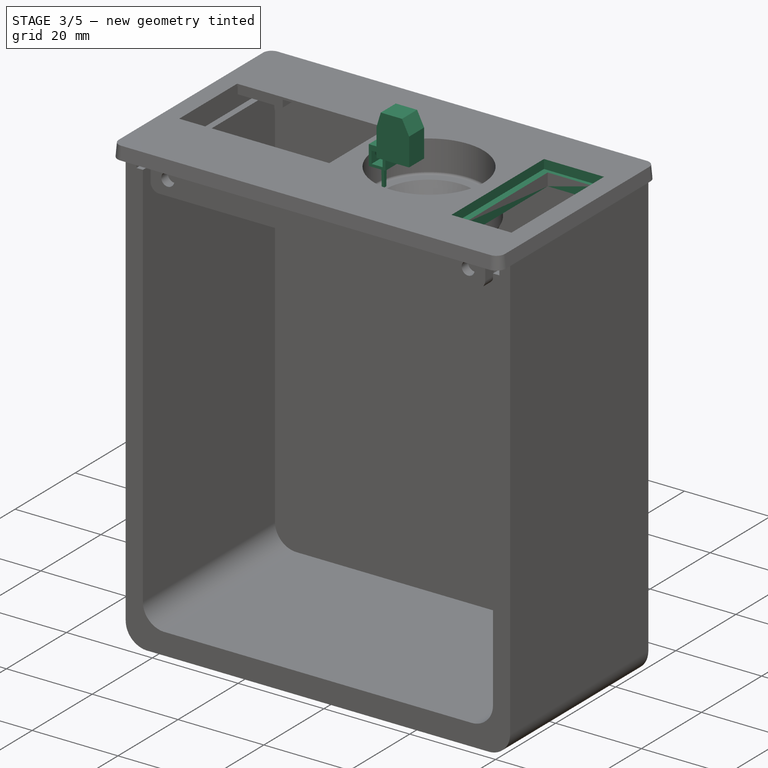
[diagram: stage 3 of 5 — iso view after this stage's code; geometry added in this stage tinted green]
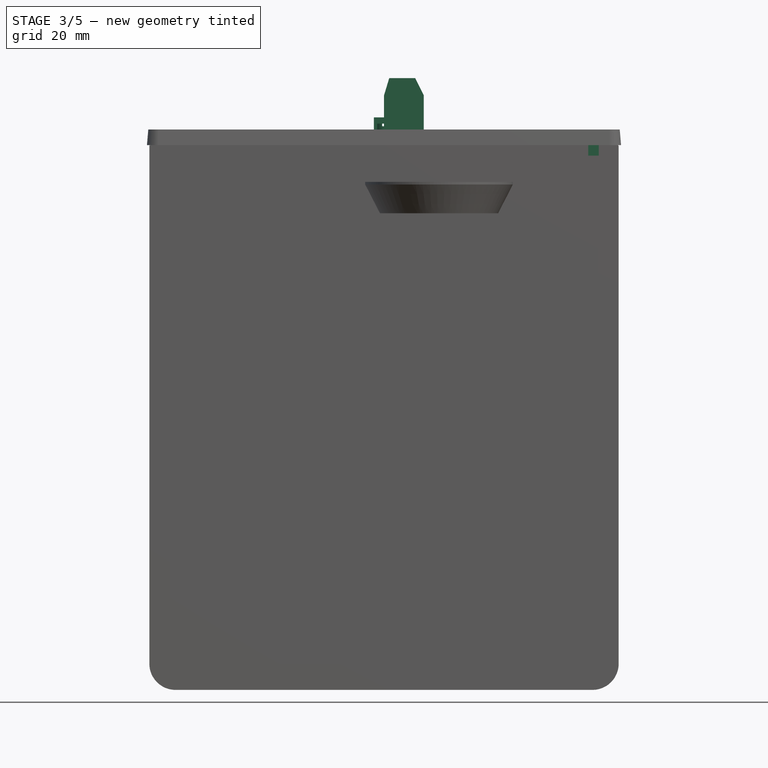
[diagram: stage 3 of 5 — front view after this stage's code; geometry added in this stage tinted green]
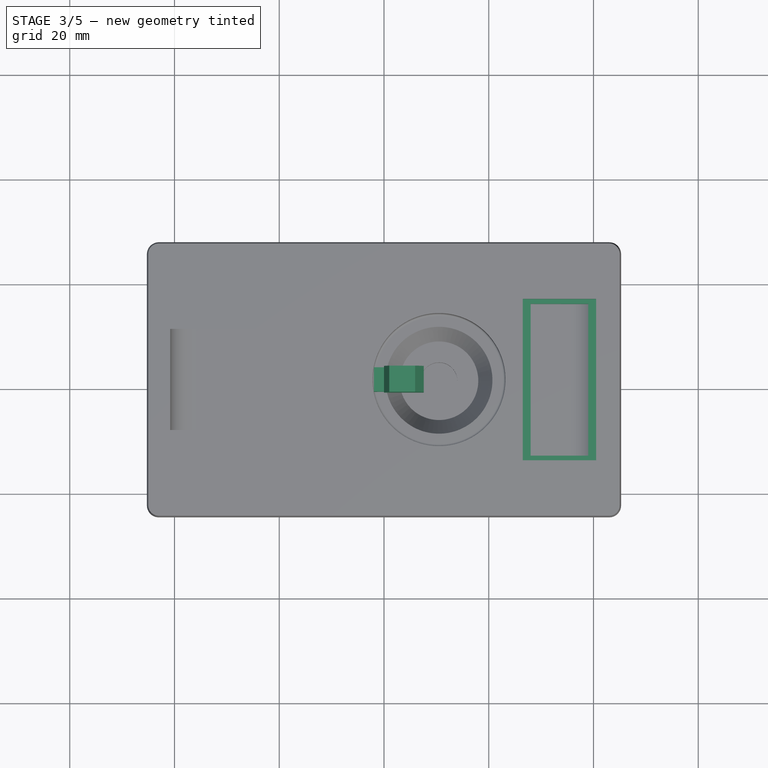
[diagram: stage 3 of 5 — top view after this stage's code; geometry added in this stage tinted green]
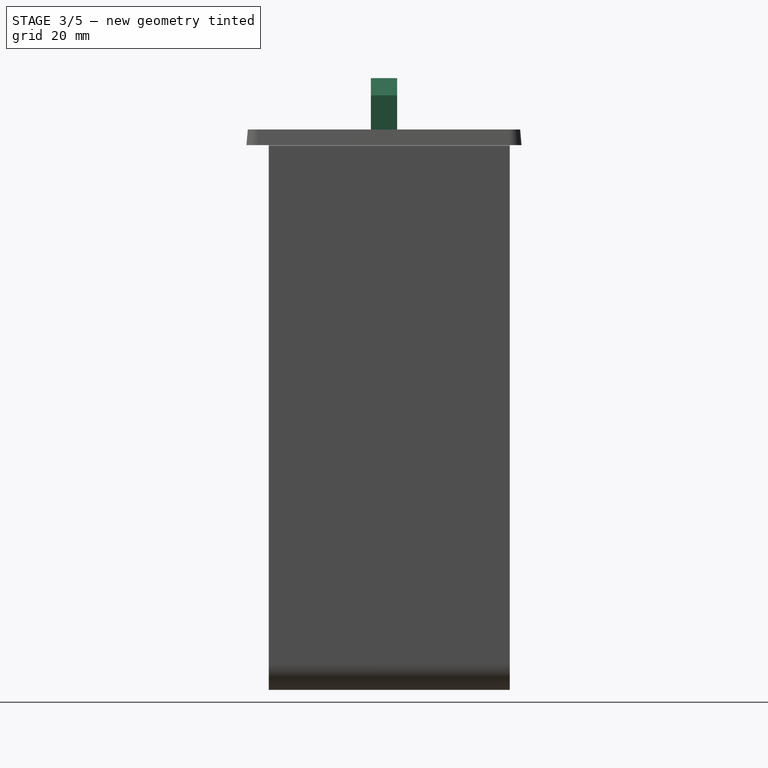
[diagram: stage 3 of 5 — right view after this stage's code; geometry added in this stage tinted green]
FEATURE [PartDesign::Body] Body003  label="Cap"
  AllowCompound = false
  Group = -> [Sketch009,Pad004,Sketch010,Pocket003,Fillet004]
  Origin = -> Origin004
  Placement = pos=(3.47752,0,6.9297) rot=(0,0,1;0rad)
  Tip = -> Fillet004
FEATURE [App::Part] Part001  label="Teminal Block 1 pin"
  Group = -> [Body001,Body002,Body003,Part002]
  Origin = -> Origin023
  Placement = pos=(0,0,0) rot=(0,0,1;3.14159rad)
FEATURE [Sketcher::SketchObject] Sketch013
  FullyConstrained = true
  MapMode = 5
  Placement = pos=(0,0,0) rot=(1,0,0;1.5708rad)
  sketch-geometry (3):
    g0: LineSegment StartX=0 StartY=0 StartZ=0 EndX=5.68 EndY=0 EndZ=0
    g1: LineSegment StartX=5.68 StartY=0 StartZ=0 EndX=5.68 EndY=-2.55 EndZ=0
    g2: LineSegment StartX=5.68 StartY=-2.55 StartZ=0 EndX=0.162763 EndY=-3.9 EndZ=0
  constraints (9):
    c: Coincident(g0,g-1)
    c: PointOnObject(g0,g-1)
    c: Coincident(g0,g1)
    c: Vertical(g1)
    c: Coincident(g1,g2)
    c: DistanceX(g0,g0) = 5.68
    c: DistanceY(g1,g1) = 2.55
    c: Distance(g2) = 5.68
    c: DistanceY(g2,g0) = 3.9
FEATURE [Sketcher::SketchObject] Sketch014
  AttachmentSupport = -> [XZ_Plane008]
  FullyConstrained = true
  MapMode = 5
  Placement = pos=(0,0,0) rot=(1,0,0;1.5708rad)
  sketch-geometry (6):
    g0: LineSegment StartX=0 StartY=0 StartZ=0 EndX=7.6 EndY=0 EndZ=0
    g1: LineSegment StartX=7.6 StartY=0 StartZ=0 EndX=7.6 EndY=6.5 EndZ=0
    g2: LineSegment StartX=0 StartY=6.5 StartZ=0 EndX=0 EndY=0 EndZ=0
    g3: LineSegment StartX=7.6 StartY=6.5 StartZ=0 EndX=5.95 EndY=9.8 EndZ=0
    g4: LineSegment StartX=5.95 StartY=9.8 StartZ=0 EndX=1 EndY=9.8 EndZ=0
    g5: LineSegment StartX=1 StartY=9.8 StartZ=0 EndX=0 EndY=6.5 EndZ=0
  constraints (17):
    c: Coincident(g0,g1)
    c: Coincident(g2,g0)
    c: Horizontal(g0)
    c: Vertical(g1)
    c: Vertical(g2)
    c: Coincident(g0,g-1)
    c: DistanceX(g0,g0) = 7.6
    c: Coincident(g1,g3)
    c: Coincident(g3,g4)
    c: Coincident(g4,g5)
    c: Coincident(g5,g2)
    c: Horizontal(g4)
    c: Equal(g2,g1)
    c: DistanceY(g2,g2) = 6.5
    c: DistanceY(g2,g4) = 3.3
    c: DistanceX(g4,g4) = 4.95
    c: DistanceX(g2,g4) = 1
FEATURE [PartDesign::Pad] Pad007
  AllowMultiFace = false
  Direction = (0,-1,2e-16)
  Length = 5
  Length2 = 100
  Midplane = true
  Placement = pos=(0,0,0) rot=(1,0,0;1.5708rad)
  Profile = -> Sketch014
  Refine = true
  Suppressed = false
  Type = 0
FEATURE [Sketcher::SketchObject] Sketch015
  AttachmentSupport = -> [Pad007]
  FullyConstrained = true
  MapMode = 5
  Placement = pos=(0,0,0) rot=(0.707107,0,-0.707107;3.14159rad)
  sketch-geometry (4):
    g0: LineSegment StartX=-1 StartY=0.5 StartZ=0 EndX=0 EndY=0.5 EndZ=0
    g1: LineSegment StartX=0 StartY=0.5 StartZ=0 EndX=0 EndY=-0.5 EndZ=0
    g2: LineSegment StartX=0 StartY=-0.5 StartZ=0 EndX=-1 EndY=-0.5 EndZ=0
    g3: LineSegment StartX=-1 StartY=-0.5 StartZ=0 EndX=-1 EndY=0.5 EndZ=0
  constraints (11):
    c: Coincident(g0,g1)
    c: Coincident(g1,g2)
    c: Coincident(g2,g3)
    c: Coincident(g3,g0)
    c: Horizontal(g0)
    c: Horizontal(g2)
    c: Vertical(g1)
    c: Vertical(g3)
    c: Symmetric(g0,g1,g-1)
    c: DistanceY(g1,g1) = 1
    c: DistanceX(g0,g0) = 1
FEATURE [PartDesign::Pocket] Pocket004
  AllowMultiFace = false
  BaseFeature = -> Pad007
  Direction = (1,0,2e-16)
  Length = 3.75
  Length2 = 100
  Placement = pos=(0,0,0) rot=(1,0,0;1.5708rad)
  Profile = -> Sketch015
  Refine = true
  Suppressed = false
  Type = 0
FEATURE [Sketcher::SketchObject] Sketch011
  AttachmentSupport = -> [Pocket004]
  ExternalGeometry = -> [Pocket004]
  FullyConstrained = true
  MapMode = 5
  Placement = pos=(0,0,0) rot=(0.707107,0,-0.707107;3.14159rad)
  sketch-geometry (4):
    g0: LineSegment StartX=-5.87 StartY=2 StartZ=0 EndX=-1 EndY=2 EndZ=0
    g1: LineSegment StartX=-1 StartY=2 StartZ=0 EndX=-1 EndY=-2 EndZ=0
    g2: LineSegment StartX=-1 StartY=-2 StartZ=0 EndX=-5.87 EndY=-2 EndZ=0
    g3: LineSegment StartX=-5.87 StartY=-2 StartZ=0 EndX=-5.87 EndY=2 EndZ=0
  constraints (11):
    c: Coincident(g0,g1)
    c: Coincident(g1,g2)
    c: Coincident(g2,g3)
    c: Coincident(g3,g0)
    c: Horizontal(g0)
    c: Horizontal(g2)
    c: Vertical(g3)
    c: Vertical(g-3,g0)
    c: Symmetric(g1,g0,g-1)
    c: DistanceY(g3,g3) = 4
    c: DistanceX(g0,g0) = 4.87
FEATURE [PartDesign::Pocket] Pocket005
  AllowMultiFace = false
  BaseFeature = -> Pocket004
  Direction = (1,0,2e-16)
  Length = 6.8
  Length2 = 100
  Placement = pos=(0,0,0) rot=(1,0,0;1.5708rad)
  Profile = -> Sketch011
  Refine = true
  Suppressed = false
  Type = 0
FEATURE [PartDesign::Body] Body004  label="Case001"
  AllowCompound = false
  Group = -> [Sketch014,Pad007,Sketch015,Pocket004,Sketch011,Pocket005,Sketch012,Pocket006]
  Origin = -> Origin009
  Tip = -> Pocket006
FEATURE [Sketcher::SketchObject] Sketch016
  AttachmentSupport = -> [XZ_Plane007]
  FullyConstrained = true
  MapMode = 5
  Placement = pos=(0,0,0) rot=(1,0,0;1.5708rad)
  sketch-geometry (8):
    g0: LineSegment StartX=-1.3 StartY=1.1 StartZ=0 EndX=1.3 EndY=1.1 EndZ=0
    g1: LineSegment StartX=1.3 StartY=1.1 StartZ=0 EndX=1.3 EndY=-1.7 EndZ=0
    g2: LineSegment StartX=1.3 StartY=-1.7 StartZ=0 EndX=-1.3 EndY=-1.7 EndZ=0
    g3: LineSegment StartX=-1.3 StartY=-1.7 StartZ=0 EndX=-1.3 EndY=1.1 EndZ=0
    g4: LineSegment StartX=-1.93 StartY=2.3 StartZ=0 EndX=1.93 EndY=2.3 EndZ=0
    g5: LineSegment StartX=1.93 StartY=2.3 StartZ=0 EndX=1.93 EndY=-2.3 EndZ=0
    g6: LineSegment StartX=1.93 StartY=-2.3 StartZ=0 EndX=-1.93 EndY=-2.3 EndZ=0
    g7: LineSegment StartX=-1.93 StartY=-2.3 StartZ=0 EndX=-1.93 EndY=2.3 EndZ=0
  constraints (22):
    c: Coincident(g0,g1)
    c: Coincident(g1,g2)
    c: Coincident(g2,g3)
    c: Coincident(g3,g0)
    c: Horizontal(g0)
    c: Vertical(g1)
    c: Vertical(g3)
    c: Coincident(g4,g5)
    c: Coincident(g5,g6)
    c: Coincident(g6,g7)
    c: Coincident(g7,g4)
    c: Horizontal(g4)
    c: Horizontal(g6)
    c: Vertical(g5)
    c: Vertical(g7)
    c: Symmetric(g4,g5,g-1)
    c: DistanceY(g5,g5) = 4.6
    c: DistanceX(g4,g4) = 3.86
    c: DistanceY(g5,g1) = 0.6
    c: DistanceX(g2,g2) = 2.6
    c: Symmetric(g1,g2,g-2)
    c: DistanceY(g3,g3) = 2.8
FEATURE [PartDesign::Pad] Pad005
  AllowMultiFace = false
  Direction = (0,-1,2e-16)
  Length = 4.6
  Length2 = 100
  Midplane = true
  Placement = pos=(0,0,0) rot=(1,0,0;1.5708rad)
  Profile = -> Sketch016
  Refine = true
  Suppressed = false
  Type = 0
FEATURE [Sketcher::SketchObject] Sketch017
  AttachmentSupport = -> [XY_Plane010]
  FullyConstrained = true
  MapMode = 5
  sketch-geometry (1):
    g0: Circle CenterX=0 CenterY=0 CenterZ=0 NormalX=0 NormalY=0 NormalZ=1 AngleXU=0 Radius=1.735
  constraints (2):
    c: Coincident(g0,g-1)
    c: Radius(g0) = 1.735
FEATURE [Sketcher::SketchObject] Sketch019
  AttachmentSupport = -> [Pad005]
  FullyConstrained = true
  MapMode = 5
  Placement = pos=(0,-5e-16,-2.3) rot=(1,0,0;3.14159rad)
  sketch-geometry (4):
    g0: LineSegment StartX=-0.3 StartY=0.5 StartZ=0 EndX=0.3 EndY=0.5 EndZ=0
    g1: LineSegment StartX=0.3 StartY=0.5 StartZ=0 EndX=0.3 EndY=-0.5 EndZ=0
    g2: LineSegment StartX=0.3 StartY=-0.5 StartZ=0 EndX=-0.3 EndY=-0.5 EndZ=0
    g3: LineSegment StartX=-0.3 StartY=-0.5 StartZ=0 EndX=-0.3 EndY=0.5 EndZ=0
  constraints (11):
    c: Coincident(g0,g1)
    c: Coincident(g1,g2)
    c: Coincident(g2,g3)
    c: Coincident(g3,g0)
    c: Horizontal(g0)
    c: Horizontal(g2)
    c: Vertical(g1)
    c: Vertical(g3)
    c: Symmetric(g1,g0,g-1)
    c: DistanceY(g1,g1) = 1
    c: DistanceX(g0,g0) = 0.6
FEATURE [PartDesign::Pad] Pad006
  AllowMultiFace = false
  BaseFeature = -> Pad005
  Direction = (0,0,-1)
  Length = 4.7
  Length2 = 100
  Placement = pos=(0,0,0) rot=(1,0,0;1.5708rad)
  Profile = -> Sketch019
  Refine = true
  Suppressed = false
  Type = 0
FEATURE [PartDesign::Draft] Draft001
  Angle = 2
  Base = -> Pad006 [Face14,Face12]
  BaseFeature = -> Pad006
  NeutralPlane = -> Pad006 [Face6]
  Placement = pos=(0,0,0) rot=(1,0,0;1.5708rad)
  SupportTransform = false
  Suppressed = false
FEATURE [PartDesign::Body] Body005  label="Leg001"
  AllowCompound = false
  Group = -> [Sketch016,Pad005,Sketch019,Pad006,Draft001,Fillet005,Fillet006,Fillet007]
  Origin = -> Origin008
  Placement = pos=(3.2,-1e-15,3.3) rot=(0,0,-1;1.5708rad)
  Tip = -> Fillet007
FEATURE [Part::FeaturePython] BaseBend001  label="Spring002"  # WARN: FeaturePython — macro-defined, semantics opaque (R4)
  BendSide = 2
  BendSketch = -> Sketch013
  MidPlane = false
  Placement = pos=(0,-1.25,5.8) rot=(0,0,1;0rad)
  Reverse = false
  length = 2.5
  radius = 0.1
  thickness = 0.1
FEATURE [Part::FeaturePython] Extend003  # WARN: FeaturePython — macro-defined, semantics opaque (R4)
  baseObject = -> BaseBend001 [Edge42]
  gap1 = 1
  gap2 = 0
  length = 0.75
FEATURE [Part::FeaturePython] Extend002  # WARN: FeaturePython — macro-defined, semantics opaque (R4)
  baseObject = -> Extend003 [Edge21]
  gap1 = 1
  gap2 = 0
  length = 0.75
FEATURE [Part::Chamfer] Chamfer001
  Base = -> Extend002
  EdgeLinks = -> Extend002 [Edge2,Edge8,Edge39,Edge45]
  Edges = 4 edges r=0.6: [Edge2,Edge8,Edge39,Edge45]
FEATURE [App::Part] Part005  label="Part004"
  Group = -> [Sketch013,BaseBend001,Extend003,Extend002,Chamfer001]
  Origin = -> Origin011
  Placement = pos=(6,-7e-16,0) rot=(0,0,1;3.14159rad)
FEATURE [PartDesign::Pad] Pad008
  AllowMultiFace = false
  Direction = (0,0,1)
  Length = 1.5
  Length2 = 100
  Profile = -> Sketch017
  Refine = true
  Suppressed = false
  Type = 0
FEATURE [Sketcher::SketchObject] Sketch018
  AttachmentSupport = -> [Pad008]
  FullyConstrained = true
  MapMode = 5
  Placement = pos=(0,0,1.5) rot=(0,0,1;0rad)
  sketch-geometry (4):
    g0: LineSegment StartX=-0.35 StartY=2 StartZ=0 EndX=0.35 EndY=2 EndZ=0
    g1: LineSegment StartX=0.35 StartY=2 StartZ=0 EndX=0.35 EndY=-2 EndZ=0
    g2: LineSegment StartX=0.35 StartY=-2 StartZ=0 EndX=-0.35 EndY=-2 EndZ=0
    g3: LineSegment StartX=-0.35 StartY=-2 StartZ=0 EndX=-0.35 EndY=2 EndZ=0
  constraints (11):
    c: Coincident(g0,g1)
    c: Coincident(g1,g2)
    c: Coincident(g2,g3)
    c: Coincident(g3,g0)
    c: Horizontal(g0)
    c: Horizontal(g2)
    c: Vertical(g1)
    c: Vertical(g3)
    c: Symmetric(g1,g0,g-1)
    c: DistanceX(g0,g0) = 0.7
    c: DistanceY(g1,g1) = 4
FEATURE [PartDesign::Pocket] Pocket007
  AllowMultiFace = false
  BaseFeature = -> Pad008
  Direction = (0,0,-1)
  Length = 0.9
  Length2 = 100
  Profile = -> Sketch018
  Refine = true
  Suppressed = false
  Type = 0
FEATURE [PartDesign::Fillet] Fillet008
  Base = -> Pocket007 [Edge3,Edge7]
  BaseFeature = -> Pocket007
  Radius = 0.3
  SupportTransform = false
  Suppressed = false
  UseAllEdges = false
FEATURE [PartDesign::Pocket] Pocket022  label="Display visible area"
  BaseFeature = -> Pocket012
  Direction = (0,0,-1)
  Length = 5
  Length2 = 5
  Midplane = true
  Profile = -> Sketch072
  ReferenceAxis = -> Sketch072 [N_Axis]
  Suppressed = false
  Type = 1
FEATURE [PartDesign::Pad] Pad  label="Toggle switch support"
  BaseFeature = -> Pocket022
  Direction = (1,1e-16,-1e-16)
  Length = 15
  Length2 = 10
  Midplane = true
  Profile = -> Sketch
  ReferenceAxis = -> Sketch [N_Axis]
  Suppressed = false
  Type = 0
FEATURE [PartDesign::Pocket] Pocket  label="Toggle switch front pocket"
  BaseFeature = -> Pad
  Direction = (-1,-1e-16,1e-16)
  Length = 14
  Length2 = 5
  Midplane = true
  Profile = -> Sketch058
  ReferenceAxis = -> Sketch058 [N_Axis]
  Suppressed = false
  Type = 0
FEATURE [PartDesign::Pocket] Pocket021  label="Toggle switch pocket"
  BaseFeature = -> Pocket
  Direction = (-1,-1e-16,1e-16)
  Length = 11
  Length2 = 5
  Midplane = true
  Profile = -> Sketch059
  ReferenceAxis = -> Sketch059 [N_Axis]
  Refine = true
  Suppressed = false
  Type = 0
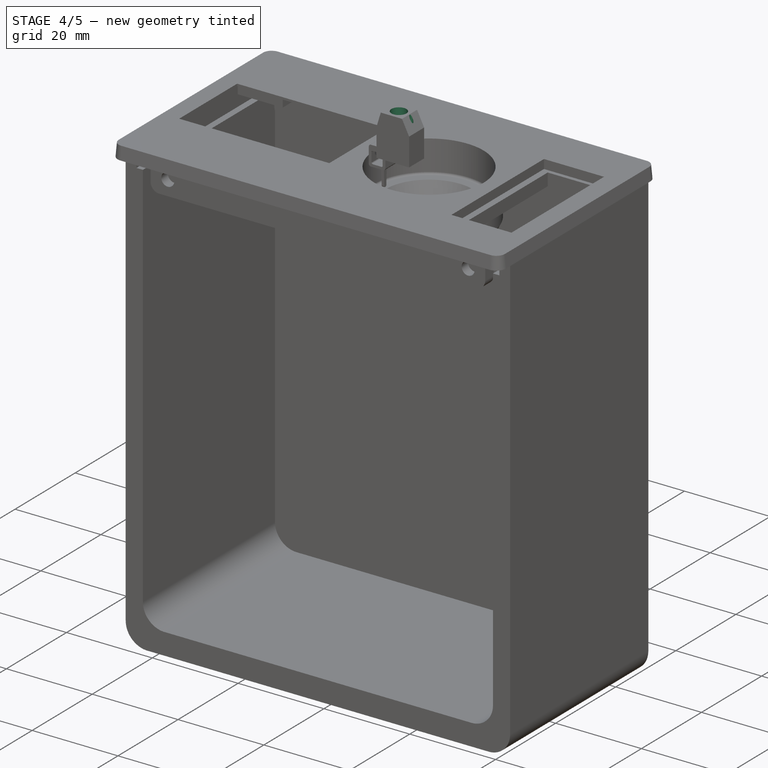
[diagram: stage 4 of 5 — iso view after this stage's code; geometry added in this stage tinted green]
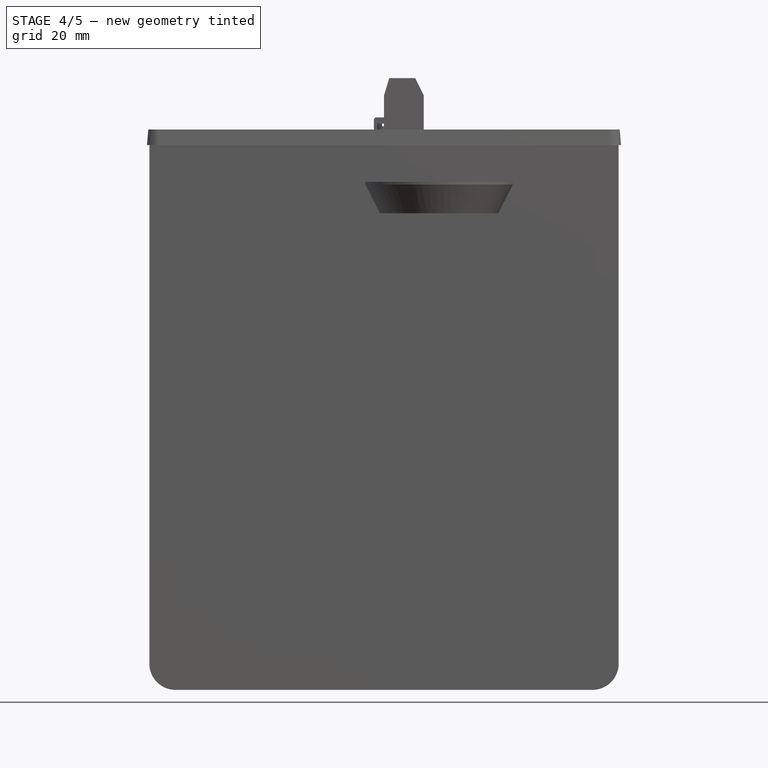
[diagram: stage 4 of 5 — front view after this stage's code; geometry added in this stage tinted green]
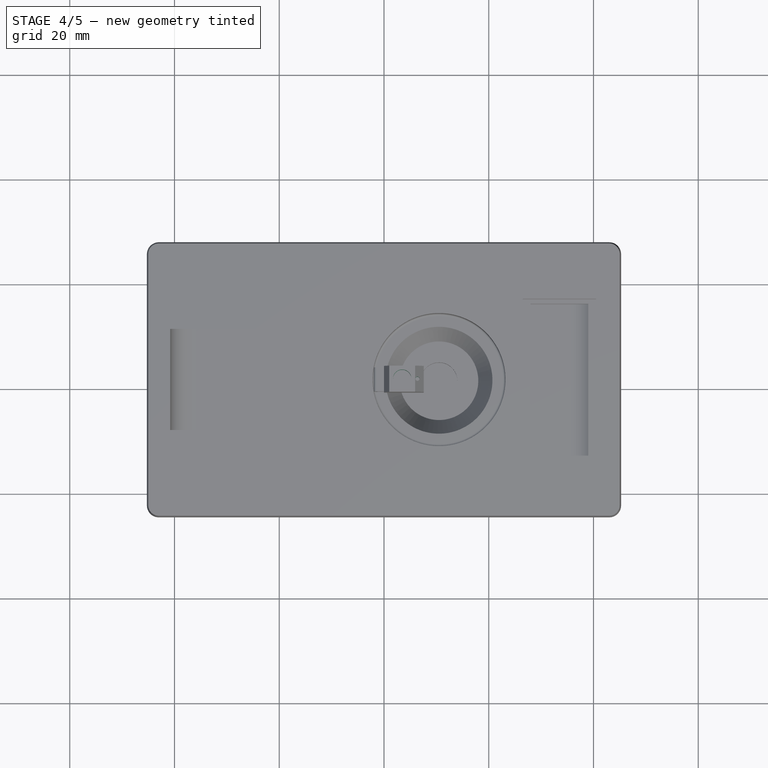
[diagram: stage 4 of 5 — top view after this stage's code; geometry added in this stage tinted green]
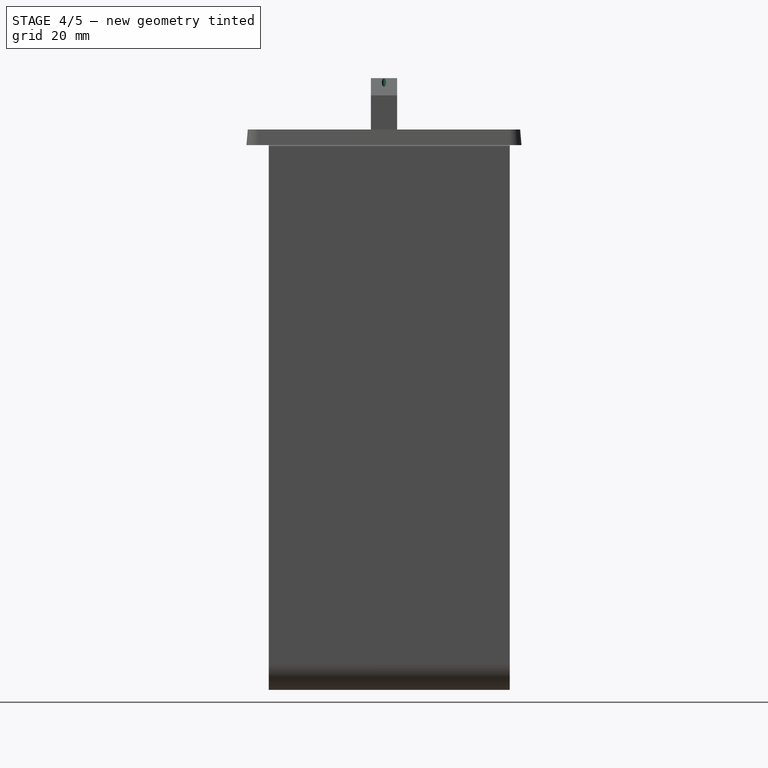
[diagram: stage 4 of 5 — right view after this stage's code; geometry added in this stage tinted green]
FEATURE [PartDesign::Body] Body001  label="Case"
  AllowCompound = false
  Group = -> [Sketch038,Pad001,Sketch039,Pocket015,Sketch040,Pocket001,Sketch005,Pocket002]
  Origin = -> Origin024
  Tip = -> Pocket002
FEATURE [Sketcher::SketchObject] Sketch006
  AttachmentSupport = -> [XZ_Plane003]
  FullyConstrained = true
  MapMode = 5
  Placement = pos=(0,0,0) rot=(1,0,0;1.5708rad)
  sketch-geometry (8):
    g0: LineSegment StartX=-1.3 StartY=1.1 StartZ=0 EndX=1.3 EndY=1.1 EndZ=0
    g1: LineSegment StartX=1.3 StartY=1.1 StartZ=0 EndX=1.3 EndY=-1.7 EndZ=0
    g2: LineSegment StartX=1.3 StartY=-1.7 StartZ=0 EndX=-1.3 EndY=-1.7 EndZ=0
    g3: LineSegment StartX=-1.3 StartY=-1.7 StartZ=0 EndX=-1.3 EndY=1.1 EndZ=0
    g4: LineSegment StartX=-1.93 StartY=2.3 StartZ=0 EndX=1.93 EndY=2.3 EndZ=0
    g5: LineSegment StartX=1.93 StartY=2.3 StartZ=0 EndX=1.93 EndY=-2.3 EndZ=0
    g6: LineSegment StartX=1.93 StartY=-2.3 StartZ=0 EndX=-1.93 EndY=-2.3 EndZ=0
    g7: LineSegment StartX=-1.93 StartY=-2.3 StartZ=0 EndX=-1.93 EndY=2.3 EndZ=0
  constraints (22):
    c: Coincident(g0,g1)
    c: Coincident(g1,g2)
    c: Coincident(g2,g3)
    c: Coincident(g3,g0)
    c: Horizontal(g0)
    c: Vertical(g1)
    c: Vertical(g3)
    c: Coincident(g4,g5)
    c: Coincident(g5,g6)
    c: Coincident(g6,g7)
    c: Coincident(g7,g4)
    c: Horizontal(g4)
    c: Horizontal(g6)
    c: Vertical(g5)
    c: Vertical(g7)
    c: Symmetric(g4,g5,g-1)
    c: DistanceY(g5,g5) = 4.6
    c: DistanceX(g4,g4) = 3.86
    c: DistanceY(g5,g1) = 0.6
    c: DistanceX(g2,g2) = 2.6
    c: Symmetric(g1,g2,g-2)
    c: DistanceY(g3,g3) = 2.8
FEATURE [PartDesign::Pad] Pad002
  AllowMultiFace = false
  Direction = (0,-1,2e-16)
  Length = 4.6
  Length2 = 100
  Midplane = true
  Placement = pos=(0,0,0) rot=(1,0,0;1.5708rad)
  Profile = -> Sketch006
  Refine = true
  Suppressed = false
  Type = 0
FEATURE [Sketcher::SketchObject] Sketch007
  AttachmentSupport = -> [Pad002]
  FullyConstrained = true
  MapMode = 5
  Placement = pos=(0,-5e-16,-2.3) rot=(1,0,0;3.14159rad)
  sketch-geometry (4):
    g0: LineSegment StartX=-0.3 StartY=0.5 StartZ=0 EndX=0.3 EndY=0.5 EndZ=0
    g1: LineSegment StartX=0.3 StartY=0.5 StartZ=0 EndX=0.3 EndY=-0.5 EndZ=0
    g2: LineSegment StartX=0.3 StartY=-0.5 StartZ=0 EndX=-0.3 EndY=-0.5 EndZ=0
    g3: LineSegment StartX=-0.3 StartY=-0.5 StartZ=0 EndX=-0.3 EndY=0.5 EndZ=0
  constraints (11):
    c: Coincident(g0,g1)
    c: Coincident(g1,g2)
    c: Coincident(g2,g3)
    c: Coincident(g3,g0)
    c: Horizontal(g0)
    c: Horizontal(g2)
    c: Vertical(g1)
    c: Vertical(g3)
    c: Symmetric(g1,g0,g-1)
    c: DistanceY(g1,g1) = 1
    c: DistanceX(g0,g0) = 0.6
FEATURE [PartDesign::Pad] Pad003
  AllowMultiFace = false
  BaseFeature = -> Pad002
  Direction = (0,0,-1)
  Length = 4.7
  Length2 = 100
  Placement = pos=(0,0,0) rot=(1,0,0;1.5708rad)
  Profile = -> Sketch007
  Refine = true
  Suppressed = false
  Type = 0
FEATURE [PartDesign::Draft] Draft
  Angle = 2
  Base = -> Pad003 [Face14,Face12]
  BaseFeature = -> Pad003
  NeutralPlane = -> Pad003 [Face6]
  Placement = pos=(0,0,0) rot=(1,0,0;1.5708rad)
  SupportTransform = false
  Suppressed = false
FEATURE [PartDesign::Fillet] Fillet001
  Base = -> Draft [Edge36,Edge33]
  BaseFeature = -> Draft
  Placement = pos=(0,0,0) rot=(1,0,0;1.5708rad)
  Radius = 0.3
  SupportTransform = false
  Suppressed = false
  UseAllEdges = false
FEATURE [PartDesign::Fillet] Fillet002
  Base = -> Fillet001 [Edge12,Edge23,Edge38,Edge15]
  BaseFeature = -> Fillet001
  Placement = pos=(0,0,0) rot=(1,0,0;1.5708rad)
  Radius = 0.5
  SupportTransform = false
  Suppressed = false
  UseAllEdges = false
FEATURE [PartDesign::Body] Body002  label="Leg"
  AllowCompound = false
  Group = -> [Sketch006,Pad002,Sketch007,Pad003,Draft,Fillet001,Fillet002,Fillet003]
  Origin = -> Origin003
  Placement = pos=(3.2,-1e-15,3.3) rot=(0,0,-1;1.5708rad)
  Tip = -> Fillet003
FEATURE [Sketcher::SketchObject] Sketch008
  FullyConstrained = true
  MapMode = 5
  Placement = pos=(0,0,0) rot=(1,0,0;1.5708rad)
  sketch-geometry (3):
    g0: LineSegment StartX=0 StartY=0 StartZ=0 EndX=5.68 EndY=0 EndZ=0
    g1: LineSegment StartX=5.68 StartY=0 StartZ=0 EndX=5.68 EndY=-2.55 EndZ=0
    g2: LineSegment StartX=5.68 StartY=-2.55 StartZ=0 EndX=0.162763 EndY=-3.9 EndZ=0
  constraints (9):
    c: Coincident(g0,g-1)
    c: PointOnObject(g0,g-1)
    c: Coincident(g0,g1)
    c: Vertical(g1)
    c: Coincident(g1,g2)
    c: DistanceX(g0,g0) = 5.68
    c: DistanceY(g1,g1) = 2.55
    c: Distance(g2) = 5.68
    c: DistanceY(g2,g0) = 3.9
FEATURE [Part::FeaturePython] BaseBend  label="Spring001"  # WARN: FeaturePython — macro-defined, semantics opaque (R4)
  BendSide = 2
  BendSketch = -> Sketch008
  MidPlane = false
  Placement = pos=(0,-1.25,5.8) rot=(0,0,1;0rad)
  Reverse = false
  length = 2.5
  radius = 0.1
  thickness = 0.1
FEATURE [Part::FeaturePython] Extend  # WARN: FeaturePython — macro-defined, semantics opaque (R4)
  baseObject = -> BaseBend [Edge42]
  gap1 = 1
  gap2 = 0
  length = 0.75
FEATURE [Part::FeaturePython] Extend001  # WARN: FeaturePython — macro-defined, semantics opaque (R4)
  baseObject = -> Extend [Edge21]
  gap1 = 1
  gap2 = 0
  length = 0.75
FEATURE [Part::Chamfer] Chamfer
  Base = -> Extend001
  EdgeLinks = -> Extend001 [Edge2,Edge8,Edge39,Edge45]
  Edges = 4 edges r=0.6: [Edge2,Edge8,Edge39,Edge45]
FEATURE [App::Part] Part002  label="Part001"
  Group = -> [Sketch008,BaseBend,Extend,Extend001,Chamfer]
  Origin = -> Origin005
  Placement = pos=(6,-7e-16,0) rot=(0,0,1;3.14159rad)
FEATURE [Sketcher::SketchObject] Sketch009
  AttachmentSupport = -> [XY_Plane004]
  FullyConstrained = true
  MapMode = 5
  sketch-geometry (1):
    g0: Circle CenterX=0 CenterY=0 CenterZ=0 NormalX=0 NormalY=0 NormalZ=1 AngleXU=0 Radius=1.735
  constraints (2):
    c: Coincident(g0,g-1)
    c: Radius(g0) = 1.735
FEATURE [PartDesign::Pad] Pad004
  AllowMultiFace = false
  Direction = (0,0,1)
  Length = 1.5
  Length2 = 100
  Profile = -> Sketch009
  Refine = true
  Suppressed = false
  Type = 0
FEATURE [Sketcher::SketchObject] Sketch010
  AttachmentSupport = -> [Pad004]
  FullyConstrained = true
  MapMode = 5
  Placement = pos=(0,0,1.5) rot=(0,0,1;0rad)
  sketch-geometry (4):
    g0: LineSegment StartX=-0.35 StartY=2 StartZ=0 EndX=0.35 EndY=2 EndZ=0
    g1: LineSegment StartX=0.35 StartY=2 StartZ=0 EndX=0.35 EndY=-2 EndZ=0
    g2: LineSegment StartX=0.35 StartY=-2 StartZ=0 EndX=-0.35 EndY=-2 EndZ=0
    g3: LineSegment StartX=-0.35 StartY=-2 StartZ=0 EndX=-0.35 EndY=2 EndZ=0
  constraints (11):
    c: Coincident(g0,g1)
    c: Coincident(g1,g2)
    c: Coincident(g2,g3)
    c: Coincident(g3,g0)
    c: Horizontal(g0)
    c: Horizontal(g2)
    c: Vertical(g1)
    c: Vertical(g3)
    c: Symmetric(g1,g0,g-1)
    c: DistanceX(g0,g0) = 0.7
    c: DistanceY(g1,g1) = 4
FEATURE [PartDesign::Pocket] Pocket003
  AllowMultiFace = false
  BaseFeature = -> Pad004
  Direction = (0,0,-1)
  Length = 0.9
  Length2 = 100
  Profile = -> Sketch010
  Refine = true
  Suppressed = false
  Type = 0
FEATURE [PartDesign::Fillet] Fillet004
  Base = -> Pocket003 [Edge3,Edge7]
  BaseFeature = -> Pocket003
  Radius = 0.3
  SupportTransform = false
  Suppressed = false
  UseAllEdges = false
FEATURE [Sketcher::SketchObject] Sketch012
  AttachmentSupport = -> [Pocket005]
  ExternalGeometry = -> [Pocket005]
  FullyConstrained = true
  MapMode = 5
  Placement = pos=(0,2.2e-15,9.8) rot=(0,0,1;3.14159rad)
  sketch-geometry (2):
    g0: Circle CenterX=-3.475 CenterY=0 CenterZ=0 NormalX=0 NormalY=0 NormalZ=1 AngleXU=0 Radius=1.75
    g1: Circle CenterX=-6.375 CenterY=0 CenterZ=0 NormalX=0 NormalY=0 NormalZ=1 AngleXU=0 Radius=0.4
  constraints (5):
    c: Radius(g0) = 1.75
    c: Symmetric(g-3,g-4,g0)
    c: PointOnObject(g1,g-1)
    c: DistanceX(g1,g0) = 2.9
    c: Radius(g1) = 0.4
FEATURE [PartDesign::Pocket] Pocket006
  AllowMultiFace = false
  BaseFeature = -> Pocket005
  Direction = (0,0,-1)
  Length = 5
  Length2 = 100
  Placement = pos=(0,0,0) rot=(1,0,0;1.5708rad)
  Profile = -> Sketch012
  Refine = true
  Suppressed = false
  Type = 0
FEATURE [PartDesign::Fillet] Fillet005
  Base = -> Draft001 [Edge36,Edge33]
  BaseFeature = -> Draft001
  Placement = pos=(0,0,0) rot=(1,0,0;1.5708rad)
  Radius = 0.3
  SupportTransform = false
  Suppressed = false
  UseAllEdges = false
FEATURE [PartDesign::Fillet] Fillet006
  Base = -> Fillet005 [Edge12,Edge23,Edge38,Edge15]
  BaseFeature = -> Fillet005
  Placement = pos=(0,0,0) rot=(1,0,0;1.5708rad)
  Radius = 0.5
  SupportTransform = false
  Suppressed = false
  UseAllEdges = false
FEATURE [PartDesign::Fillet] Fillet007
  Base = -> Fillet006 [Edge51,Edge52,Edge50,Edge49]
  BaseFeature = -> Fillet006
  Placement = pos=(0,0,0) rot=(1,0,0;1.5708rad)
  Radius = 0.3
  SupportTransform = false
  Suppressed = false
  UseAllEdges = false
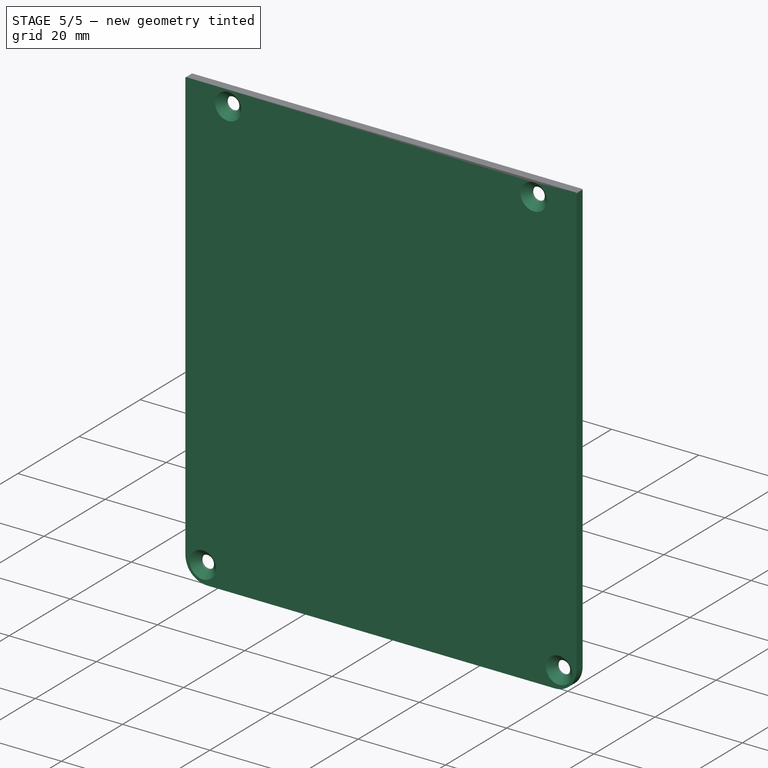
[diagram: stage 5 of 5 — iso view after this stage's code; geometry added in this stage tinted green]
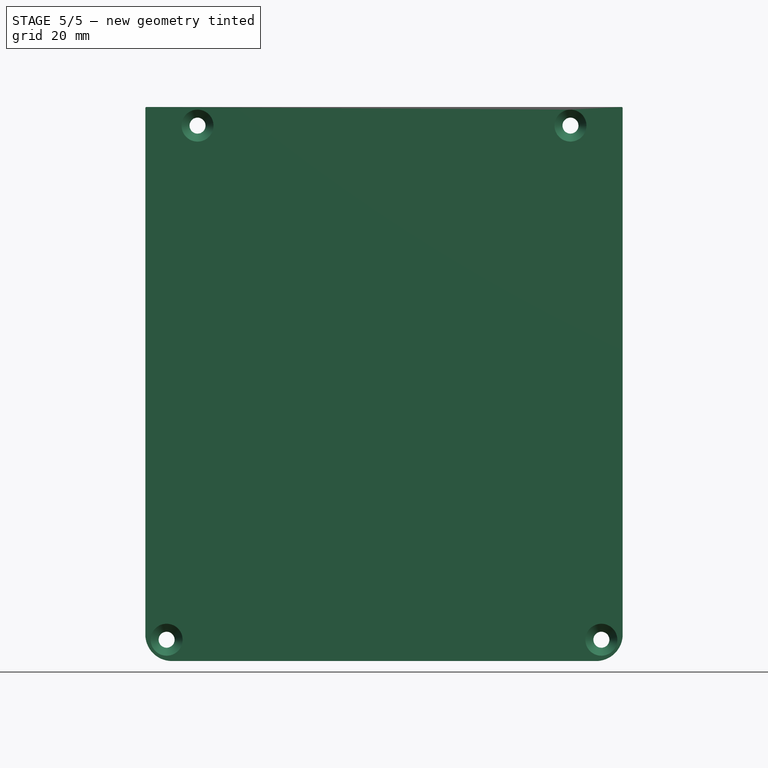
[diagram: stage 5 of 5 — front view after this stage's code; geometry added in this stage tinted green]
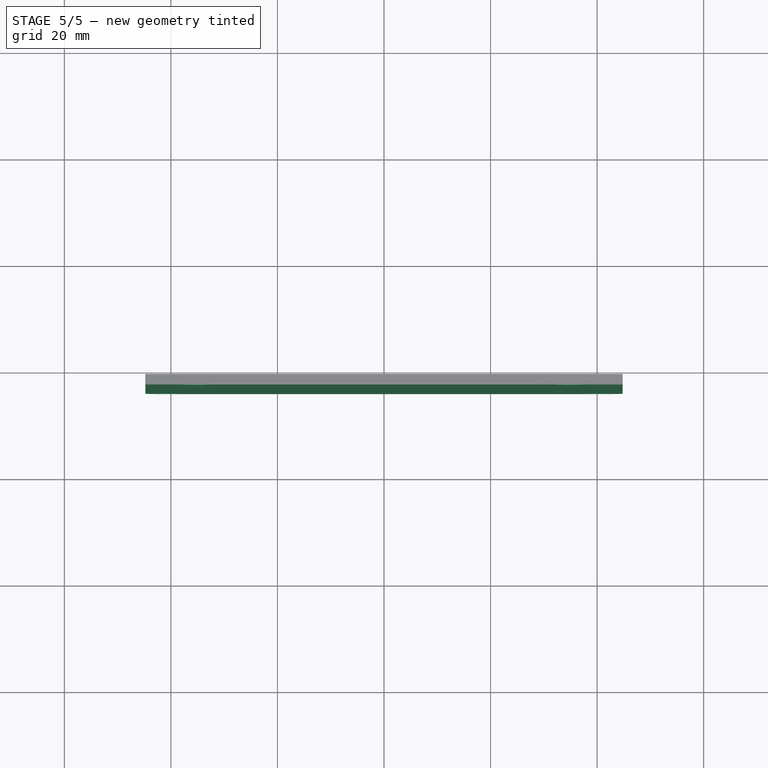
[diagram: stage 5 of 5 — top view after this stage's code; geometry added in this stage tinted green]
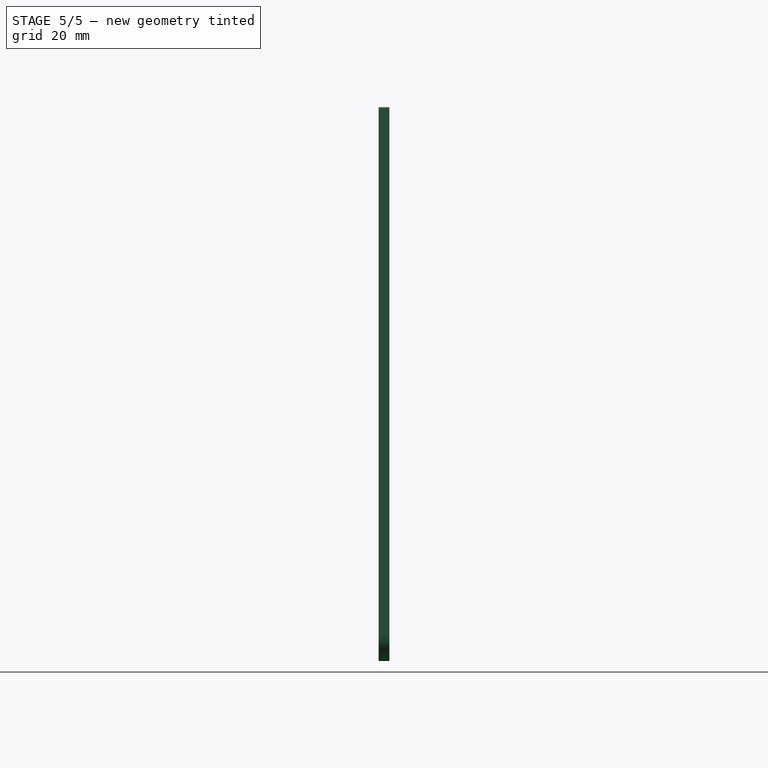
[diagram: stage 5 of 5 — right view after this stage's code; geometry added in this stage tinted green]
FEATURE [Sketcher::SketchObject] Sketch037  label="PCB sketch"
  AttachmentSupport = -> [XY_Plane022]
  FullyConstrained = true
  MapMode = 5
  sketch-geometry (10):
    g0: LineSegment StartX=31.5 StartY=-26 StartZ=0 EndX=31.5 EndY=26 EndZ=0
    g1: LineSegment StartX=28.5 StartY=29 StartZ=0 EndX=-28.5 EndY=29 EndZ=0
    g2: LineSegment StartX=-31.5 StartY=26 StartZ=0 EndX=-31.5 EndY=-26 EndZ=0
    g3: LineSegment StartX=-28.5 StartY=-29 StartZ=0 EndX=28.5 EndY=-29 EndZ=0
    g4: ArcOfCircle CenterX=28.5 CenterY=-26 CenterZ=0 NormalX=0 NormalY=0 NormalZ=1 AngleXU=0 Radius=3 StartAngle=4.71239 EndAngle=6.28319
    g5: ArcOfCircle CenterX=28.5 CenterY=26 CenterZ=0 NormalX=0 NormalY=0 NormalZ=1 AngleXU=0 Radius=3 StartAngle=-9e-16 EndAngle=1.5708
    g6: ArcOfCircle CenterX=-28.5 CenterY=26 CenterZ=0 NormalX=0 NormalY=0 NormalZ=1 AngleXU=0 Radius=3 StartAngle=1.5708 EndAngle=3.14159
    g7: ArcOfCircle CenterX=-28.5 CenterY=-26 CenterZ=0 NormalX=0 NormalY=0 NormalZ=1 AngleXU=0 Radius=3 StartAngle=3.14159 EndAngle=4.71239
    g8: GeomPoint X=31.5 Y=-29 Z=0
    g9: GeomPoint X=-31.5 Y=29 Z=0
  constraints (23):
    c: Tangent(g0,g4) = -1.5708
    c: Tangent(g0,g5) = -1.5708
    c: Tangent(g1,g5) = -1.5708
    c: Tangent(g1,g6) = -1.5708
    c: Tangent(g2,g6) = -1.5708
    c: Tangent(g2,g7) = -1.5708
    c: Tangent(g3,g7) = -1.5708
    c: Tangent(g3,g4) = -1.5708
    c: Vertical(g0)
    c: Vertical(g2)
    c: Horizontal(g1)
    c: Horizontal(g3)
    c: Equal(g4,g5)
    c: Equal(g5,g6)
    c: Equal(g6,g7)
    c: PointOnObject(g8,g0)
    c: PointOnObject(g8,g3)
    c: PointOnObject(g9,g1)
    c: PointOnObject(g9,g2)
    c: Radius(g4) = 3
    c: Symmetric(g4,g6,g-1)
    c: DistanceX(g2,g0) = 63
    c: DistanceY(g3,g1) = 58
FEATURE [Sketcher::SketchObject] Sketch001  label="Mounting holes sketch"
  AttachmentSupport = -> [XY_Plane022]
  FullyConstrained = true
  MapMode = 5
  sketch-geometry (6):
    g0: Circle CenterX=28.3 CenterY=25.75 CenterZ=0 NormalX=0 NormalY=0 NormalZ=1 AngleXU=0 Radius=1.65
    g1: Circle CenterX=28.3 CenterY=1.75 CenterZ=0 NormalX=0 NormalY=0 NormalZ=1 AngleXU=0 Radius=1.65
    g2: Circle CenterX=28.3 CenterY=-25.75 CenterZ=0 NormalX=0 NormalY=0 NormalZ=1 AngleXU=0 Radius=1.65
    g3: Circle CenterX=-28.3 CenterY=-25.75 CenterZ=0 NormalX=0 NormalY=0 NormalZ=1 AngleXU=0 Radius=1.65
    g4: Circle CenterX=-28.3 CenterY=1.75 CenterZ=0 NormalX=0 NormalY=0 NormalZ=1 AngleXU=0 Radius=1.65
    g5: Circle CenterX=-28.3 CenterY=25.75 CenterZ=0 NormalX=0 NormalY=0 NormalZ=1 AngleXU=0 Radius=1.65
  constraints (14):
    c: Equal(g0,g5)
    c: Equal(g5,g4)
    c: Equal(g4,g1)
    c: Equal(g1,g2)
    c: Equal(g2,g3)
    c: Symmetric(g0,g5,g-2)
    c: DistanceY(g2,g1) = 27.5
    c: Diameter(g2) = 3.3
    c: DistanceX(g3,g2) = 56.6
    c: Symmetric(g2,g3,g-2)
    c: DistanceY(g1,g0) = 24
    c: Symmetric(g2,g0,g-1)
    c: Symmetric(g4,g1,g-2)
    c: Vertical(g1,g0)
FEATURE [PartDesign::Pad] Pad015
  Direction = (0,0,1)
  Length = 1.6
  Length2 = 10
  Profile = -> Sketch037
  ReferenceAxis = -> Sketch037 [N_Axis]
  Suppressed = false
  Type = 0
FEATURE [PartDesign::Hole] Hole002
  BaseFeature = -> Pad015
  CustomThreadClearance = 0
  Depth = 25
  DepthType = 0
  Diameter = 3.3
  DrillForDepth = false
  DrillPoint = 1
  DrillPointAngle = 118
  HoleCutCountersinkAngle = 90
  HoleCutCustomValues = false
  HoleCutDepth = 0
  HoleCutDiameter = 6.1
  HoleCutType = 0
  ModelThread = false
  Profile = -> Sketch001
  Reversed = true
  Suppressed = false
  Tapered = false
  TaperedAngle = 90
  ThreadClass = 0
  ThreadDepth = 25
  ThreadDepthType = 0
  ThreadDirection = 0
  ThreadFit = 0
  ThreadSize = 0
  ThreadType = 0
  Threaded = false
  UseCustomThreadClearance = false
FEATURE [PartDesign::Body] Body010  label="PCB001"
  AllowCompound = false
  Group = -> [Sketch037,Sketch001,Pad015,Hole002]
  Origin = -> Origin022
  Tip = -> Hole002
FEATURE [Sketcher::SketchObject] Sketch038
  AttachmentSupport = -> [XZ_Plane024]
  FullyConstrained = true
  MapMode = 5
  Placement = pos=(0,0,0) rot=(1,0,0;1.5708rad)
  sketch-geometry (6):
    g0: LineSegment StartX=0 StartY=0 StartZ=0 EndX=7.6 EndY=0 EndZ=0
    g1: LineSegment StartX=7.6 StartY=0 StartZ=0 EndX=7.6 EndY=6.5 EndZ=0
    g2: LineSegment StartX=0 StartY=6.5 StartZ=0 EndX=0 EndY=0 EndZ=0
    g3: LineSegment StartX=7.6 StartY=6.5 StartZ=0 EndX=5.95 EndY=9.8 EndZ=0
    g4: LineSegment StartX=5.95 StartY=9.8 StartZ=0 EndX=1 EndY=9.8 EndZ=0
    g5: LineSegment StartX=1 StartY=9.8 StartZ=0 EndX=0 EndY=6.5 EndZ=0
  constraints (17):
    c: Coincident(g0,g1)
    c: Coincident(g2,g0)
    c: Horizontal(g0)
    c: Vertical(g1)
    c: Vertical(g2)
    c: Coincident(g0,g-1)
    c: DistanceX(g0,g0) = 7.6
    c: Coincident(g1,g3)
    c: Coincident(g3,g4)
    c: Coincident(g4,g5)
    c: Coincident(g5,g2)
    c: Horizontal(g4)
    c: Equal(g2,g1)
    c: DistanceY(g2,g2) = 6.5
    c: DistanceY(g2,g4) = 3.3
    c: DistanceX(g4,g4) = 4.95
    c: DistanceX(g2,g4) = 1
FEATURE [PartDesign::Pad] Pad001
  AllowMultiFace = false
  Direction = (0,-1,2e-16)
  Length = 5
  Length2 = 100
  Midplane = true
  Placement = pos=(0,0,0) rot=(1,0,0;1.5708rad)
  Profile = -> Sketch038
  Refine = true
  Suppressed = false
  Type = 0
FEATURE [Sketcher::SketchObject] Sketch039
  AttachmentSupport = -> [Pad001]
  FullyConstrained = true
  MapMode = 5
  Placement = pos=(0,0,0) rot=(0.707107,0,-0.707107;3.14159rad)
  sketch-geometry (4):
    g0: LineSegment StartX=-1 StartY=0.5 StartZ=0 EndX=0 EndY=0.5 EndZ=0
    g1: LineSegment StartX=0 StartY=0.5 StartZ=0 EndX=0 EndY=-0.5 EndZ=0
    g2: LineSegment StartX=0 StartY=-0.5 StartZ=0 EndX=-1 EndY=-0.5 EndZ=0
    g3: LineSegment StartX=-1 StartY=-0.5 StartZ=0 EndX=-1 EndY=0.5 EndZ=0
  constraints (11):
    c: Coincident(g0,g1)
    c: Coincident(g1,g2)
    c: Coincident(g2,g3)
    c: Coincident(g3,g0)
    c: Horizontal(g0)
    c: Horizontal(g2)
    c: Vertical(g1)
    c: Vertical(g3)
    c: Symmetric(g0,g1,g-1)
    c: DistanceY(g1,g1) = 1
    c: DistanceX(g0,g0) = 1
FEATURE [PartDesign::Pocket] Pocket015
  AllowMultiFace = false
  BaseFeature = -> Pad001
  Direction = (1,0,2e-16)
  Length = 3.75
  Length2 = 100
  Placement = pos=(0,0,0) rot=(1,0,0;1.5708rad)
  Profile = -> Sketch039
  Refine = true
  Suppressed = false
  Type = 0
FEATURE [Sketcher::SketchObject] Sketch040
  AttachmentSupport = -> [Pocket015]
  ExternalGeometry = -> [Pocket015]
  FullyConstrained = true
  MapMode = 5
  Placement = pos=(0,0,0) rot=(0.707107,0,-0.707107;3.14159rad)
  sketch-geometry (4):
    g0: LineSegment StartX=-5.87 StartY=2 StartZ=0 EndX=-1 EndY=2 EndZ=0
    g1: LineSegment StartX=-1 StartY=2 StartZ=0 EndX=-1 EndY=-2 EndZ=0
    g2: LineSegment StartX=-1 StartY=-2 StartZ=0 EndX=-5.87 EndY=-2 EndZ=0
    g3: LineSegment StartX=-5.87 StartY=-2 StartZ=0 EndX=-5.87 EndY=2 EndZ=0
  constraints (11):
    c: Coincident(g0,g1)
    c: Coincident(g1,g2)
    c: Coincident(g2,g3)
    c: Coincident(g3,g0)
    c: Horizontal(g0)
    c: Horizontal(g2)
    c: Vertical(g3)
    c: Vertical(g-3,g0)
    c: Symmetric(g1,g0,g-1)
    c: DistanceY(g3,g3) = 4
    c: DistanceX(g0,g0) = 4.87
FEATURE [PartDesign::Pocket] Pocket001
  AllowMultiFace = false
  BaseFeature = -> Pocket015
  Direction = (1,0,2e-16)
  Length = 6.8
  Length2 = 100
  Placement = pos=(0,0,0) rot=(1,0,0;1.5708rad)
  Profile = -> Sketch040
  Refine = true
  Suppressed = false
  Type = 0
FEATURE [Sketcher::SketchObject] Sketch005
  AttachmentSupport = -> [Pocket001]
  ExternalGeometry = -> [Pocket001]
  FullyConstrained = true
  MapMode = 5
  Placement = pos=(0,2.2e-15,9.8) rot=(0,0,1;3.14159rad)
  sketch-geometry (2):
    g0: Circle CenterX=-3.475 CenterY=0 CenterZ=0 NormalX=0 NormalY=0 NormalZ=1 AngleXU=0 Radius=1.75
    g1: Circle CenterX=-6.375 CenterY=0 CenterZ=0 NormalX=0 NormalY=0 NormalZ=1 AngleXU=0 Radius=0.4
  constraints (5):
    c: Radius(g0) = 1.75
    c: Symmetric(g-3,g-4,g0)
    c: PointOnObject(g1,g-1)
    c: DistanceX(g1,g0) = 2.9
    c: Radius(g1) = 0.4
FEATURE [PartDesign::Pocket] Pocket002
  AllowMultiFace = false
  BaseFeature = -> Pocket001
  Direction = (0,0,-1)
  Length = 5
  Length2 = 100
  Placement = pos=(0,0,0) rot=(1,0,0;1.5708rad)
  Profile = -> Sketch005
  Refine = true
  Suppressed = false
  Type = 0
FEATURE [PartDesign::Fillet] Fillet003
  Base = -> Fillet002 [Edge51,Edge52,Edge50,Edge49]
  BaseFeature = -> Fillet002
  Placement = pos=(0,0,0) rot=(1,0,0;1.5708rad)
  Radius = 0.3
  SupportTransform = false
  Suppressed = false
  UseAllEdges = false
FEATURE [Sketcher::SketchObject] Sketch047
  AttachmentOffset = pos=(0,0,-10.5) rot=(0,0,1;0rad)
  AttachmentSupport = -> [XY_Plane020]
  FullyConstrained = true
  MapMode = 5
  Placement = pos=(0,0,-10.5) rot=(0,0,1;0rad)
  expr: .AttachmentOffset.Base.z = -<<Sketch026>>.Constraints.height - 3 mm
  expr: Constraints[1] = <<Knob 25>>.Placement.Base.x
  expr: Constraints[2] = <<Sketch034>>.Constraints.radius
  sketch-geometry (1):
    g0: Circle CenterX=10.5 CenterY=0 CenterZ=0 NormalX=0 NormalY=0 NormalZ=1 AngleXU=0 Radius=14.1
  constraints (3):
    c: PointOnObject(g0,g-1)
    c: DistanceX(g-1,g0) = 10.5
    c: Radius(g0) = 14.1
FEATURE [Sketcher::SketchObject] Sketch048
  AttachmentOffset = pos=(0,0,-16) rot=(0,0,1;0rad)
  AttachmentSupport = -> [XY_Plane020]
  FullyConstrained = true
  MapMode = 5
  Placement = pos=(0,0,-16) rot=(0,0,1;0rad)
  expr: Constraints[1] = <<Knob 25>>.Placement.Base.x
  expr: Constraints[2] = <<Sketch034>>.Constraints.radius * 0.8
  sketch-geometry (1):
    g0: Circle CenterX=10.5 CenterY=0 CenterZ=0 NormalX=0 NormalY=0 NormalZ=1 AngleXU=0 Radius=11.28
  constraints (3):
    c: PointOnObject(g0,g-1)
    c: DistanceX(g-1,g0) = 10.5
    c: Radius(g0) = 11.28
FEATURE [Sketcher::SketchObject] Sketch053  label="Display PCB sketch"
  AttachmentOffset = pos=(0,0,-3.5) rot=(0,0,1;0rad)
  AttachmentSupport = -> [XY_Plane020]
  FullyConstrained = true
  MapMode = 5
  Placement = pos=(0,0,-3.5) rot=(0,0,1;0rad)
  expr: .AttachmentOffset.Base.z = <<Display>>.Placement.Base.z
  expr: Constraints[21] = -<<Display>>.Placement.Base.x
  expr: Constraints[23] = <<Display>>.Placement.Base.y + 17.5 mm
  sketch-geometry (11):
    g0: LineSegment StartX=-42 StartY=15.175 StartZ=0 EndX=-42 EndY=-18.925 EndZ=0
    g1: LineSegment StartX=-41.8 StartY=-19.125 StartZ=0 EndX=-5.2 EndY=-19.125 EndZ=0
    g2: LineSegment StartX=-5 StartY=-18.925 StartZ=0 EndX=-5 EndY=15.175 EndZ=0
    g3: LineSegment StartX=-5.2 StartY=15.375 StartZ=0 EndX=-41.8 EndY=15.375 EndZ=0
    g4: ArcOfCircle CenterX=-41.8 CenterY=15.175 CenterZ=0 NormalX=0 NormalY=0 NormalZ=1 AngleXU=0 Radius=0.2 StartAngle=1.5708 EndAngle=3.14159
    g5: ArcOfCircle CenterX=-41.8 CenterY=-18.925 CenterZ=0 NormalX=0 NormalY=0 NormalZ=1 AngleXU=0 Radius=0.2 StartAngle=3.14159 EndAngle=4.71239
    g6: ArcOfCircle CenterX=-5.2 CenterY=-18.925 CenterZ=0 NormalX=0 NormalY=0 NormalZ=1 AngleXU=0 Radius=0.2 StartAngle=4.71239 EndAngle=6.28319
    g7: ArcOfCircle CenterX=-5.2 CenterY=15.175 CenterZ=0 NormalX=0 NormalY=0 NormalZ=1 AngleXU=0 Radius=0.2 StartAngle=3e-15 EndAngle=1.5708
    g8: GeomPoint X=-42 Y=15.375 Z=0
    g9: GeomPoint X=-5 Y=-19.125 Z=0
    g10: GeomPoint X=-23.5 Y=-19.125 Z=0
  constraints (25):
    c: Tangent(g0,g4) = -1.5708
    c: Tangent(g0,g5) = -1.5708
    c: Tangent(g1,g5) = -1.5708
    c: Tangent(g1,g6) = -1.5708
    c: Tangent(g2,g6) = -1.5708
    c: Tangent(g2,g7) = -1.5708
    c: Tangent(g3,g7) = -1.5708
    c: Tangent(g3,g4) = -1.5708
    c: Vertical(g0)
    c: Vertical(g2)
    c: Horizontal(g1)
    c: Horizontal(g3)
    c: Equal(g5,g6)
    c: Equal(g6,g7)
    c: PointOnObject(g8,g0)
    c: PointOnObject(g8,g3)
    c: PointOnObject(g9,g1)
    c: PointOnObject(g9,g2)
    c: Radius(g5) = 0.2
    c: DistanceY(g1,g3) = 34.5
    c: Symmetric(g1,g1,g10)
    c: DistanceX(g10,g-1) = 23.5
    c: DistanceX(g0,g2) = 37
    c: DistanceY(g-1,g3) = 15.375
    c: Equal(g7,g4)
FEATURE [Sketcher::SketchObject] Sketch054
  AttachmentOffset = pos=(0,0,-97) rot=(0,0,1;0rad)
  AttachmentSupport = -> [XY_Plane021]
  FullyConstrained = true
  MapMode = 5
  Placement = pos=(0,0,-97) rot=(0,0,1;0rad)
  expr: .AttachmentOffset.Base.z = -<<Inner dimensions>>.Constraints.height + 5 mm
  expr: Constraints[20] = <<Inner dimensions>>.Placement.Base.y
  expr: Constraints[31] = <<Inner dimensions>>.Constraints.width / 2 - 5 mm
  sketch-geometry (12):
    g0: ArcOfCircle CenterX=-20 CenterY=17 CenterZ=0 NormalX=0 NormalY=0 NormalZ=1 AngleXU=0 Radius=4 StartAngle=3.14159 EndAngle=6.28319
    g1: LineSegment StartX=-24 StartY=17 StartZ=0 EndX=-24 EndY=22 EndZ=0
    g2: LineSegment StartX=-16 StartY=17 StartZ=0 EndX=-16 EndY=22 EndZ=0
    g3: ArcOfCircle CenterX=12 CenterY=17 CenterZ=0 NormalX=0 NormalY=0 NormalZ=1 AngleXU=0 Radius=5 StartAngle=3.14159 EndAngle=6.28319
    g4: LineSegment StartX=7 StartY=17 StartZ=0 EndX=7 EndY=22 EndZ=0
    g5: LineSegment StartX=17 StartY=17 StartZ=0 EndX=17 EndY=22 EndZ=0
    g6: LineSegment StartX=-16 StartY=22 StartZ=0 EndX=-24 EndY=22 EndZ=0
    g7: LineSegment StartX=7 StartY=22 StartZ=0 EndX=17 EndY=22 EndZ=0
    g8: LineSegment StartX=35.8 StartY=22 StartZ=0 EndX=29.8 EndY=22 EndZ=0
    g9: LineSegment StartX=29.8 StartY=22 StartZ=0 EndX=29.8 EndY=12 EndZ=0
    g10: LineSegment StartX=35.8 StartY=22 StartZ=0 EndX=35.8 EndY=12 EndZ=0
    g11: ArcOfCircle CenterX=32.8 CenterY=12 CenterZ=0 NormalX=0 NormalY=0 NormalZ=1 AngleXU=0 Radius=3 StartAngle=3.14159 EndAngle=6.28319
  constraints (33):
    c: Tangent(g0,g1) = 1.5708
    c: Tangent(g0,g2) = -1.5708
    c: Vertical(g1)
    c: Tangent(g3,g4) = 1.5708
    c: Tangent(g3,g5) = -1.5708
    c: Vertical(g4)
    c: DistanceX(g-1,g3) = 12
    c: DistanceX(g0,g-1) = 20
    c: Coincident(g6,g2)
    c: Coincident(g6,g1)
    c: Horizontal(g6)
    c: Coincident(g7,g4)
    c: Coincident(g7,g5)
    c: Horizontal(g7)
    c: Vertical(g5)
    c: Vertical(g2)
    c: Diameter(g3) = 10
    c: Diameter(g0) = 8
    c: Horizontal(g4,g2)
    c: DistanceY(g-1,g3) = 17
    c: DistanceY(g-1,g5) = 22
    c: Horizontal(g0,g3)
    c: Coincident(g9,g8)
    c: Vertical(g10)
    c: Vertical(g9)
    c: Horizontal(g8)
    c: Coincident(g8,g10)
    c: Horizontal(g8,g5)
    c: DistanceX(g8,g8) = 6
    c: Tangent(g11,g9) = -1.5708
    c: Tangent(g11,g10) = 1.5708
    c: DistanceX(g-1,g8) = 35.8
    c: DistanceY(g9,g9) = 10
FEATURE [PartDesign::SubShapeBinder] Binder003
  BindCopyOnChange = 0
  BindMode = 0
  ClaimChildren = false
  Context = -> Part007 [Body011.Binder003.]
  Fuse = false
  MakeFace = true
  OffsetFill = false
  OffsetIntersection = false
  OffsetJoinType = 0
  OffsetOpenResult = false
  PartialLoad = false
  Placement = pos=(0,-46,0) rot=(0,0,1;0rad)
  Relative = true
  Support = -> [Body009[Sketch035.]]
  _Version = 2
  expr: .Placement.Base.y = -<<Enclosure pad>>.Length
FEATURE [PartDesign::Pad] Pad021
  Direction = (0,1,0)
  Length = 2
  Length2 = 10
  Placement = pos=(0,-46,0) rot=(0,0,1;0rad)
  Profile = -> Binder003
  Reversed = true
  Suppressed = false
  Type = 0
FEATURE [PartDesign::SubShapeBinder] Binder004
  BindCopyOnChange = 0
  BindMode = 0
  ClaimChildren = false
  Context = -> Part007 [Body011.Binder004.]
  Fuse = false
  MakeFace = true
  OffsetFill = false
  OffsetIntersection = false
  OffsetJoinType = 0
  OffsetOpenResult = false
  PartialLoad = false
  Placement = pos=(0,-46,0) rot=(0,0,1;0rad)
  Relative = true
  Support = -> [Body008[Sketch036.]]
  _Version = 2
  expr: .Placement.Base.y = -<<Enclosure pad>>.Length
FEATURE [PartDesign::Hole] Hole007
  BaseFeature = -> Pad021
  CustomThreadClearance = 0
  Depth = 306.73
  DepthType = 1
  Diameter = 3
  DrillForDepth = false
  DrillPoint = 1
  DrillPointAngle = 118
  HoleCutCountersinkAngle = 90
  HoleCutCustomValues = false
  HoleCutDepth = 0
  HoleCutDiameter = 6
  HoleCutType = 2
  ModelThread = false
  Placement = pos=(0,-46,0) rot=(0,0,1;0rad)
  Profile = -> Binder004
  Reversed = true
  Suppressed = false
  Tapered = false
  TaperedAngle = 90
  ThreadClass = 0
  ThreadDepth = 306.73
  ThreadDepthType = 0
  ThreadDirection = 0
  ThreadFit = 0
  ThreadSize = 0
  ThreadType = 0
  Threaded = false
  UseCustomThreadClearance = false
  expr: HoleCutDiameter = <<Panel mounting holes>>.HoleCutDiameter
FEATURE [Sketcher::SketchObject] Sketch055  label="Mounting holes back sketch"
  AttachmentOffset = pos=(0,0,22) rot=(0,0,1;0rad)
  AttachmentSupport = -> [XZ_Plane021]
  FullyConstrained = true
  MapMode = 5
  Placement = pos=(0,-22,4.9e-15) rot=(1,0,0;1.5708rad)
  expr: .AttachmentOffset.Base.z = -<<Enclosure sketch>>.Placement.Base.y + <<Enclosure pad>>.Length
  expr: Constraints[2] = <<Enclosure sketch>>.Constraints.height - 1 mm
  expr: Constraints[4] = <<Enclosure sketch>>.Constraints.width - 2 * 4 mm
  sketch-geometry (2):
    g0: Circle CenterX=-40.8 CenterY=-103 CenterZ=0 NormalX=0 NormalY=0 NormalZ=1 AngleXU=0 Radius=2
    g1: Circle CenterX=40.8 CenterY=-103 CenterZ=0 NormalX=0 NormalY=0 NormalZ=1 AngleXU=0 Radius=2
  constraints (5):
    c: Symmetric(g1,g0,g-2)
    c: Equal(g1,g0)
    c: DistanceY(g0,g-1) = 103
    c: Diameter(g1) = 4
    c: DistanceX(g0,g1) = 81.6
FEATURE [PartDesign::SubShapeBinder] Binder005
  BindCopyOnChange = 0
  BindMode = 0
  ClaimChildren = false
  Context = -> Part007 [Body011.Binder005.]
  Fuse = false
  MakeFace = true
  OffsetFill = false
  OffsetIntersection = false
  OffsetJoinType = 0
  OffsetOpenResult = false
  PartialLoad = false
  Placement = pos=(0,-2,0) rot=(0,0,1;0rad)
  Relative = true
  Support = -> [Body009[Sketch055.]]
  _Version = 2
FEATURE [PartDesign::Hole] Hole009
  BaseFeature = -> Hole007
  CustomThreadClearance = 0
  Depth = 25
  DepthType = 0
  Diameter = 3
  DrillForDepth = false
  DrillPoint = 1
  DrillPointAngle = 118
  HoleCutCountersinkAngle = 90
  HoleCutCustomValues = false
  HoleCutDepth = 0
  HoleCutDiameter = 6
  HoleCutType = 2
  ModelThread = false
  Placement = pos=(0,-46,0) rot=(0,0,1;0rad)
  Profile = -> Binder005
  Reversed = true
  Suppressed = false
  Tapered = false
  TaperedAngle = 90
  ThreadClass = 0
  ThreadDepth = 25
  ThreadDepthType = 0
  ThreadDirection = 0
  ThreadFit = 0
  ThreadSize = 0
  ThreadType = 0
  Threaded = false
  UseCustomThreadClearance = false
  expr: HoleCutDiameter = <<Panel mounting holes>>.HoleCutDiameter
FEATURE [PartDesign::Pad] Pad019  label="ODrive mounting pads"
  BaseFeature = -> Pocket024
  Direction = (0,-1,2e-16)
  Length = 7
  Length2 = 10
  Placement = pos=(0,0,0) rot=(1,0,0;1.5708rad)
  Profile = -> Sketch045
  ReferenceAxis = -> Sketch045 [N_Axis]
  Reversed = true
  Suppressed = false
  Type = 2
FEATURE [PartDesign::Hole] Hole004  label="Odrive mounting holes"
  BaseFeature = -> Pad019
  CustomThreadClearance = 0
  Depth = 4.5
  DepthType = 0
  Diameter = 2.5
  DrillForDepth = false
  DrillPoint = 0
  DrillPointAngle = 118
  HoleCutCountersinkAngle = 90
  HoleCutCustomValues = false
  HoleCutDepth = 0
  HoleCutDiameter = 6.1
  HoleCutType = 0
  ModelThread = false
  Placement = pos=(0,0,0) rot=(1,0,0;1.5708rad)
  Profile = -> Sketch045
  Suppressed = false
  Tapered = false
  TaperedAngle = 90
  ThreadClass = 0
  ThreadDepth = 4.5
  ThreadDepthType = 0
  ThreadDirection = 0
  ThreadFit = 0
  ThreadSize = 0
  ThreadType = 0
  Threaded = false
  UseCustomThreadClearance = false
FEATURE [PartDesign::Fillet] Fillet009
  Base = -> Hole004 [Face20]
  BaseFeature = -> Hole004
  Placement = pos=(0,0,0) rot=(1,0,0;1.5708rad)
  Radius = 1
  SupportTransform = false
  Suppressed = false
  UseAllEdges = false
FEATURE [PartDesign::Hole] Hole003  label="Panel mounting holes"
  BaseFeature = -> Fillet009
  CustomThreadClearance = 0
  Depth = 266.189
  DepthType = 1
  Diameter = 3.2
  DrillForDepth = false
  DrillPoint = 1
  DrillPointAngle = 118
  HoleCutCountersinkAngle = 90
  HoleCutCustomValues = false
  HoleCutDepth = 0
  HoleCutDiameter = 6
  HoleCutType = 2
  ModelThread = false
  Placement = pos=(0,0,0) rot=(1,0,0;1.5708rad)
  Profile = -> Sketch041
  Reversed = true
  Suppressed = false
  Tapered = false
  TaperedAngle = 90
  ThreadClass = 0
  ThreadDepth = 266.189
  ThreadDepthType = 0
  ThreadDirection = 0
  ThreadFit = 0
  ThreadSize = 0
  ThreadType = 0
  Threaded = false
  UseCustomThreadClearance = false
FEATURE [PartDesign::Hole] Hole006  label="Resistor mounting holes"
  BaseFeature = -> Hole003
  CustomThreadClearance = 0
  Depth = 4
  DepthType = 0
  Diameter = 2.8
  DrillForDepth = false
  DrillPoint = 0
  DrillPointAngle = 118
  HoleCutCountersinkAngle = 90
  HoleCutCustomValues = false
  HoleCutDepth = 0
  HoleCutDiameter = 3
  HoleCutType = 2
  ModelThread = false
  Placement = pos=(0,0,0) rot=(1,0,0;1.5708rad)
  Profile = -> Sketch046
  Suppressed = false
  Tapered = false
  TaperedAngle = 90
  ThreadClass = 0
  ThreadDepth = 4
  ThreadDepthType = 0
  ThreadDirection = 0
  ThreadFit = 0
  ThreadSize = 0
  ThreadType = 0
  Threaded = false
  UseCustomThreadClearance = false
FEATURE [PartDesign::Hole] Hole008  label="Mounting holes back"
  BaseFeature = -> Hole006
  CustomThreadClearance = 0
  Depth = 5
  DepthType = 0
  Diameter = 3
  DrillForDepth = false
  DrillPoint = 0
  DrillPointAngle = 118
  HoleCutCountersinkAngle = 90
  HoleCutCustomValues = false
  HoleCutDepth = 0
  HoleCutDiameter = 3.1
  HoleCutType = 2
  ModelThread = false
  Placement = pos=(0,0,0) rot=(1,0,0;1.5708rad)
  Profile = -> Sketch055
  Suppressed = false
  Tapered = false
  TaperedAngle = 90
  ThreadClass = 0
  ThreadDepth = 5
  ThreadDepthType = 0
  ThreadDirection = 0
  ThreadFit = 0
  ThreadSize = 0
  ThreadType = 0
  Threaded = false
  UseCustomThreadClearance = false
FEATURE [PartDesign::Pocket] Pocket020  label="Cable exit"
  BaseFeature = -> Hole008
  Direction = (0,0,-1)
  Length = 5
  Length2 = 5
  Placement = pos=(0,0,0) rot=(1,0,0;1.5708rad)
  Profile = -> Sketch054
  ReferenceAxis = -> Sketch054 [N_Axis]
  Refine = true
  Suppressed = false
  Type = 1
FEATURE [PartDesign::Body] Body009  label="Enclosure"
  AllowCompound = false
  Group = -> [Sketch035,Pad014,Pocket017,Pocket024,Binder,Pad019,Hole004,Fillet009,Sketch041,Hole003,Binder006,Sketch043,Sketch045,Sketch046,Hole006,Sketch054,Sketch055,Hole008,Pocket020,Sketch074]
  Origin = -> Origin021
  Tip = -> Pocket020
FEATURE [App::Part] Part007  label="eEnclosure"
  Group = -> [Part006,Body008,Body009,Potenciometro_PCI_10K,Body011,Body012,toggle_swith_v5,Part__Feature084,S2_Mini_Board_v44,Part008]
  Origin = -> Origin025
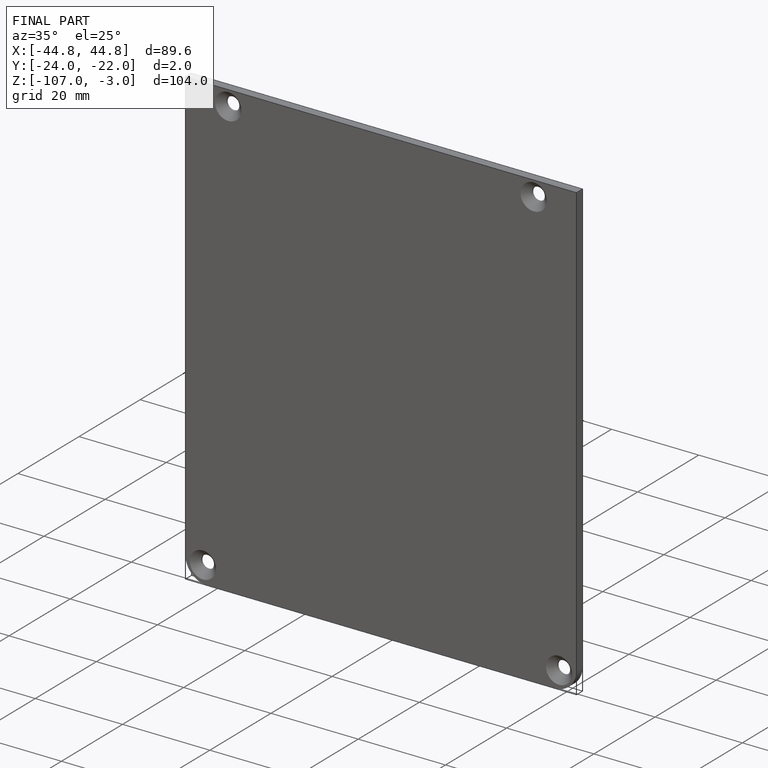
[diagram: finished part — iso view with bounding-box wireframe]
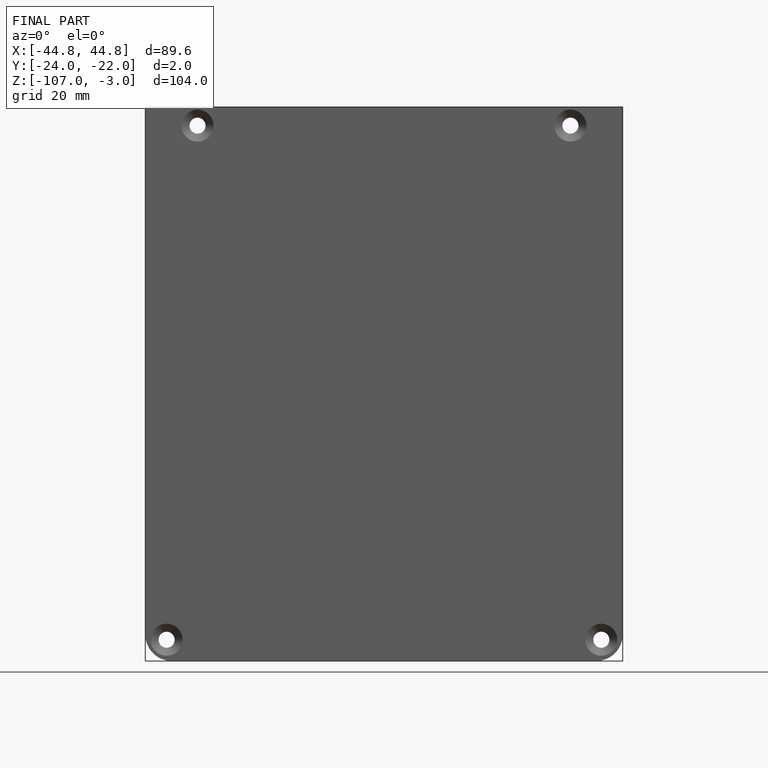
[diagram: finished part — front view with bounding-box wireframe]
